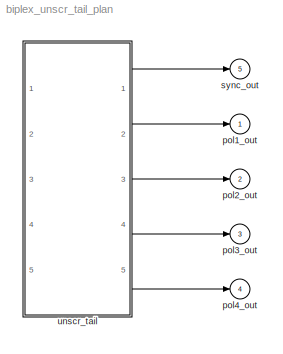
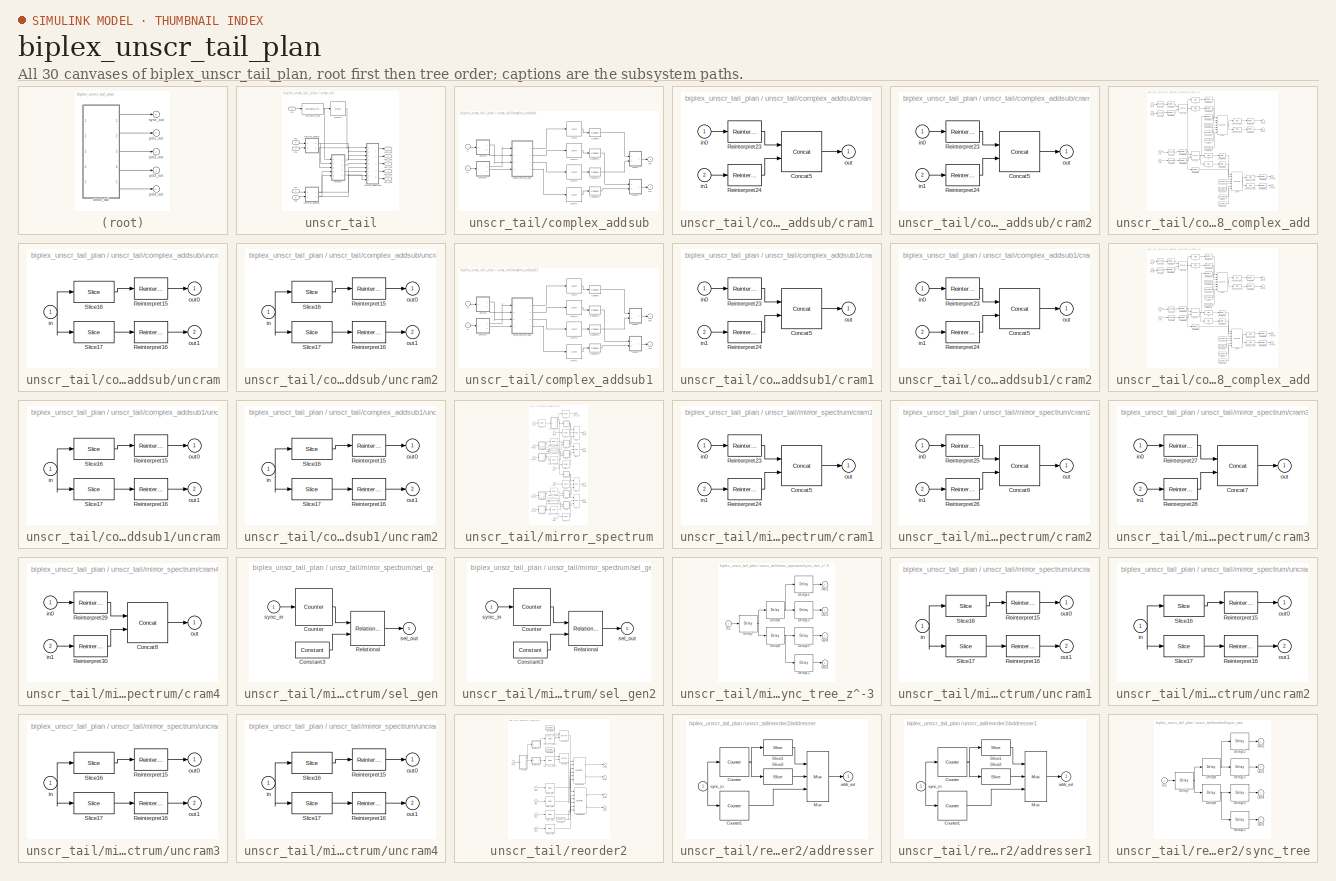
[diagram: thumbnail index - all 30 canvases of the model, root first then tree order]
MODEL biplex_unscr_tail_plan
KIND model
BLOCK [Outport] pol1_out
  IconDisplay = Port number
  SID = 336
BLOCK [Outport] pol2_out
  IconDisplay = Port number
  Port = 2
  SID = 337
BLOCK [Outport] pol3_out
  IconDisplay = Port number
  Port = 3
  SID = 338
BLOCK [Outport] pol4_out
  IconDisplay = Port number
  Port = 4
  SID = 339
BLOCK [Outport] sync_out
  IconDisplay = Port number
  Port = 5
  SID = 340
BLOCK [SubSystem] unscr_tail
  FunctionWithSeparateData = off
  MaskCallbackString = |||
  MaskEnableString = on,on,on,on
  MaskHideContents = off
  MaskIconFrame = on
  MaskIconOpaque = on
  MaskIconRotate = none
  MaskIconUnits = autoscale
  MaskPortRotate = default
  MaskPromptString = FFT Size|Input Bit Width|BRAM Latency|Reorder DIN Latency
  MaskStyleString = edit,edit,edit,edit
  MaskToolTipString = on,on,on,on
  MaskTunableValueString = on,on,on,on
  MaskValueString = 5|18|3|1
  MaskVariables = FFTSize=@1;input_bit_width=@2;bram_latency=@3;reorder_din_latency=@4;
  MaskVisibilityString = on,on,on,on
  MinAlgLoopOccurrences = off
  Opaque = off
  Ports = [5, 5]
  PropExecContextOutsideSubsystem = off
  RTWSystemCode = Auto
  RequestExecContextInheritance = off
  SID = 341
BLOCK [Reference] unscr_tail/Delay1  REF=xbsIndex_r4/Delay
  Ports = [1, 1]
  SID = 1
  SourceBlock = xbsIndex_r4/Delay
  SourceType = Xilinx Delay Block
  block_type = delay
  dbl_ovrd = off
  en = off
  has_advanced_control = 0
  infoedit = Hardware notes: A delay line is a chain, each link of which is an SRL16 followed by a flip-flop.
  latency = bram_latency + reorder_din_latency
  reg_retiming = off
  sg_icon_stat = 60,56,1,1,white,blue,0,d390c2d8,right,,[ ],[ ]
  sg_mask_display = fprintf('','COMMENT: begin icon graphics');\npatch([0 60 60 0 0 ],[0 0 56 56 0 ],[0.77 0.82 0.91 ]);\nplot([0 60 60 0 0 ],[0 0 56 56 0 ]);\npatch([12.2 23.76 31.76 39.76 47.76 31.76 20.2 12.2 ],[36.88 36.88 44.88 36.88 44.88 44.88 44.88 36.88 ],[1 1 1 ]);\npatch([20.2 31.76 23.76 12.2 20.2 ],[28.88 28.88 36.88 36.88 28.88 ],[0.931 0.946 0.973 ]);\npatch([12.2 23.76 31.76 20.2 12.2 ],[20.88 20.88 2...<+320ch>  <repeated x31 — deduplicated; at blocks: Delay1, Delay2, Delay3, Delay4, Delay5, Delay6, delay_uncram_0, delay_uncram_1, delay_uncram_2, delay_uncram_3, Delay10, Delay11, Delay12, Delay13, Delay7, Delay8, +7 more>
  sggui_pos = -1,-1,-1,-1
  xl_area = [0,0,0,0,0,0,0]
  xl_use_area = off
BLOCK [Inport] unscr_tail/In1
  IconDisplay = Port number
  SID = 342
BLOCK [Inport] unscr_tail/In2
  IconDisplay = Port number
  Port = 2
  SID = 343
BLOCK [Inport] unscr_tail/In3
  IconDisplay = Port number
  Port = 3
  SID = 344
BLOCK [Inport] unscr_tail/In4
  IconDisplay = Port number
  Port = 4
  SID = 351
BLOCK [Inport] unscr_tail/In5
  IconDisplay = Port number
  Port = 5
  SID = 352
BLOCK [SubSystem] unscr_tail/complex_addsub
  FunctionWithSeparateData = off
  MaskHideContents = off
  MinAlgLoopOccurrences = off
  Opaque = off
  Ports = [2, 2]
  PropExecContextOutsideSubsystem = off
  RTWSystemCode = Auto
  RequestExecContextInheritance = off
  SID = 2
BLOCK [Reference] unscr_tail/complex_addsub/Convert  REF=xbsIndex_r4/Convert
  Ports = [1, 1]
  SID = 5
  SourceBlock = xbsIndex_r4/Convert
  SourceType = Xilinx Type Converter Block
  arith_type = Signed  (2's comp)
  bin_pt = input_bit_width-1
  block_type = convert
  dbl_ovrd = off
  en = off
  has_advanced_control = 0
  infoedit = Hardware notes: rounding and saturating require hardware resources; truncating and wrapping do not.
  latency = 0
  n_bits = input_bit_width
  overflow = Wrap
  pipeline = off
  quantization = Truncate
  sg_icon_stat = 45,32,1,1,white,blue,0,edca21da,right,,[ ],[ ]
  sg_mask_display = fprintf('','COMMENT: begin icon graphics');\npatch([0 45 45 0 0 ],[0 0 32 32 0 ],[0.77 0.82 0.91 ]);\nplot([0 45 45 0 0 ],[0 0 32 32 0 ]);\npatch([13.1 18.88 22.88 26.88 30.88 22.88 17.1 13.1 ],[20.44 20.44 24.44 20.44 24.44 24.44 24.44 20.44 ],[1 1 1 ]);\npatch([17.1 22.88 18.88 13.1 17.1 ],[16.44 16.44 20.44 20.44 16.44 ],[0.931 0.946 0.973 ]);\npatch([13.1 18.88 22.88 17.1 13.1 ],[12.44 12.44 1...<+314ch>  <repeated x14 — deduplicated; at blocks: Convert, Convert1, Convert2, Convert3>
  sggui_pos = -1,-1,-1,-1
  xl_area = [0,0,0,0,0,0,0]
  xl_use_area = off
BLOCK [Reference] unscr_tail/complex_addsub/Convert1  REF=xbsIndex_r4/Convert
  Ports = [1, 1]
  SID = 408
  SourceBlock = xbsIndex_r4/Convert
  SourceType = Xilinx Type Converter Block
  arith_type = Signed  (2's comp)
  bin_pt = input_bit_width-1
  block_type = convert
  dbl_ovrd = off
  en = off
  has_advanced_control = 0
  infoedit = Hardware notes: rounding and saturating require hardware resources; truncating and wrapping do not.
  latency = 0
  n_bits = input_bit_width
  overflow = Wrap
  pipeline = off
  quantization = Truncate
  sg_icon_stat = 45,32,1,1,white,blue,0,edca21da,right,,[ ],[ ]
  sggui_pos = -1,-1,-1,-1
  xl_area = [0,0,0,0,0,0,0]
  xl_use_area = off
BLOCK [Reference] unscr_tail/complex_addsub/Convert2  REF=xbsIndex_r4/Convert
  Ports = [1, 1]
  SID = 409
  SourceBlock = xbsIndex_r4/Convert
  SourceType = Xilinx Type Converter Block
  arith_type = Signed  (2's comp)
  bin_pt = input_bit_width-1
  block_type = convert
  dbl_ovrd = off
  en = off
  has_advanced_control = 0
  infoedit = Hardware notes: rounding and saturating require hardware resources; truncating and wrapping do not.
  latency = 0
  n_bits = input_bit_width
  overflow = Wrap
  pipeline = off
  quantization = Truncate
  sg_icon_stat = 45,32,1,1,white,blue,0,edca21da,right,,[ ],[ ]
  sggui_pos = -1,-1,-1,-1
  xl_area = [0,0,0,0,0,0,0]
  xl_use_area = off
BLOCK [Reference] unscr_tail/complex_addsub/Convert3  REF=xbsIndex_r4/Convert
  Ports = [1, 1]
  SID = 410
  SourceBlock = xbsIndex_r4/Convert
  SourceType = Xilinx Type Converter Block
  arith_type = Signed  (2's comp)
  bin_pt = input_bit_width-1
  block_type = convert
  dbl_ovrd = off
  en = off
  has_advanced_control = 0
  infoedit = Hardware notes: rounding and saturating require hardware resources; truncating and wrapping do not.
  latency = 0
  n_bits = input_bit_width
  overflow = Wrap
  pipeline = off
  quantization = Truncate
  sg_icon_stat = 45,32,1,1,white,blue,0,edca21da,right,,[ ],[ ]
  sggui_pos = -1,-1,-1,-1
  xl_area = [0,0,0,0,0,0,0]
  xl_use_area = off
BLOCK [Reference] unscr_tail/complex_addsub/Shift  REF=xbsIndex_r4/Shift
  Ports = [1, 1]
  SID = 9
  SourceBlock = xbsIndex_r4/Shift
  SourceType = Xilinx Binary Shift Operator Block
  arith_type = Signed  (2's comp)
  bin_pt = 2
  block_type = shift
  dbl_ovrd = off
  en = off
  has_advanced_control = 0
  infoedit = Hardware notes: In hardware this block costs nothing if full output precision is used.
  latency = 0
  n_bits = 8
  overflow = Wrap
  precision = Full
  quantization = Truncate
  sg_icon_stat = 60,56,1,1,white,blue,0,77cd8d92,right,,[ ],[ ]
  sg_mask_display = fprintf('','COMMENT: begin icon graphics');\npatch([0 60 60 0 0 ],[0 0 56 56 0 ],[0.77 0.82 0.91 ]);\nplot([0 60 60 0 0 ],[0 0 56 56 0 ]);\npatch([12.2 23.76 31.76 39.76 47.76 31.76 20.2 12.2 ],[36.88 36.88 44.88 36.88 44.88 44.88 44.88 36.88 ],[1 1 1 ]);\npatch([20.2 31.76 23.76 12.2 20.2 ],[28.88 28.88 36.88 36.88 28.88 ],[0.931 0.946 0.973 ]);\npatch([12.2 23.76 31.76 20.2 12.2 ],[20.88 20.88 2...<+326ch>  <repeated x8 — deduplicated; at blocks: Shift, Shift1, Shift2, Shift3>
  sggui_pos = -1,-1,-1,-1
  shift_bits = 1
  shift_dir = Right
  xl_area = [0,0,0,0,0,0,0]
  xl_use_area = off
BLOCK [Reference] unscr_tail/complex_addsub/Shift1  REF=xbsIndex_r4/Shift
  Ports = [1, 1]
  SID = 10
  SourceBlock = xbsIndex_r4/Shift
  SourceType = Xilinx Binary Shift Operator Block
  arith_type = Signed  (2's comp)
  bin_pt = 2
  block_type = shift
  dbl_ovrd = off
  en = off
  has_advanced_control = 0
  infoedit = Hardware notes: In hardware this block costs nothing if full output precision is used.
  latency = 0
  n_bits = 8
  overflow = Wrap
  precision = Full
  quantization = Truncate
  sg_icon_stat = 60,56,1,1,white,blue,0,77cd8d92,right,,[ ],[ ]
  sggui_pos = -1,-1,-1,-1
  shift_bits = 1
  shift_dir = Right
  xl_area = [0,0,0,0,0,0,0]
  xl_use_area = off
BLOCK [Reference] unscr_tail/complex_addsub/Shift2  REF=xbsIndex_r4/Shift
  Ports = [1, 1]
  SID = 11
  SourceBlock = xbsIndex_r4/Shift
  SourceType = Xilinx Binary Shift Operator Block
  arith_type = Signed  (2's comp)
  bin_pt = 2
  block_type = shift
  dbl_ovrd = off
  en = off
  has_advanced_control = 0
  infoedit = Hardware notes: In hardware this block costs nothing if full output precision is used.
  latency = 0
  n_bits = 8
  overflow = Wrap
  precision = Full
  quantization = Truncate
  sg_icon_stat = 60,56,1,1,white,blue,0,77cd8d92,right,,[ ],[ ]
  sggui_pos = -1,-1,-1,-1
  shift_bits = 1
  shift_dir = Right
  xl_area = [0,0,0,0,0,0,0]
  xl_use_area = off
BLOCK [Reference] unscr_tail/complex_addsub/Shift3  REF=xbsIndex_r4/Shift
  Ports = [1, 1]
  SID = 12
  SourceBlock = xbsIndex_r4/Shift
  SourceType = Xilinx Binary Shift Operator Block
  arith_type = Signed  (2's comp)
  bin_pt = 2
  block_type = shift
  dbl_ovrd = off
  en = off
  has_advanced_control = 0
  infoedit = Hardware notes: In hardware this block costs nothing if full output precision is used.
  latency = 0
  n_bits = 8
  overflow = Wrap
  precision = Full
  quantization = Truncate
  sg_icon_stat = 60,56,1,1,white,blue,0,77cd8d92,right,,[ ],[ ]
  sggui_pos = -1,-1,-1,-1
  shift_bits = 1
  shift_dir = Right
  xl_area = [0,0,0,0,0,0,0]
  xl_use_area = off
BLOCK [Inport] unscr_tail/complex_addsub/a
  IconDisplay = Port number
  SID = 3
BLOCK [Outport] unscr_tail/complex_addsub/a+b
  IconDisplay = Port number
  SID = 78
BLOCK [Outport] unscr_tail/complex_addsub/a-b
  IconDisplay = Port number
  Port = 2
  SID = 79
BLOCK [Inport] unscr_tail/complex_addsub/b
  IconDisplay = Port number
  Port = 2
  SID = 4
BLOCK [SubSystem] unscr_tail/complex_addsub/cram1
  FunctionWithSeparateData = off
  MaskHideContents = off
  MinAlgLoopOccurrences = off
  Opaque = off
  Ports = [2, 1]
  PropExecContextOutsideSubsystem = off
  RTWSystemCode = Auto
  RequestExecContextInheritance = off
  SID = 394
BLOCK [Reference] unscr_tail/complex_addsub/cram1/Concat5  REF=xbsIndex_r4/Concat
  Ports = [2, 1]
  SID = 397
  SourceBlock = xbsIndex_r4/Concat
  SourceType = Xilinx Bus Concatenator Block
  block_type = concat
  dbl_ovrd = off
  has_advanced_control = 0
  infoedit = Concatenates two or more inputs.  Output will be cast to an unsigned value with the binary point at zero.
  num_inputs = 2
  sg_icon_stat = 60,60,2,1,white,blue,0,16398980,right,,[ ],[ ]
  sg_mask_display = fprintf('','COMMENT: begin icon graphics');\npatch([0 60 60 0 0 ],[0 0 60 60 0 ],[0.77 0.82 0.91 ]);\nplot([0 60 60 0 0 ],[0 0 60 60 0 ]);\npatch([12.2 23.76 31.76 39.76 47.76 31.76 20.2 12.2 ],[38.88 38.88 46.88 38.88 46.88 46.88 46.88 38.88 ],[1 1 1 ]);\npatch([20.2 31.76 23.76 12.2 20.2 ],[30.88 30.88 38.88 38.88 30.88 ],[0.931 0.946 0.973 ]);\npatch([12.2 23.76 31.76 20.2 12.2 ],[22.88 22.88 3...<+417ch>  <repeated x14 — deduplicated; at blocks: Concat5, Concat, Concat1, Concat6, Concat7, Concat8, Concat2, Concat3>
  sggui_pos = -1,-1,-1,-1
BLOCK [Reference] unscr_tail/complex_addsub/cram1/Reinterpret23  REF=xbsIndex_r4/Reinterpret
  Ports = [1, 1]
  SID = 398
  SourceBlock = xbsIndex_r4/Reinterpret
  SourceType = Xilinx Type Reinterpreter Block
  arith_type = Unsigned
  bin_pt = 0
  block_type = reinterpret
  force_arith_type = on
  force_bin_pt = on
  has_advanced_control = 0
  infoedit = Changes signal type without altering the binary representation.   You can changed the signal between signed and unsigned, and relocate the binary point.<br><br>Hardware notes: In hardware this block costs nothing.<br><br>Example:  Suppose the input is 6 bits wide, signed, with 2 fractional bits, and the output is forced to unsigned with 0 fractional bits.  Then an input of -2.0 (1110.00 in binary ...<+59ch>  <repeated x60 — deduplicated; at blocks: Reinterpret23, Reinterpret24, Reinterpret1, Reinterpret10, Reinterpret12, Reinterpret15, Reinterpret16, Reinterpret2, Reinterpret25, Reinterpret3, Reinterpret4, Reinterpret5, Reinterpret6, Reinterpret7, Reinterpret8, Reinterpret26, +4 more>
  sg_icon_stat = 50,32,1,1,white,blue,0,6b04d0b0,right,,[ ],[ ]
  sg_mask_display = fprintf('','COMMENT: begin icon graphics');\npatch([0 50 50 0 0 ],[0 0 32 32 0 ],[0.77 0.82 0.91 ]);\nplot([0 50 50 0 0 ],[0 0 32 32 0 ]);\npatch([16.1 21.88 25.88 29.88 33.88 25.88 20.1 16.1 ],[20.44 20.44 24.44 20.44 24.44 24.44 24.44 20.44 ],[1 1 1 ]);\npatch([20.1 25.88 21.88 16.1 20.1 ],[16.44 16.44 20.44 20.44 16.44 ],[0.931 0.946 0.973 ]);\npatch([16.1 21.88 25.88 20.1 16.1 ],[12.44 12.44 1...<+306ch>  <repeated x56 — deduplicated; at blocks: Reinterpret23, Reinterpret24, Reinterpret1, Reinterpret10, Reinterpret12, Reinterpret15, Reinterpret16, Reinterpret2, Reinterpret3, Reinterpret4, Reinterpret5, Reinterpret6, Reinterpret7, Reinterpret8, Reinterpret25, Reinterpret26, +4 more>
  sggui_pos = -1,-1,-1,-1
BLOCK [Reference] unscr_tail/complex_addsub/cram1/Reinterpret24  REF=xbsIndex_r4/Reinterpret
  Ports = [1, 1]
  SID = 399
  SourceBlock = xbsIndex_r4/Reinterpret
  SourceType = Xilinx Type Reinterpreter Block
  arith_type = Unsigned
  bin_pt = 0
  block_type = reinterpret
  force_arith_type = on
  force_bin_pt = on
  has_advanced_control = 0
  sg_icon_stat = 50,32,1,1,white,blue,0,6b04d0b0,right,,[ ],[ ]
  sggui_pos = -1,-1,-1,-1
BLOCK [Inport] unscr_tail/complex_addsub/cram1/in0
  IconDisplay = Port number
  SID = 395
BLOCK [Inport] unscr_tail/complex_addsub/cram1/in1
  IconDisplay = Port number
  Port = 2
  SID = 396
BLOCK [Outport] unscr_tail/complex_addsub/cram1/out
  IconDisplay = Port number
  SID = 400
BLOCK [SubSystem] unscr_tail/complex_addsub/cram2
  FunctionWithSeparateData = off
  MaskHideContents = off
  MinAlgLoopOccurrences = off
  Opaque = off
  Ports = [2, 1]
  PropExecContextOutsideSubsystem = off
  RTWSystemCode = Auto
  RequestExecContextInheritance = off
  SID = 401
BLOCK [Reference] unscr_tail/complex_addsub/cram2/Concat5  REF=xbsIndex_r4/Concat
  Ports = [2, 1]
  SID = 404
  SourceBlock = xbsIndex_r4/Concat
  SourceType = Xilinx Bus Concatenator Block
  block_type = concat
  dbl_ovrd = off
  has_advanced_control = 0
  infoedit = Concatenates two or more inputs.  Output will be cast to an unsigned value with the binary point at zero.
  num_inputs = 2
  sg_icon_stat = 60,60,2,1,white,blue,0,16398980,right,,[ ],[ ]
  sggui_pos = -1,-1,-1,-1
BLOCK [Reference] unscr_tail/complex_addsub/cram2/Reinterpret23  REF=xbsIndex_r4/Reinterpret
  Ports = [1, 1]
  SID = 405
  SourceBlock = xbsIndex_r4/Reinterpret
  SourceType = Xilinx Type Reinterpreter Block
  arith_type = Unsigned
  bin_pt = 0
  block_type = reinterpret
  force_arith_type = on
  force_bin_pt = on
  has_advanced_control = 0
  sg_icon_stat = 50,32,1,1,white,blue,0,6b04d0b0,right,,[ ],[ ]
  sggui_pos = -1,-1,-1,-1
BLOCK [Reference] unscr_tail/complex_addsub/cram2/Reinterpret24  REF=xbsIndex_r4/Reinterpret
  Ports = [1, 1]
  SID = 406
  SourceBlock = xbsIndex_r4/Reinterpret
  SourceType = Xilinx Type Reinterpreter Block
  arith_type = Unsigned
  bin_pt = 0
  block_type = reinterpret
  force_arith_type = on
  force_bin_pt = on
  has_advanced_control = 0
  sg_icon_stat = 50,32,1,1,white,blue,0,6b04d0b0,right,,[ ],[ ]
  sggui_pos = -1,-1,-1,-1
BLOCK [Inport] unscr_tail/complex_addsub/cram2/in0
  IconDisplay = Port number
  SID = 402
BLOCK [Inport] unscr_tail/complex_addsub/cram2/in1
  IconDisplay = Port number
  Port = 2
  SID = 403
BLOCK [Outport] unscr_tail/complex_addsub/cram2/out
  IconDisplay = Port number
  SID = 407
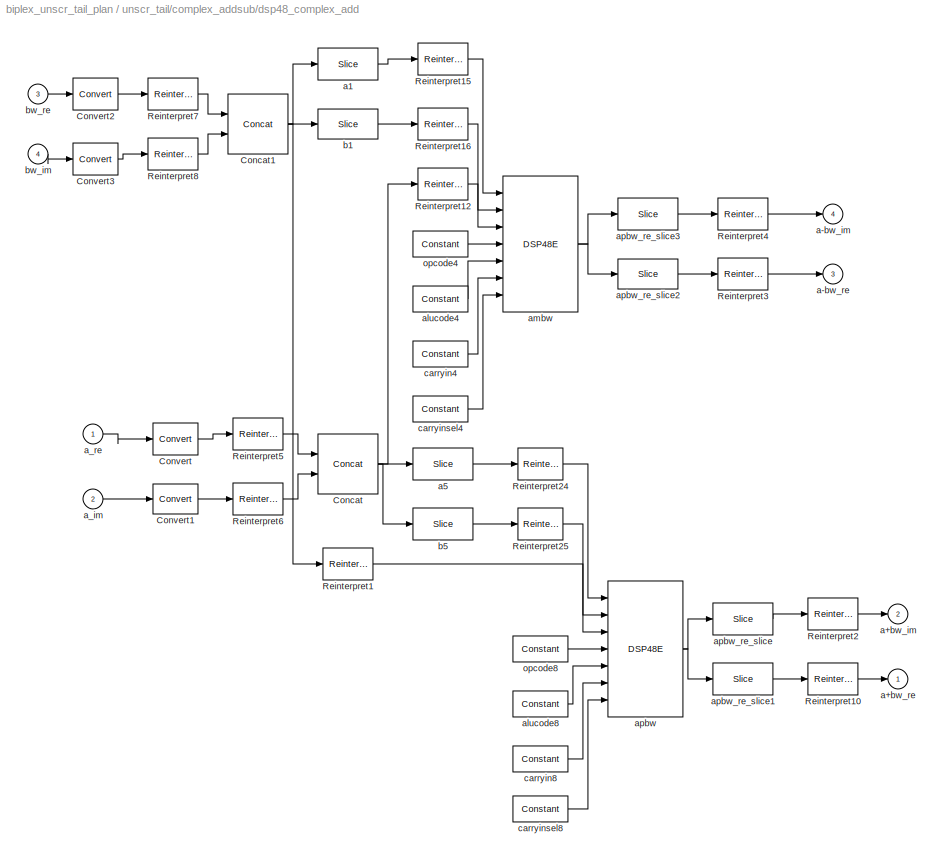
BLOCK [SubSystem] unscr_tail/complex_addsub/dsp48_complex_add
  FunctionWithSeparateData = off
  MaskHideContents = off
  MinAlgLoopOccurrences = off
  Opaque = off
  Ports = [4, 4]
  PropExecContextOutsideSubsystem = off
  RTWSystemCode = Auto
  RequestExecContextInheritance = off
  SID = 13
BLOCK [Reference] unscr_tail/complex_addsub/dsp48_complex_add/Concat  REF=xbsIndex_r4/Concat
  Ports = [2, 1]
  SID = 18
  SourceBlock = xbsIndex_r4/Concat
  SourceType = Xilinx Bus Concatenator Block
  block_type = concat
  dbl_ovrd = off
  has_advanced_control = 0
  infoedit = Concatenates two or more inputs.  Output will be cast to an unsigned value with the binary point at zero.
  num_inputs = 2
  sg_icon_stat = 60,60,2,1,white,blue,0,16398980,right,,[ ],[ ]
  sggui_pos = -1,-1,-1,-1
BLOCK [Reference] unscr_tail/complex_addsub/dsp48_complex_add/Concat1  REF=xbsIndex_r4/Concat
  Ports = [2, 1]
  SID = 19
  SourceBlock = xbsIndex_r4/Concat
  SourceType = Xilinx Bus Concatenator Block
  block_type = concat
  dbl_ovrd = off
  has_advanced_control = 0
  infoedit = Concatenates two or more inputs.  Output will be cast to an unsigned value with the binary point at zero.
  num_inputs = 2
  sg_icon_stat = 60,60,2,1,white,blue,0,16398980,right,,[ ],[ ]
  sggui_pos = -1,-1,-1,-1
BLOCK [Reference] unscr_tail/complex_addsub/dsp48_complex_add/Convert  REF=xbsIndex_r4/Convert
  Ports = [1, 1]
  SID = 20
  SourceBlock = xbsIndex_r4/Convert
  SourceType = Xilinx Type Converter Block
  arith_type = Signed  (2's comp)
  bin_pt = 22
  block_type = convert
  dbl_ovrd = off
  en = off
  has_advanced_control = 0
  infoedit = Hardware notes: rounding and saturating require hardware resources; truncating and wrapping do not.
  latency = 0
  n_bits = 24
  overflow = Wrap
  pipeline = off
  quantization = Truncate
  sg_icon_stat = 45,32,1,1,white,blue,0,edca21da,right,,[ ],[ ]
  sggui_pos = -1,-1,-1,-1
  xl_area = [0,0,0,0,0,0,0]
  xl_use_area = off
BLOCK [Reference] unscr_tail/complex_addsub/dsp48_complex_add/Convert1  REF=xbsIndex_r4/Convert
  Ports = [1, 1]
  SID = 21
  SourceBlock = xbsIndex_r4/Convert
  SourceType = Xilinx Type Converter Block
  arith_type = Signed  (2's comp)
  bin_pt = 22
  block_type = convert
  dbl_ovrd = off
  en = off
  has_advanced_control = 0
  infoedit = Hardware notes: rounding and saturating require hardware resources; truncating and wrapping do not.
  latency = 0
  n_bits = 24
  overflow = Wrap
  pipeline = off
  quantization = Truncate
  sg_icon_stat = 45,30,1,1,white,blue,0,edca21da,right,,[ ],[ ]
  sg_mask_display = fprintf('','COMMENT: begin icon graphics');\npatch([0 45 45 0 0 ],[0 0 30 30 0 ],[0.77 0.82 0.91 ]);\nplot([0 45 45 0 0 ],[0 0 30 30 0 ]);\npatch([13.1 18.88 22.88 26.88 30.88 22.88 17.1 13.1 ],[19.44 19.44 23.44 19.44 23.44 23.44 23.44 19.44 ],[1 1 1 ]);\npatch([17.1 22.88 18.88 13.1 17.1 ],[15.44 15.44 19.44 19.44 15.44 ],[0.931 0.946 0.973 ]);\npatch([13.1 18.88 22.88 17.1 13.1 ],[11.44 11.44 1...<+314ch>
  sggui_pos = -1,-1,-1,-1
  xl_area = [0,0,0,0,0,0,0]
  xl_use_area = off
BLOCK [Reference] unscr_tail/complex_addsub/dsp48_complex_add/Convert2  REF=xbsIndex_r4/Convert
  Ports = [1, 1]
  SID = 22
  SourceBlock = xbsIndex_r4/Convert
  SourceType = Xilinx Type Converter Block
  arith_type = Signed  (2's comp)
  bin_pt = 22
  block_type = convert
  dbl_ovrd = off
  en = off
  has_advanced_control = 0
  infoedit = Hardware notes: rounding and saturating require hardware resources; truncating and wrapping do not.
  latency = 0
  n_bits = 24
  overflow = Wrap
  pipeline = off
  quantization = Truncate
  sg_icon_stat = 45,32,1,1,white,blue,0,edca21da,right,,[ ],[ ]
  sggui_pos = -1,-1,-1,-1
  xl_area = [0,0,0,0,0,0,0]
  xl_use_area = off
BLOCK [Reference] unscr_tail/complex_addsub/dsp48_complex_add/Convert3  REF=xbsIndex_r4/Convert
  Ports = [1, 1]
  SID = 23
  SourceBlock = xbsIndex_r4/Convert
  SourceType = Xilinx Type Converter Block
  arith_type = Signed  (2's comp)
  bin_pt = 22
  block_type = convert
  dbl_ovrd = off
  en = off
  has_advanced_control = 0
  infoedit = Hardware notes: rounding and saturating require hardware resources; truncating and wrapping do not.
  latency = 0
  n_bits = 24
  overflow = Wrap
  pipeline = off
  quantization = Truncate
  sg_icon_stat = 45,32,1,1,white,blue,0,edca21da,right,,[ ],[ ]
  sggui_pos = -1,-1,-1,-1
  xl_area = [0,0,0,0,0,0,0]
  xl_use_area = off
BLOCK [Reference] unscr_tail/complex_addsub/dsp48_complex_add/Reinterpret1  REF=xbsIndex_r4/Reinterpret
  Ports = [1, 1]
  SID = 24
  SourceBlock = xbsIndex_r4/Reinterpret
  SourceType = Xilinx Type Reinterpreter Block
  arith_type = Signed  (2's comp)
  bin_pt = 0
  block_type = reinterpret
  force_arith_type = on
  force_bin_pt = off
  has_advanced_control = 0
  sg_icon_stat = 50,32,1,1,white,blue,0,6b04d0b0,right,,[ ],[ ]
  sggui_pos = -1,-1,-1,-1
BLOCK [Reference] unscr_tail/complex_addsub/dsp48_complex_add/Reinterpret10  REF=xbsIndex_r4/Reinterpret
  Ports = [1, 1]
  SID = 25
  SourceBlock = xbsIndex_r4/Reinterpret
  SourceType = Xilinx Type Reinterpreter Block
  arith_type = Signed  (2's comp)
  bin_pt = 22
  block_type = reinterpret
  force_arith_type = on
  force_bin_pt = on
  has_advanced_control = 0
  sg_icon_stat = 50,32,1,1,white,blue,0,6b04d0b0,right,,[ ],[ ]
  sggui_pos = -1,-1,-1,-1
BLOCK [Reference] unscr_tail/complex_addsub/dsp48_complex_add/Reinterpret12  REF=xbsIndex_r4/Reinterpret
  Ports = [1, 1]
  SID = 26
  SourceBlock = xbsIndex_r4/Reinterpret
  SourceType = Xilinx Type Reinterpreter Block
  arith_type = Signed  (2's comp)
  bin_pt = 0
  block_type = reinterpret
  force_arith_type = on
  force_bin_pt = off
  has_advanced_control = 0
  sg_icon_stat = 50,32,1,1,white,blue,0,6b04d0b0,right,,[ ],[ ]
  sggui_pos = -1,-1,-1,-1
BLOCK [Reference] unscr_tail/complex_addsub/dsp48_complex_add/Reinterpret15  REF=xbsIndex_r4/Reinterpret
  Ports = [1, 1]
  SID = 27
  SourceBlock = xbsIndex_r4/Reinterpret
  SourceType = Xilinx Type Reinterpreter Block
  arith_type = Signed  (2's comp)
  bin_pt = 0
  block_type = reinterpret
  force_arith_type = on
  force_bin_pt = off
  has_advanced_control = 0
  sg_icon_stat = 50,32,1,1,white,blue,0,6b04d0b0,right,,[ ],[ ]
  sggui_pos = -1,-1,-1,-1
BLOCK [Reference] unscr_tail/complex_addsub/dsp48_complex_add/Reinterpret16  REF=xbsIndex_r4/Reinterpret
  Ports = [1, 1]
  SID = 28
  SourceBlock = xbsIndex_r4/Reinterpret
  SourceType = Xilinx Type Reinterpreter Block
  arith_type = Signed  (2's comp)
  bin_pt = 0
  block_type = reinterpret
  force_arith_type = on
  force_bin_pt = off
  has_advanced_control = 0
  sg_icon_stat = 50,32,1,1,white,blue,0,6b04d0b0,right,,[ ],[ ]
  sggui_pos = -1,-1,-1,-1
BLOCK [Reference] unscr_tail/complex_addsub/dsp48_complex_add/Reinterpret2  REF=xbsIndex_r4/Reinterpret
  Ports = [1, 1]
  SID = 29
  SourceBlock = xbsIndex_r4/Reinterpret
  SourceType = Xilinx Type Reinterpreter Block
  arith_type = Signed  (2's comp)
  bin_pt = 22
  block_type = reinterpret
  force_arith_type = on
  force_bin_pt = on
  has_advanced_control = 0
  sg_icon_stat = 50,32,1,1,white,blue,0,6b04d0b0,right,,[ ],[ ]
  sggui_pos = -1,-1,-1,-1
BLOCK [Reference] unscr_tail/complex_addsub/dsp48_complex_add/Reinterpret24  REF=xbsIndex_r4/Reinterpret
  Ports = [1, 1]
  SID = 30
  SourceBlock = xbsIndex_r4/Reinterpret
  SourceType = Xilinx Type Reinterpreter Block
  arith_type = Signed  (2's comp)
  bin_pt = 0
  block_type = reinterpret
  force_arith_type = on
  force_bin_pt = off
  has_advanced_control = 0
  sg_icon_stat = 45,32,1,1,white,blue,0,6b04d0b0,right,,[ ],[ ]
  sg_mask_display = fprintf('','COMMENT: begin icon graphics');\npatch([0 45 45 0 0 ],[0 0 32 32 0 ],[0.77 0.82 0.91 ]);\nplot([0 45 45 0 0 ],[0 0 32 32 0 ]);\npatch([13.1 18.88 22.88 26.88 30.88 22.88 17.1 13.1 ],[20.44 20.44 24.44 20.44 24.44 24.44 24.44 20.44 ],[1 1 1 ]);\npatch([17.1 22.88 18.88 13.1 17.1 ],[16.44 16.44 20.44 20.44 16.44 ],[0.931 0.946 0.973 ]);\npatch([13.1 18.88 22.88 17.1 13.1 ],[12.44 12.44 1...<+306ch>  <repeated x4 — deduplicated; at blocks: Reinterpret24, Reinterpret25>
  sggui_pos = -1,-1,-1,-1
BLOCK [Reference] unscr_tail/complex_addsub/dsp48_complex_add/Reinterpret25  REF=xbsIndex_r4/Reinterpret
  Ports = [1, 1]
  SID = 31
  SourceBlock = xbsIndex_r4/Reinterpret
  SourceType = Xilinx Type Reinterpreter Block
  arith_type = Signed  (2's comp)
  bin_pt = 0
  block_type = reinterpret
  force_arith_type = on
  force_bin_pt = off
  has_advanced_control = 0
  sg_icon_stat = 45,32,1,1,white,blue,0,6b04d0b0,right,,[ ],[ ]
  sggui_pos = -1,-1,-1,-1
BLOCK [Reference] unscr_tail/complex_addsub/dsp48_complex_add/Reinterpret3  REF=xbsIndex_r4/Reinterpret
  Ports = [1, 1]
  SID = 32
  SourceBlock = xbsIndex_r4/Reinterpret
  SourceType = Xilinx Type Reinterpreter Block
  arith_type = Signed  (2's comp)
  bin_pt = 22
  block_type = reinterpret
  force_arith_type = on
  force_bin_pt = on
  has_advanced_control = 0
  sg_icon_stat = 50,32,1,1,white,blue,0,6b04d0b0,right,,[ ],[ ]
  sggui_pos = -1,-1,-1,-1
BLOCK [Reference] unscr_tail/complex_addsub/dsp48_complex_add/Reinterpret4  REF=xbsIndex_r4/Reinterpret
  Ports = [1, 1]
  SID = 33
  SourceBlock = xbsIndex_r4/Reinterpret
  SourceType = Xilinx Type Reinterpreter Block
  arith_type = Signed  (2's comp)
  bin_pt = 22
  block_type = reinterpret
  force_arith_type = on
  force_bin_pt = on
  has_advanced_control = 0
  sg_icon_stat = 50,32,1,1,white,blue,0,6b04d0b0,right,,[ ],[ ]
  sggui_pos = -1,-1,-1,-1
BLOCK [Reference] unscr_tail/complex_addsub/dsp48_complex_add/Reinterpret5  REF=xbsIndex_r4/Reinterpret
  Ports = [1, 1]
  SID = 34
  SourceBlock = xbsIndex_r4/Reinterpret
  SourceType = Xilinx Type Reinterpreter Block
  arith_type = Unsigned
  bin_pt = 0
  block_type = reinterpret
  force_arith_type = on
  force_bin_pt = on
  has_advanced_control = 0
  sg_icon_stat = 50,32,1,1,white,blue,0,6b04d0b0,right,,[ ],[ ]
  sggui_pos = -1,-1,-1,-1
BLOCK [Reference] unscr_tail/complex_addsub/dsp48_complex_add/Reinterpret6  REF=xbsIndex_r4/Reinterpret
  Ports = [1, 1]
  SID = 35
  SourceBlock = xbsIndex_r4/Reinterpret
  SourceType = Xilinx Type Reinterpreter Block
  arith_type = Unsigned
  bin_pt = 0
  block_type = reinterpret
  force_arith_type = on
  force_bin_pt = on
  has_advanced_control = 0
  sg_icon_stat = 50,32,1,1,white,blue,0,6b04d0b0,right,,[ ],[ ]
  sggui_pos = -1,-1,-1,-1
BLOCK [Reference] unscr_tail/complex_addsub/dsp48_complex_add/Reinterpret7  REF=xbsIndex_r4/Reinterpret
  Ports = [1, 1]
  SID = 36
  SourceBlock = xbsIndex_r4/Reinterpret
  SourceType = Xilinx Type Reinterpreter Block
  arith_type = Unsigned
  bin_pt = 0
  block_type = reinterpret
  force_arith_type = on
  force_bin_pt = on
  has_advanced_control = 0
  sg_icon_stat = 50,32,1,1,white,blue,0,6b04d0b0,right,,[ ],[ ]
  sggui_pos = -1,-1,-1,-1
BLOCK [Reference] unscr_tail/complex_addsub/dsp48_complex_add/Reinterpret8  REF=xbsIndex_r4/Reinterpret
  Ports = [1, 1]
  SID = 37
  SourceBlock = xbsIndex_r4/Reinterpret
  SourceType = Xilinx Type Reinterpreter Block
  arith_type = Unsigned
  bin_pt = 0
  block_type = reinterpret
  force_arith_type = on
  force_bin_pt = on
  has_advanced_control = 0
  sg_icon_stat = 50,32,1,1,white,blue,0,6b04d0b0,right,,[ ],[ ]
  sggui_pos = -1,-1,-1,-1
BLOCK [Outport] unscr_tail/complex_addsub/dsp48_complex_add/a+bw_im
  IconDisplay = Port number
  Port = 2
  SID = 57
BLOCK [Outport] unscr_tail/complex_addsub/dsp48_complex_add/a+bw_re
  IconDisplay = Port number
  SID = 56
BLOCK [Outport] unscr_tail/complex_addsub/dsp48_complex_add/a-bw_im
  IconDisplay = Port number
  Port = 4
  SID = 59
BLOCK [Outport] unscr_tail/complex_addsub/dsp48_complex_add/a-bw_re
  IconDisplay = Port number
  Port = 3
  SID = 58
BLOCK [Reference] unscr_tail/complex_addsub/dsp48_complex_add/a1  REF=xbsIndex_r4/Slice
  Ports = [1, 1]
  SID = 38
  SourceBlock = xbsIndex_r4/Slice
  SourceType = Xilinx Bit Slice Extractor Block
  base0 = LSB of Input
  base1 = MSB of Input
  bit0 = 18
  bit1 = 0
  block_type = slice
  boolean_output = off
  dbl_ovrd = off
  has_advanced_control = 0
  infoedit = Extracts a given range of bits from each input sample and presents it at the output.  The output type is ordinarily unsigned with binary point at zero, but can be Boolean when the slice is one bit wide.<br><br>Hardware notes: In hardware this block costs nothing.  <repeated x36 — deduplicated; at blocks: a1, a5, apbw_re_slice, apbw_re_slice1, apbw_re_slice2, apbw_re_slice3, b1, b5, Slice16, Slice17, Slice1, Slice2>
  mode = Upper Bit Location + Width
  nbits = 30
  sg_icon_stat = 60,32,1,1,white,blue,0,1fd851a7,right,,[ ],[ ]
  sg_mask_display = fprintf('','COMMENT: begin icon graphics');\npatch([0 60 60 0 0 ],[0 0 32 32 0 ],[0.77 0.82 0.91 ]);\nplot([0 60 60 0 0 ],[0 0 32 32 0 ]);\npatch([21.1 26.88 30.88 34.88 38.88 30.88 25.1 21.1 ],[20.44 20.44 24.44 20.44 24.44 24.44 24.44 20.44 ],[1 1 1 ]);\npatch([25.1 30.88 26.88 21.1 25.1 ],[16.44 16.44 20.44 20.44 16.44 ],[0.931 0.946 0.973 ]);\npatch([21.1 26.88 30.88 25.1 21.1 ],[12.44 12.44 1...<+315ch>  <repeated x32 — deduplicated; at blocks: a1, a5, apbw_re_slice, apbw_re_slice1, apbw_re_slice3, b5, Slice16, Slice17, Slice1, Slice2>
  sggui_pos = -1,-1,-1,-1
BLOCK [Reference] unscr_tail/complex_addsub/dsp48_complex_add/a5  REF=xbsIndex_r4/Slice
  Ports = [1, 1]
  SID = 39
  SourceBlock = xbsIndex_r4/Slice
  SourceType = Xilinx Bit Slice Extractor Block
  base0 = LSB of Input
  base1 = MSB of Input
  bit0 = 18
  bit1 = 0
  block_type = slice
  boolean_output = off
  dbl_ovrd = off
  has_advanced_control = 0
  mode = Upper Bit Location + Width
  nbits = 30
  sg_icon_stat = 60,32,1,1,white,blue,0,1fd851a7,right,,[ ],[ ]
  sggui_pos = -1,-1,-1,-1
BLOCK [Inport] unscr_tail/complex_addsub/dsp48_complex_add/a_im
  IconDisplay = Port number
  Port = 2
  SID = 15
BLOCK [Inport] unscr_tail/complex_addsub/dsp48_complex_add/a_re
  IconDisplay = Port number
  SID = 14
BLOCK [Reference] unscr_tail/complex_addsub/dsp48_complex_add/alucode4  REF=xbsIndex_r4/Constant
  Ports = [0, 1]
  SID = 40
  SourceBlock = xbsIndex_r4/Constant
  SourceType = Xilinx Constant Block Block
  arith_type = Unsigned
  bin_pt = 0
  block_type = constant
  carry = CIN
  const = 3
  dbl_ovrd = off
  dsp48_infoedit = The use of this block for DSP48 instructions is deprecated.  Please use the Opmode block.
  equ = P=C
  explicit_period = on
  has_advanced_control = 0
  inp1 = P
  inp2 = PCIN>>17
  n_bits = 4
  opr = +
  opselect = C
  period = 1
  sg_icon_stat = 55,26,0,1,white,blue,0,279a71c8,right,,[ ],[ ]
  sg_mask_display = fprintf('','COMMENT: begin icon graphics');\npatch([0 55 55 0 0 ],[0 0 26 26 0 ],[0.77 0.82 0.91 ]);\nplot([0 55 55 0 0 ],[0 0 26 26 0 ]);\npatch([20.325 24.66 27.66 30.66 33.66 27.66 23.325 20.325 ],[16.33 16.33 19.33 16.33 19.33 19.33 19.33 16.33 ],[1 1 1 ]);\npatch([23.325 27.66 24.66 20.325 23.325 ],[13.33 13.33 16.33 16.33 13.33 ],[0.931 0.946 0.973 ]);\npatch([20.325 24.66 27.66 23.325 20.32...<+333ch>  <repeated x15 — deduplicated; at blocks: alucode4, alucode8, carryin4, carryin8, carryinsel4, carryinsel8, Constant1, Constant5, Constant7>
  sggui_pos = -1,-1,-1,-1
BLOCK [Reference] unscr_tail/complex_addsub/dsp48_complex_add/alucode8  REF=xbsIndex_r4/Constant
  Ports = [0, 1]
  SID = 41
  SourceBlock = xbsIndex_r4/Constant
  SourceType = Xilinx Constant Block Block
  arith_type = Unsigned
  bin_pt = 0
  block_type = constant
  carry = CIN
  const = 0
  dbl_ovrd = off
  dsp48_infoedit = The use of this block for DSP48 instructions is deprecated.  Please use the Opmode block.
  equ = P=C
  explicit_period = on
  has_advanced_control = 0
  inp1 = P
  inp2 = PCIN>>17
  n_bits = 4
  opr = +
  opselect = C
  period = 1
  sg_icon_stat = 55,26,0,1,white,blue,0,bf4ddd8b,right,,[ ],[ ]
  sggui_pos = -1,-1,-1,-1
BLOCK [Reference] unscr_tail/complex_addsub/dsp48_complex_add/ambw  REF=xbsIndex_r4/DSP48E
  Ports = [7, 1]
  SID = 42
  SourceBlock = xbsIndex_r4/DSP48E
  SourceType = Xilinx DSP48E Block
  addsub_mode = TWO24
  block_type = dsp48e
  en_a1 = off
  en_a2 = off
  en_all = off
  en_alumode = off
  en_b1 = off
  en_b2 = off
  en_c = off
  en_carry_in = off
  en_ctrl = off
  en_mult = off
  en_multcarryin = off
  en_p = off
  has_advanced_control = 0
  mask_from_creg = off
  pattern = '000000000000'
  pattern_from_creg = off
  pattern_mask = '3FFFFFFFFFFF'
  pipeline_a = 1
  pipeline_acout = 1
  pipeline_alumode = on
  pipeline_b = 1
  pipeline_bcout = 1
  pipeline_c = on
  pipeline_carryin = on
  pipeline_carryinsel = on
  pipeline_mult = on
  pipeline_opmode = on
  pipeline_p = on
  reset_preg = off
  rst_a = off
  rst_all = off
  rst_alumode = off
  rst_b = off
  rst_c = off
  rst_carry_in = off
  rst_ctrl = off
  rst_mult = off
  rst_p = off
  sel_rounding_mask = Select mask
  sg_icon_stat = 75,136,7,1,white,blue,0,51584ea8,right,,[ ],[ ]
  sg_mask_display = fprintf('','COMMENT: begin icon graphics');\npatch([0 75 75 0 0 ],[0 0 136 136 0 ],[0.77 0.82 0.91 ]);\nplot([0 75 75 0 0 ],[0 0 136 136 0 ]);\npatch([14.75 29.2 39.2 49.2 59.2 39.2 24.75 14.75 ],[79.1 79.1 89.1 79.1 89.1 89.1 89.1 79.1 ],[1 1 1 ]);\npatch([24.75 39.2 29.2 14.75 24.75 ],[69.1 69.1 79.1 79.1 69.1 ],[0.931 0.946 0.973 ]);\npatch([14.75 29.2 39.2 24.75 14.75 ],[59.1 59.1 69.1 69.1 59...<+618ch>  <repeated x4 — deduplicated; at blocks: ambw, apbw>
  sggui_pos = -1,-1,-1,-1
  use_a = Direct from A Port
  use_acout = off
  use_b = Direct from B Port
  use_bcout = off
  use_carrycascin = off
  use_carrycascout = off
  use_carryout = off
  use_creg = on
  use_multsignin = off
  use_multsignout = off
  use_op = off
  use_overflow = off
  use_patternbdetect = off
  use_patterndetect = off
  use_pcin = off
  use_pcout = off
  use_synth_model = off
  use_underflow = off
  xl_area = [0,0,0,0,0,0,0]
  xl_use_area = off
  xl_useadderonly = off
BLOCK [Reference] unscr_tail/complex_addsub/dsp48_complex_add/apbw  REF=xbsIndex_r4/DSP48E
  Ports = [7, 1]
  SID = 43
  SourceBlock = xbsIndex_r4/DSP48E
  SourceType = Xilinx DSP48E Block
  addsub_mode = TWO24
  block_type = dsp48e
  en_a1 = off
  en_a2 = off
  en_all = off
  en_alumode = off
  en_b1 = off
  en_b2 = off
  en_c = off
  en_carry_in = off
  en_ctrl = off
  en_mult = off
  en_multcarryin = off
  en_p = off
  has_advanced_control = 0
  mask_from_creg = off
  pattern = '000000000000'
  pattern_from_creg = off
  pattern_mask = '3FFFFFFFFFFF'
  pipeline_a = 1
  pipeline_acout = 1
  pipeline_alumode = on
  pipeline_b = 1
  pipeline_bcout = 1
  pipeline_c = on
  pipeline_carryin = on
  pipeline_carryinsel = on
  pipeline_mult = on
  pipeline_opmode = on
  pipeline_p = on
  reset_preg = off
  rst_a = off
  rst_all = off
  rst_alumode = off
  rst_b = off
  rst_c = off
  rst_carry_in = off
  rst_ctrl = off
  rst_mult = off
  rst_p = off
  sel_rounding_mask = Select mask
  sg_icon_stat = 75,136,7,1,white,blue,0,51584ea8,right,,[ ],[ ]
  sggui_pos = -1,-1,-1,-1
  use_a = Direct from A Port
  use_acout = off
  use_b = Direct from B Port
  use_bcout = off
  use_carrycascin = off
  use_carrycascout = off
  use_carryout = off
  use_creg = on
  use_multsignin = off
  use_multsignout = off
  use_op = off
  use_overflow = off
  use_patternbdetect = off
  use_patterndetect = off
  use_pcin = off
  use_pcout = off
  use_synth_model = off
  use_underflow = off
  xl_area = [0,0,0,0,0,0,0]
  xl_use_area = off
  xl_useadderonly = off
BLOCK [Reference] unscr_tail/complex_addsub/dsp48_complex_add/apbw_re_slice  REF=xbsIndex_r4/Slice
  Ports = [1, 1]
  SID = 44
  SourceBlock = xbsIndex_r4/Slice
  SourceType = Xilinx Bit Slice Extractor Block
  base0 = LSB of Input
  base1 = MSB of Input
  bit0 = 0
  bit1 = 0
  block_type = slice
  boolean_output = off
  dbl_ovrd = off
  has_advanced_control = 0
  mode = Lower Bit Location + Width
  nbits = 24
  sg_icon_stat = 60,32,1,1,white,blue,0,1fd851a7,right,,[ ],[ ]
  sggui_pos = -1,-1,-1,-1
BLOCK [Reference] unscr_tail/complex_addsub/dsp48_complex_add/apbw_re_slice1  REF=xbsIndex_r4/Slice
  Ports = [1, 1]
  SID = 45
  SourceBlock = xbsIndex_r4/Slice
  SourceType = Xilinx Bit Slice Extractor Block
  base0 = LSB of Input
  base1 = MSB of Input
  bit0 = 24
  bit1 = 0
  block_type = slice
  boolean_output = off
  dbl_ovrd = off
  has_advanced_control = 0
  mode = Upper Bit Location + Width
  nbits = 24
  sg_icon_stat = 60,32,1,1,white,blue,0,1fd851a7,right,,[ ],[ ]
  sggui_pos = -1,-1,-1,-1
BLOCK [Reference] unscr_tail/complex_addsub/dsp48_complex_add/apbw_re_slice2  REF=xbsIndex_r4/Slice
  Ports = [1, 1]
  SID = 46
  SourceBlock = xbsIndex_r4/Slice
  SourceType = Xilinx Bit Slice Extractor Block
  base0 = LSB of Input
  base1 = MSB of Input
  bit0 = 24
  bit1 = 0
  block_type = slice
  boolean_output = off
  dbl_ovrd = off
  has_advanced_control = 0
  mode = Upper Bit Location + Width
  nbits = 24
  sg_icon_stat = 60,30,1,1,white,blue,0,1fd851a7,right,,[ ],[ ]
  sg_mask_display = fprintf('','COMMENT: begin icon graphics');\npatch([0 60 60 0 0 ],[0 0 30 30 0 ],[0.77 0.82 0.91 ]);\nplot([0 60 60 0 0 ],[0 0 30 30 0 ]);\npatch([21.1 26.88 30.88 34.88 38.88 30.88 25.1 21.1 ],[19.44 19.44 23.44 19.44 23.44 23.44 23.44 19.44 ],[1 1 1 ]);\npatch([25.1 30.88 26.88 21.1 25.1 ],[15.44 15.44 19.44 19.44 15.44 ],[0.931 0.946 0.973 ]);\npatch([21.1 26.88 30.88 25.1 21.1 ],[11.44 11.44 1...<+315ch>  <repeated x4 — deduplicated; at blocks: apbw_re_slice2, b1>
  sggui_pos = -1,-1,-1,-1
BLOCK [Reference] unscr_tail/complex_addsub/dsp48_complex_add/apbw_re_slice3  REF=xbsIndex_r4/Slice
  Ports = [1, 1]
  SID = 47
  SourceBlock = xbsIndex_r4/Slice
  SourceType = Xilinx Bit Slice Extractor Block
  base0 = LSB of Input
  base1 = MSB of Input
  bit0 = 0
  bit1 = 0
  block_type = slice
  boolean_output = off
  dbl_ovrd = off
  has_advanced_control = 0
  mode = Lower Bit Location + Width
  nbits = 24
  sg_icon_stat = 60,32,1,1,white,blue,0,1fd851a7,right,,[ ],[ ]
  sggui_pos = -1,-1,-1,-1
BLOCK [Reference] unscr_tail/complex_addsub/dsp48_complex_add/b1  REF=xbsIndex_r4/Slice
  Ports = [1, 1]
  SID = 48
  SourceBlock = xbsIndex_r4/Slice
  SourceType = Xilinx Bit Slice Extractor Block
  base0 = LSB of Input
  base1 = MSB of Input
  bit0 = 0
  bit1 = 0
  block_type = slice
  boolean_output = off
  dbl_ovrd = off
  has_advanced_control = 0
  mode = Lower Bit Location + Width
  nbits = 18
  sg_icon_stat = 60,30,1,1,white,blue,0,1fd851a7,right,,[ ],[ ]
  sggui_pos = -1,-1,-1,-1
BLOCK [Reference] unscr_tail/complex_addsub/dsp48_complex_add/b5  REF=xbsIndex_r4/Slice
  Ports = [1, 1]
  SID = 49
  SourceBlock = xbsIndex_r4/Slice
  SourceType = Xilinx Bit Slice Extractor Block
  base0 = LSB of Input
  base1 = MSB of Input
  bit0 = 0
  bit1 = 0
  block_type = slice
  boolean_output = off
  dbl_ovrd = off
  has_advanced_control = 0
  mode = Lower Bit Location + Width
  nbits = 18
  sg_icon_stat = 60,32,1,1,white,blue,0,1fd851a7,right,,[ ],[ ]
  sggui_pos = -1,-1,-1,-1
BLOCK [Inport] unscr_tail/complex_addsub/dsp48_complex_add/bw_im
  IconDisplay = Port number
  Port = 4
  SID = 17
BLOCK [Inport] unscr_tail/complex_addsub/dsp48_complex_add/bw_re
  IconDisplay = Port number
  Port = 3
  SID = 16
BLOCK [Reference] unscr_tail/complex_addsub/dsp48_complex_add/carryin4  REF=xbsIndex_r4/Constant
  Ports = [0, 1]
  SID = 50
  SourceBlock = xbsIndex_r4/Constant
  SourceType = Xilinx Constant Block Block
  arith_type = Unsigned
  bin_pt = 0
  block_type = constant
  carry = CIN
  const = 0
  dbl_ovrd = off
  dsp48_infoedit = The use of this block for DSP48 instructions is deprecated.  Please use the Opmode block.
  equ = P=C
  explicit_period = on
  has_advanced_control = 0
  inp1 = P
  inp2 = PCIN>>17
  n_bits = 1
  opr = +
  opselect = C
  period = 1
  sg_icon_stat = 55,26,0,1,white,blue,0,bf4ddd8b,right,,[ ],[ ]
  sggui_pos = -1,-1,-1,-1
BLOCK [Reference] unscr_tail/complex_addsub/dsp48_complex_add/carryin8  REF=xbsIndex_r4/Constant
  Ports = [0, 1]
  SID = 51
  SourceBlock = xbsIndex_r4/Constant
  SourceType = Xilinx Constant Block Block
  arith_type = Unsigned
  bin_pt = 0
  block_type = constant
  carry = CIN
  const = 0
  dbl_ovrd = off
  dsp48_infoedit = The use of this block for DSP48 instructions is deprecated.  Please use the Opmode block.
  equ = P=C
  explicit_period = on
  has_advanced_control = 0
  inp1 = P
  inp2 = PCIN>>17
  n_bits = 1
  opr = +
  opselect = C
  period = 1
  sg_icon_stat = 55,26,0,1,white,blue,0,bf4ddd8b,right,,[ ],[ ]
  sggui_pos = -1,-1,-1,-1
BLOCK [Reference] unscr_tail/complex_addsub/dsp48_complex_add/carryinsel4  REF=xbsIndex_r4/Constant
  Ports = [0, 1]
  SID = 52
  SourceBlock = xbsIndex_r4/Constant
  SourceType = Xilinx Constant Block Block
  arith_type = Unsigned
  bin_pt = 0
  block_type = constant
  carry = CIN
  const = 0
  dbl_ovrd = off
  dsp48_infoedit = The use of this block for DSP48 instructions is deprecated.  Please use the Opmode block.
  equ = P=C
  explicit_period = on
  has_advanced_control = 0
  inp1 = P
  inp2 = PCIN>>17
  n_bits = 3
  opr = +
  opselect = C
  period = 1
  sg_icon_stat = 55,26,0,1,white,blue,0,bf4ddd8b,right,,[ ],[ ]
  sggui_pos = -1,-1,-1,-1
BLOCK [Reference] unscr_tail/complex_addsub/dsp48_complex_add/carryinsel8  REF=xbsIndex_r4/Constant
  Ports = [0, 1]
  SID = 53
  SourceBlock = xbsIndex_r4/Constant
  SourceType = Xilinx Constant Block Block
  arith_type = Unsigned
  bin_pt = 0
  block_type = constant
  carry = CIN
  const = 0
  dbl_ovrd = off
  dsp48_infoedit = The use of this block for DSP48 instructions is deprecated.  Please use the Opmode block.
  equ = P=C
  explicit_period = on
  has_advanced_control = 0
  inp1 = P
  inp2 = PCIN>>17
  n_bits = 3
  opr = +
  opselect = C
  period = 1
  sg_icon_stat = 55,26,0,1,white,blue,0,bf4ddd8b,right,,[ ],[ ]
  sggui_pos = -1,-1,-1,-1
BLOCK [Reference] unscr_tail/complex_addsub/dsp48_complex_add/opcode4  REF=xbsIndex_r4/Constant
  Ports = [0, 1]
  SID = 54
  SourceBlock = xbsIndex_r4/Constant
  SourceType = Xilinx Constant Block Block
  arith_type = Unsigned
  bin_pt = 0
  block_type = constant
  carry = CIN
  const = 51
  dbl_ovrd = off
  dsp48_infoedit = The use of this block for DSP48 instructions is deprecated.  Please use the Opmode block.
  equ = P=C
  explicit_period = on
  has_advanced_control = 0
  inp1 = P
  inp2 = PCIN>>17
  n_bits = 7
  opr = +
  opselect = C
  period = 1
  sg_icon_stat = 55,26,0,1,white,blue,0,b654bd3a,right,,[ ],[ ]
  sg_mask_display = fprintf('','COMMENT: begin icon graphics');\npatch([0 55 55 0 0 ],[0 0 26 26 0 ],[0.77 0.82 0.91 ]);\nplot([0 55 55 0 0 ],[0 0 26 26 0 ]);\npatch([20.325 24.66 27.66 30.66 33.66 27.66 23.325 20.325 ],[16.33 16.33 19.33 16.33 19.33 19.33 19.33 16.33 ],[1 1 1 ]);\npatch([23.325 27.66 24.66 20.325 23.325 ],[13.33 13.33 16.33 16.33 13.33 ],[0.931 0.946 0.973 ]);\npatch([20.325 24.66 27.66 23.325 20.32...<+334ch>  <repeated x6 — deduplicated; at blocks: opcode4, opcode8, Constant3>
  sggui_pos = -1,-1,-1,-1
BLOCK [Reference] unscr_tail/complex_addsub/dsp48_complex_add/opcode8  REF=xbsIndex_r4/Constant
  Ports = [0, 1]
  SID = 55
  SourceBlock = xbsIndex_r4/Constant
  SourceType = Xilinx Constant Block Block
  arith_type = Unsigned
  bin_pt = 0
  block_type = constant
  carry = CIN
  const = 15
  dbl_ovrd = off
  dsp48_infoedit = The use of this block for DSP48 instructions is deprecated.  Please use the Opmode block.
  equ = P=C
  explicit_period = on
  has_advanced_control = 0
  inp1 = P
  inp2 = PCIN>>17
  n_bits = 7
  opr = +
  opselect = C
  period = 1
  sg_icon_stat = 55,26,0,1,white,blue,0,1164c07c,right,,[ ],[ ]
  sggui_pos = -1,-1,-1,-1
BLOCK [SubSystem] unscr_tail/complex_addsub/uncram
  FunctionWithSeparateData = off
  MaskHideContents = off
  MinAlgLoopOccurrences = off
  Opaque = off
  Ports = [1, 2]
  PropExecContextOutsideSubsystem = off
  RTWSystemCode = Auto
  RequestExecContextInheritance = off
  SID = 386
BLOCK [Reference] unscr_tail/complex_addsub/uncram/Reinterpret15  REF=xbsIndex_r4/Reinterpret
  Ports = [1, 1]
  SID = 388
  SourceBlock = xbsIndex_r4/Reinterpret
  SourceType = Xilinx Type Reinterpreter Block
  arith_type = Signed  (2's comp)
  bin_pt = input_bit_width-1
  block_type = reinterpret
  force_arith_type = on
  force_bin_pt = on
  has_advanced_control = 0
  sg_icon_stat = 50,32,1,1,white,blue,0,6b04d0b0,right,,[ ],[ ]
  sggui_pos = 45,26,372,364
BLOCK [Reference] unscr_tail/complex_addsub/uncram/Reinterpret16  REF=xbsIndex_r4/Reinterpret
  Ports = [1, 1]
  SID = 389
  SourceBlock = xbsIndex_r4/Reinterpret
  SourceType = Xilinx Type Reinterpreter Block
  arith_type = Signed  (2's comp)
  bin_pt = input_bit_width-1
  block_type = reinterpret
  force_arith_type = on
  force_bin_pt = on
  has_advanced_control = 0
  sg_icon_stat = 50,32,1,1,white,blue,0,6b04d0b0,right,,[ ],[ ]
  sggui_pos = -1,-1,-1,-1
BLOCK [Reference] unscr_tail/complex_addsub/uncram/Slice16  REF=xbsIndex_r4/Slice
  Ports = [1, 1]
  SID = 390
  SourceBlock = xbsIndex_r4/Slice
  SourceType = Xilinx Bit Slice Extractor Block
  base0 = MSB of Input
  base1 = MSB of Input
  bit0 = 0
  bit1 = -0
  block_type = slice
  boolean_output = off
  dbl_ovrd = off
  has_advanced_control = 0
  mode = Upper Bit Location + Width
  nbits = input_bit_width
  sg_icon_stat = 60,32,1,1,white,blue,0,1fd851a7,right,,[ ],[ ]
  sggui_pos = -1,-1,-1,-1
BLOCK [Reference] unscr_tail/complex_addsub/uncram/Slice17  REF=xbsIndex_r4/Slice
  Ports = [1, 1]
  SID = 391
  SourceBlock = xbsIndex_r4/Slice
  SourceType = Xilinx Bit Slice Extractor Block
  base0 = MSB of Input
  base1 = MSB of Input
  bit0 = 0
  bit1 = -1* input_bit_width
  block_type = slice
  boolean_output = off
  dbl_ovrd = off
  has_advanced_control = 0
  mode = Upper Bit Location + Width
  nbits = input_bit_width
  sg_icon_stat = 60,32,1,1,white,blue,0,1fd851a7,right,,[ ],[ ]
  sggui_pos = 557,147,537,482
BLOCK [Inport] unscr_tail/complex_addsub/uncram/in
  IconDisplay = Port number
  SID = 387
BLOCK [Outport] unscr_tail/complex_addsub/uncram/out0
  IconDisplay = Port number
  SID = 392
BLOCK [Outport] unscr_tail/complex_addsub/uncram/out1
  IconDisplay = Port number
  Port = 2
  SID = 393
BLOCK [SubSystem] unscr_tail/complex_addsub/uncram2
  FunctionWithSeparateData = off
  MaskHideContents = off
  MinAlgLoopOccurrences = off
  Opaque = off
  Ports = [1, 2]
  PropExecContextOutsideSubsystem = off
  RTWSystemCode = Auto
  RequestExecContextInheritance = off
  SID = 378
BLOCK [Reference] unscr_tail/complex_addsub/uncram2/Reinterpret15  REF=xbsIndex_r4/Reinterpret
  Ports = [1, 1]
  SID = 380
  SourceBlock = xbsIndex_r4/Reinterpret
  SourceType = Xilinx Type Reinterpreter Block
  arith_type = Signed  (2's comp)
  bin_pt = input_bit_width-1
  block_type = reinterpret
  force_arith_type = on
  force_bin_pt = on
  has_advanced_control = 0
  sg_icon_stat = 50,32,1,1,white,blue,0,6b04d0b0,right,,[ ],[ ]
  sggui_pos = -1,-1,-1,-1
BLOCK [Reference] unscr_tail/complex_addsub/uncram2/Reinterpret16  REF=xbsIndex_r4/Reinterpret
  Ports = [1, 1]
  SID = 381
  SourceBlock = xbsIndex_r4/Reinterpret
  SourceType = Xilinx Type Reinterpreter Block
  arith_type = Signed  (2's comp)
  bin_pt = input_bit_width-1
  block_type = reinterpret
  force_arith_type = on
  force_bin_pt = on
  has_advanced_control = 0
  sg_icon_stat = 50,32,1,1,white,blue,0,6b04d0b0,right,,[ ],[ ]
  sggui_pos = -1,-1,-1,-1
BLOCK [Reference] unscr_tail/complex_addsub/uncram2/Slice16  REF=xbsIndex_r4/Slice
  Ports = [1, 1]
  SID = 382
  SourceBlock = xbsIndex_r4/Slice
  SourceType = Xilinx Bit Slice Extractor Block
  base0 = MSB of Input
  base1 = MSB of Input
  bit0 = 0
  bit1 = -0
  block_type = slice
  boolean_output = off
  dbl_ovrd = off
  has_advanced_control = 0
  mode = Upper Bit Location + Width
  nbits = input_bit_width
  sg_icon_stat = 60,32,1,1,white,blue,0,1fd851a7,right,,[ ],[ ]
  sggui_pos = -1,-1,-1,-1
BLOCK [Reference] unscr_tail/complex_addsub/uncram2/Slice17  REF=xbsIndex_r4/Slice
  Ports = [1, 1]
  SID = 383
  SourceBlock = xbsIndex_r4/Slice
  SourceType = Xilinx Bit Slice Extractor Block
  base0 = MSB of Input
  base1 = MSB of Input
  bit0 = 0
  bit1 = -1* input_bit_width
  block_type = slice
  boolean_output = off
  dbl_ovrd = off
  has_advanced_control = 0
  mode = Upper Bit Location + Width
  nbits = input_bit_width
  sg_icon_stat = 60,32,1,1,white,blue,0,1fd851a7,right,,[ ],[ ]
  sggui_pos = 557,147,537,482
BLOCK [Inport] unscr_tail/complex_addsub/uncram2/in
  IconDisplay = Port number
  SID = 379
BLOCK [Outport] unscr_tail/complex_addsub/uncram2/out0
  IconDisplay = Port number
  SID = 384
BLOCK [Outport] unscr_tail/complex_addsub/uncram2/out1
  IconDisplay = Port number
  Port = 2
  SID = 385
BLOCK [SubSystem] unscr_tail/complex_addsub1
  FunctionWithSeparateData = off
  MaskHideContents = off
  MinAlgLoopOccurrences = off
  Opaque = off
  Ports = [2, 2]
  PropExecContextOutsideSubsystem = off
  RTWSystemCode = Auto
  RequestExecContextInheritance = off
  SID = 411
BLOCK [Reference] unscr_tail/complex_addsub1/Convert  REF=xbsIndex_r4/Convert
  Ports = [1, 1]
  SID = 414
  SourceBlock = xbsIndex_r4/Convert
  SourceType = Xilinx Type Converter Block
  arith_type = Signed  (2's comp)
  bin_pt = input_bit_width-1
  block_type = convert
  dbl_ovrd = off
  en = off
  has_advanced_control = 0
  infoedit = Hardware notes: rounding and saturating require hardware resources; truncating and wrapping do not.
  latency = 0
  n_bits = input_bit_width
  overflow = Wrap
  pipeline = off
  quantization = Truncate
  sg_icon_stat = 45,32,1,1,white,blue,0,edca21da,right,,[ ],[ ]
  sggui_pos = -1,-1,-1,-1
  xl_area = [0,0,0,0,0,0,0]
  xl_use_area = off
BLOCK [Reference] unscr_tail/complex_addsub1/Convert1  REF=xbsIndex_r4/Convert
  Ports = [1, 1]
  SID = 415
  SourceBlock = xbsIndex_r4/Convert
  SourceType = Xilinx Type Converter Block
  arith_type = Signed  (2's comp)
  bin_pt = input_bit_width-1
  block_type = convert
  dbl_ovrd = off
  en = off
  has_advanced_control = 0
  infoedit = Hardware notes: rounding and saturating require hardware resources; truncating and wrapping do not.
  latency = 0
  n_bits = input_bit_width
  overflow = Wrap
  pipeline = off
  quantization = Truncate
  sg_icon_stat = 45,32,1,1,white,blue,0,edca21da,right,,[ ],[ ]
  sggui_pos = -1,-1,-1,-1
  xl_area = [0,0,0,0,0,0,0]
  xl_use_area = off
BLOCK [Reference] unscr_tail/complex_addsub1/Convert2  REF=xbsIndex_r4/Convert
  Ports = [1, 1]
  SID = 416
  SourceBlock = xbsIndex_r4/Convert
  SourceType = Xilinx Type Converter Block
  arith_type = Signed  (2's comp)
  bin_pt = input_bit_width-1
  block_type = convert
  dbl_ovrd = off
  en = off
  has_advanced_control = 0
  infoedit = Hardware notes: rounding and saturating require hardware resources; truncating and wrapping do not.
  latency = 0
  n_bits = input_bit_width
  overflow = Wrap
  pipeline = off
  quantization = Truncate
  sg_icon_stat = 45,32,1,1,white,blue,0,edca21da,right,,[ ],[ ]
  sggui_pos = -1,-1,-1,-1
  xl_area = [0,0,0,0,0,0,0]
  xl_use_area = off
BLOCK [Reference] unscr_tail/complex_addsub1/Convert3  REF=xbsIndex_r4/Convert
  Ports = [1, 1]
  SID = 417
  SourceBlock = xbsIndex_r4/Convert
  SourceType = Xilinx Type Converter Block
  arith_type = Signed  (2's comp)
  bin_pt = input_bit_width-1
  block_type = convert
  dbl_ovrd = off
  en = off
  has_advanced_control = 0
  infoedit = Hardware notes: rounding and saturating require hardware resources; truncating and wrapping do not.
  latency = 0
  n_bits = input_bit_width
  overflow = Wrap
  pipeline = off
  quantization = Truncate
  sg_icon_stat = 45,32,1,1,white,blue,0,edca21da,right,,[ ],[ ]
  sggui_pos = -1,-1,-1,-1
  xl_area = [0,0,0,0,0,0,0]
  xl_use_area = off
BLOCK [Reference] unscr_tail/complex_addsub1/Shift  REF=xbsIndex_r4/Shift
  Ports = [1, 1]
  SID = 418
  SourceBlock = xbsIndex_r4/Shift
  SourceType = Xilinx Binary Shift Operator Block
  arith_type = Signed  (2's comp)
  bin_pt = 2
  block_type = shift
  dbl_ovrd = off
  en = off
  has_advanced_control = 0
  infoedit = Hardware notes: In hardware this block costs nothing if full output precision is used.
  latency = 0
  n_bits = 8
  overflow = Wrap
  precision = Full
  quantization = Truncate
  sg_icon_stat = 60,56,1,1,white,blue,0,77cd8d92,right,,[ ],[ ]
  sggui_pos = -1,-1,-1,-1
  shift_bits = 1
  shift_dir = Right
  xl_area = [0,0,0,0,0,0,0]
  xl_use_area = off
BLOCK [Reference] unscr_tail/complex_addsub1/Shift1  REF=xbsIndex_r4/Shift
  Ports = [1, 1]
  SID = 419
  SourceBlock = xbsIndex_r4/Shift
  SourceType = Xilinx Binary Shift Operator Block
  arith_type = Signed  (2's comp)
  bin_pt = 2
  block_type = shift
  dbl_ovrd = off
  en = off
  has_advanced_control = 0
  infoedit = Hardware notes: In hardware this block costs nothing if full output precision is used.
  latency = 0
  n_bits = 8
  overflow = Wrap
  precision = Full
  quantization = Truncate
  sg_icon_stat = 60,56,1,1,white,blue,0,77cd8d92,right,,[ ],[ ]
  sggui_pos = -1,-1,-1,-1
  shift_bits = 1
  shift_dir = Right
  xl_area = [0,0,0,0,0,0,0]
  xl_use_area = off
BLOCK [Reference] unscr_tail/complex_addsub1/Shift2  REF=xbsIndex_r4/Shift
  Ports = [1, 1]
  SID = 420
  SourceBlock = xbsIndex_r4/Shift
  SourceType = Xilinx Binary Shift Operator Block
  arith_type = Signed  (2's comp)
  bin_pt = 2
  block_type = shift
  dbl_ovrd = off
  en = off
  has_advanced_control = 0
  infoedit = Hardware notes: In hardware this block costs nothing if full output precision is used.
  latency = 0
  n_bits = 8
  overflow = Wrap
  precision = Full
  quantization = Truncate
  sg_icon_stat = 60,56,1,1,white,blue,0,77cd8d92,right,,[ ],[ ]
  sggui_pos = -1,-1,-1,-1
  shift_bits = 1
  shift_dir = Right
  xl_area = [0,0,0,0,0,0,0]
  xl_use_area = off
BLOCK [Reference] unscr_tail/complex_addsub1/Shift3  REF=xbsIndex_r4/Shift
  Ports = [1, 1]
  SID = 421
  SourceBlock = xbsIndex_r4/Shift
  SourceType = Xilinx Binary Shift Operator Block
  arith_type = Signed  (2's comp)
  bin_pt = 2
  block_type = shift
  dbl_ovrd = off
  en = off
  has_advanced_control = 0
  infoedit = Hardware notes: In hardware this block costs nothing if full output precision is used.
  latency = 0
  n_bits = 8
  overflow = Wrap
  precision = Full
  quantization = Truncate
  sg_icon_stat = 60,56,1,1,white,blue,0,77cd8d92,right,,[ ],[ ]
  sggui_pos = -1,-1,-1,-1
  shift_bits = 1
  shift_dir = Right
  xl_area = [0,0,0,0,0,0,0]
  xl_use_area = off
BLOCK [Inport] unscr_tail/complex_addsub1/a
  IconDisplay = Port number
  SID = 412
BLOCK [Outport] unscr_tail/complex_addsub1/a+b
  IconDisplay = Port number
  SID = 499
BLOCK [Outport] unscr_tail/complex_addsub1/a-b
  IconDisplay = Port number
  Port = 2
  SID = 500
BLOCK [Inport] unscr_tail/complex_addsub1/b
  IconDisplay = Port number
  Port = 2
  SID = 413
BLOCK [SubSystem] unscr_tail/complex_addsub1/cram1
  FunctionWithSeparateData = off
  MaskHideContents = off
  MinAlgLoopOccurrences = off
  Opaque = off
  Ports = [2, 1]
  PropExecContextOutsideSubsystem = off
  RTWSystemCode = Auto
  RequestExecContextInheritance = off
  SID = 422
BLOCK [Reference] unscr_tail/complex_addsub1/cram1/Concat5  REF=xbsIndex_r4/Concat
  Ports = [2, 1]
  SID = 425
  SourceBlock = xbsIndex_r4/Concat
  SourceType = Xilinx Bus Concatenator Block
  block_type = concat
  dbl_ovrd = off
  has_advanced_control = 0
  infoedit = Concatenates two or more inputs.  Output will be cast to an unsigned value with the binary point at zero.
  num_inputs = 2
  sg_icon_stat = 60,60,2,1,white,blue,0,16398980,right,,[ ],[ ]
  sggui_pos = -1,-1,-1,-1
BLOCK [Reference] unscr_tail/complex_addsub1/cram1/Reinterpret23  REF=xbsIndex_r4/Reinterpret
  Ports = [1, 1]
  SID = 426
  SourceBlock = xbsIndex_r4/Reinterpret
  SourceType = Xilinx Type Reinterpreter Block
  arith_type = Unsigned
  bin_pt = 0
  block_type = reinterpret
  force_arith_type = on
  force_bin_pt = on
  has_advanced_control = 0
  sg_icon_stat = 50,32,1,1,white,blue,0,6b04d0b0,right,,[ ],[ ]
  sggui_pos = -1,-1,-1,-1
BLOCK [Reference] unscr_tail/complex_addsub1/cram1/Reinterpret24  REF=xbsIndex_r4/Reinterpret
  Ports = [1, 1]
  SID = 427
  SourceBlock = xbsIndex_r4/Reinterpret
  SourceType = Xilinx Type Reinterpreter Block
  arith_type = Unsigned
  bin_pt = 0
  block_type = reinterpret
  force_arith_type = on
  force_bin_pt = on
  has_advanced_control = 0
  sg_icon_stat = 50,32,1,1,white,blue,0,6b04d0b0,right,,[ ],[ ]
  sggui_pos = -1,-1,-1,-1
BLOCK [Inport] unscr_tail/complex_addsub1/cram1/in0
  IconDisplay = Port number
  SID = 423
BLOCK [Inport] unscr_tail/complex_addsub1/cram1/in1
  IconDisplay = Port number
  Port = 2
  SID = 424
BLOCK [Outport] unscr_tail/complex_addsub1/cram1/out
  IconDisplay = Port number
  SID = 428
BLOCK [SubSystem] unscr_tail/complex_addsub1/cram2
  FunctionWithSeparateData = off
  MaskHideContents = off
  MinAlgLoopOccurrences = off
  Opaque = off
  Ports = [2, 1]
  PropExecContextOutsideSubsystem = off
  RTWSystemCode = Auto
  RequestExecContextInheritance = off
  SID = 429
BLOCK [Reference] unscr_tail/complex_addsub1/cram2/Concat5  REF=xbsIndex_r4/Concat
  Ports = [2, 1]
  SID = 432
  SourceBlock = xbsIndex_r4/Concat
  SourceType = Xilinx Bus Concatenator Block
  block_type = concat
  dbl_ovrd = off
  has_advanced_control = 0
  infoedit = Concatenates two or more inputs.  Output will be cast to an unsigned value with the binary point at zero.
  num_inputs = 2
  sg_icon_stat = 60,60,2,1,white,blue,0,16398980,right,,[ ],[ ]
  sggui_pos = -1,-1,-1,-1
BLOCK [Reference] unscr_tail/complex_addsub1/cram2/Reinterpret23  REF=xbsIndex_r4/Reinterpret
  Ports = [1, 1]
  SID = 433
  SourceBlock = xbsIndex_r4/Reinterpret
  SourceType = Xilinx Type Reinterpreter Block
  arith_type = Unsigned
  bin_pt = 0
  block_type = reinterpret
  force_arith_type = on
  force_bin_pt = on
  has_advanced_control = 0
  sg_icon_stat = 50,32,1,1,white,blue,0,6b04d0b0,right,,[ ],[ ]
  sggui_pos = -1,-1,-1,-1
BLOCK [Reference] unscr_tail/complex_addsub1/cram2/Reinterpret24  REF=xbsIndex_r4/Reinterpret
  Ports = [1, 1]
  SID = 434
  SourceBlock = xbsIndex_r4/Reinterpret
  SourceType = Xilinx Type Reinterpreter Block
  arith_type = Unsigned
  bin_pt = 0
  block_type = reinterpret
  force_arith_type = on
  force_bin_pt = on
  has_advanced_control = 0
  sg_icon_stat = 50,32,1,1,white,blue,0,6b04d0b0,right,,[ ],[ ]
  sggui_pos = -1,-1,-1,-1
BLOCK [Inport] unscr_tail/complex_addsub1/cram2/in0
  IconDisplay = Port number
  SID = 430
BLOCK [Inport] unscr_tail/complex_addsub1/cram2/in1
  IconDisplay = Port number
  Port = 2
  SID = 431
BLOCK [Outport] unscr_tail/complex_addsub1/cram2/out
  IconDisplay = Port number
  SID = 435
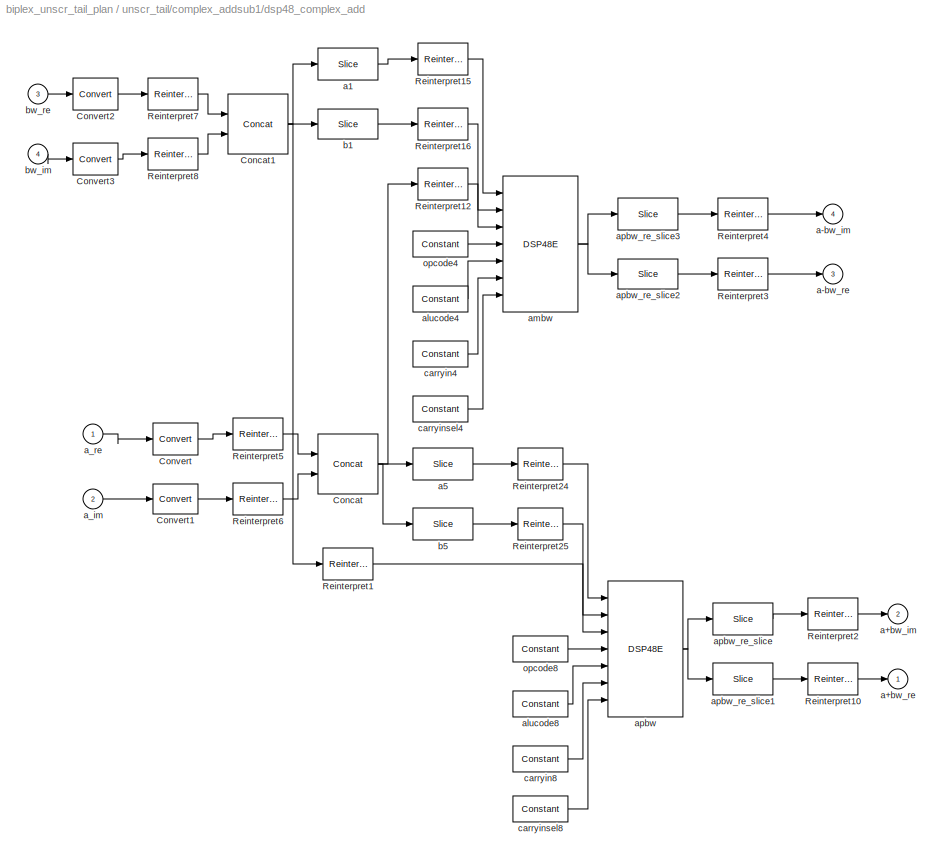
BLOCK [SubSystem] unscr_tail/complex_addsub1/dsp48_complex_add
  FunctionWithSeparateData = off
  MaskHideContents = off
  MinAlgLoopOccurrences = off
  Opaque = off
  Ports = [4, 4]
  PropExecContextOutsideSubsystem = off
  RTWSystemCode = Auto
  RequestExecContextInheritance = off
  SID = 436
BLOCK [Reference] unscr_tail/complex_addsub1/dsp48_complex_add/Concat  REF=xbsIndex_r4/Concat
  Ports = [2, 1]
  SID = 441
  SourceBlock = xbsIndex_r4/Concat
  SourceType = Xilinx Bus Concatenator Block
  block_type = concat
  dbl_ovrd = off
  has_advanced_control = 0
  infoedit = Concatenates two or more inputs.  Output will be cast to an unsigned value with the binary point at zero.
  num_inputs = 2
  sg_icon_stat = 60,60,2,1,white,blue,0,16398980,right,,[ ],[ ]
  sggui_pos = -1,-1,-1,-1
BLOCK [Reference] unscr_tail/complex_addsub1/dsp48_complex_add/Concat1  REF=xbsIndex_r4/Concat
  Ports = [2, 1]
  SID = 442
  SourceBlock = xbsIndex_r4/Concat
  SourceType = Xilinx Bus Concatenator Block
  block_type = concat
  dbl_ovrd = off
  has_advanced_control = 0
  infoedit = Concatenates two or more inputs.  Output will be cast to an unsigned value with the binary point at zero.
  num_inputs = 2
  sg_icon_stat = 60,60,2,1,white,blue,0,16398980,right,,[ ],[ ]
  sggui_pos = -1,-1,-1,-1
BLOCK [Reference] unscr_tail/complex_addsub1/dsp48_complex_add/Convert  REF=xbsIndex_r4/Convert
  Ports = [1, 1]
  SID = 443
  SourceBlock = xbsIndex_r4/Convert
  SourceType = Xilinx Type Converter Block
  arith_type = Signed  (2's comp)
  bin_pt = 22
  block_type = convert
  dbl_ovrd = off
  en = off
  has_advanced_control = 0
  infoedit = Hardware notes: rounding and saturating require hardware resources; truncating and wrapping do not.
  latency = 0
  n_bits = 24
  overflow = Wrap
  pipeline = off
  quantization = Truncate
  sg_icon_stat = 45,32,1,1,white,blue,0,edca21da,right,,[ ],[ ]
  sggui_pos = -1,-1,-1,-1
  xl_area = [0,0,0,0,0,0,0]
  xl_use_area = off
BLOCK [Reference] unscr_tail/complex_addsub1/dsp48_complex_add/Convert1  REF=xbsIndex_r4/Convert
  Ports = [1, 1]
  SID = 444
  SourceBlock = xbsIndex_r4/Convert
  SourceType = Xilinx Type Converter Block
  arith_type = Signed  (2's comp)
  bin_pt = 22
  block_type = convert
  dbl_ovrd = off
  en = off
  has_advanced_control = 0
  infoedit = Hardware notes: rounding and saturating require hardware resources; truncating and wrapping do not.
  latency = 0
  n_bits = 24
  overflow = Wrap
  pipeline = off
  quantization = Truncate
  sg_icon_stat = 45,30,1,1,white,blue,0,edca21da,right,,[ ],[ ]
  sg_mask_display = fprintf('','COMMENT: begin icon graphics');\npatch([0 45 45 0 0 ],[0 0 30 30 0 ],[0.77 0.82 0.91 ]);\nplot([0 45 45 0 0 ],[0 0 30 30 0 ]);\npatch([13.1 18.88 22.88 26.88 30.88 22.88 17.1 13.1 ],[19.44 19.44 23.44 19.44 23.44 23.44 23.44 19.44 ],[1 1 1 ]);\npatch([17.1 22.88 18.88 13.1 17.1 ],[15.44 15.44 19.44 19.44 15.44 ],[0.931 0.946 0.973 ]);\npatch([13.1 18.88 22.88 17.1 13.1 ],[11.44 11.44 1...<+314ch>
  sggui_pos = -1,-1,-1,-1
  xl_area = [0,0,0,0,0,0,0]
  xl_use_area = off
BLOCK [Reference] unscr_tail/complex_addsub1/dsp48_complex_add/Convert2  REF=xbsIndex_r4/Convert
  Ports = [1, 1]
  SID = 445
  SourceBlock = xbsIndex_r4/Convert
  SourceType = Xilinx Type Converter Block
  arith_type = Signed  (2's comp)
  bin_pt = 22
  block_type = convert
  dbl_ovrd = off
  en = off
  has_advanced_control = 0
  infoedit = Hardware notes: rounding and saturating require hardware resources; truncating and wrapping do not.
  latency = 0
  n_bits = 24
  overflow = Wrap
  pipeline = off
  quantization = Truncate
  sg_icon_stat = 45,32,1,1,white,blue,0,edca21da,right,,[ ],[ ]
  sggui_pos = -1,-1,-1,-1
  xl_area = [0,0,0,0,0,0,0]
  xl_use_area = off
BLOCK [Reference] unscr_tail/complex_addsub1/dsp48_complex_add/Convert3  REF=xbsIndex_r4/Convert
  Ports = [1, 1]
  SID = 446
  SourceBlock = xbsIndex_r4/Convert
  SourceType = Xilinx Type Converter Block
  arith_type = Signed  (2's comp)
  bin_pt = 22
  block_type = convert
  dbl_ovrd = off
  en = off
  has_advanced_control = 0
  infoedit = Hardware notes: rounding and saturating require hardware resources; truncating and wrapping do not.
  latency = 0
  n_bits = 24
  overflow = Wrap
  pipeline = off
  quantization = Truncate
  sg_icon_stat = 45,32,1,1,white,blue,0,edca21da,right,,[ ],[ ]
  sggui_pos = -1,-1,-1,-1
  xl_area = [0,0,0,0,0,0,0]
  xl_use_area = off
BLOCK [Reference] unscr_tail/complex_addsub1/dsp48_complex_add/Reinterpret1  REF=xbsIndex_r4/Reinterpret
  Ports = [1, 1]
  SID = 447
  SourceBlock = xbsIndex_r4/Reinterpret
  SourceType = Xilinx Type Reinterpreter Block
  arith_type = Signed  (2's comp)
  bin_pt = 0
  block_type = reinterpret
  force_arith_type = on
  force_bin_pt = off
  has_advanced_control = 0
  sg_icon_stat = 50,32,1,1,white,blue,0,6b04d0b0,right,,[ ],[ ]
  sggui_pos = -1,-1,-1,-1
BLOCK [Reference] unscr_tail/complex_addsub1/dsp48_complex_add/Reinterpret10  REF=xbsIndex_r4/Reinterpret
  Ports = [1, 1]
  SID = 448
  SourceBlock = xbsIndex_r4/Reinterpret
  SourceType = Xilinx Type Reinterpreter Block
  arith_type = Signed  (2's comp)
  bin_pt = 22
  block_type = reinterpret
  force_arith_type = on
  force_bin_pt = on
  has_advanced_control = 0
  sg_icon_stat = 50,32,1,1,white,blue,0,6b04d0b0,right,,[ ],[ ]
  sggui_pos = -1,-1,-1,-1
BLOCK [Reference] unscr_tail/complex_addsub1/dsp48_complex_add/Reinterpret12  REF=xbsIndex_r4/Reinterpret
  Ports = [1, 1]
  SID = 449
  SourceBlock = xbsIndex_r4/Reinterpret
  SourceType = Xilinx Type Reinterpreter Block
  arith_type = Signed  (2's comp)
  bin_pt = 0
  block_type = reinterpret
  force_arith_type = on
  force_bin_pt = off
  has_advanced_control = 0
  sg_icon_stat = 50,32,1,1,white,blue,0,6b04d0b0,right,,[ ],[ ]
  sggui_pos = -1,-1,-1,-1
BLOCK [Reference] unscr_tail/complex_addsub1/dsp48_complex_add/Reinterpret15  REF=xbsIndex_r4/Reinterpret
  Ports = [1, 1]
  SID = 450
  SourceBlock = xbsIndex_r4/Reinterpret
  SourceType = Xilinx Type Reinterpreter Block
  arith_type = Signed  (2's comp)
  bin_pt = 0
  block_type = reinterpret
  force_arith_type = on
  force_bin_pt = off
  has_advanced_control = 0
  sg_icon_stat = 50,32,1,1,white,blue,0,6b04d0b0,right,,[ ],[ ]
  sggui_pos = -1,-1,-1,-1
BLOCK [Reference] unscr_tail/complex_addsub1/dsp48_complex_add/Reinterpret16  REF=xbsIndex_r4/Reinterpret
  Ports = [1, 1]
  SID = 451
  SourceBlock = xbsIndex_r4/Reinterpret
  SourceType = Xilinx Type Reinterpreter Block
  arith_type = Signed  (2's comp)
  bin_pt = 0
  block_type = reinterpret
  force_arith_type = on
  force_bin_pt = off
  has_advanced_control = 0
  sg_icon_stat = 50,32,1,1,white,blue,0,6b04d0b0,right,,[ ],[ ]
  sggui_pos = -1,-1,-1,-1
BLOCK [Reference] unscr_tail/complex_addsub1/dsp48_complex_add/Reinterpret2  REF=xbsIndex_r4/Reinterpret
  Ports = [1, 1]
  SID = 452
  SourceBlock = xbsIndex_r4/Reinterpret
  SourceType = Xilinx Type Reinterpreter Block
  arith_type = Signed  (2's comp)
  bin_pt = 22
  block_type = reinterpret
  force_arith_type = on
  force_bin_pt = on
  has_advanced_control = 0
  sg_icon_stat = 50,32,1,1,white,blue,0,6b04d0b0,right,,[ ],[ ]
  sggui_pos = -1,-1,-1,-1
BLOCK [Reference] unscr_tail/complex_addsub1/dsp48_complex_add/Reinterpret24  REF=xbsIndex_r4/Reinterpret
  Ports = [1, 1]
  SID = 453
  SourceBlock = xbsIndex_r4/Reinterpret
  SourceType = Xilinx Type Reinterpreter Block
  arith_type = Signed  (2's comp)
  bin_pt = 0
  block_type = reinterpret
  force_arith_type = on
  force_bin_pt = off
  has_advanced_control = 0
  sg_icon_stat = 45,32,1,1,white,blue,0,6b04d0b0,right,,[ ],[ ]
  sggui_pos = -1,-1,-1,-1
BLOCK [Reference] unscr_tail/complex_addsub1/dsp48_complex_add/Reinterpret25  REF=xbsIndex_r4/Reinterpret
  Ports = [1, 1]
  SID = 454
  SourceBlock = xbsIndex_r4/Reinterpret
  SourceType = Xilinx Type Reinterpreter Block
  arith_type = Signed  (2's comp)
  bin_pt = 0
  block_type = reinterpret
  force_arith_type = on
  force_bin_pt = off
  has_advanced_control = 0
  sg_icon_stat = 45,32,1,1,white,blue,0,6b04d0b0,right,,[ ],[ ]
  sggui_pos = -1,-1,-1,-1
BLOCK [Reference] unscr_tail/complex_addsub1/dsp48_complex_add/Reinterpret3  REF=xbsIndex_r4/Reinterpret
  Ports = [1, 1]
  SID = 455
  SourceBlock = xbsIndex_r4/Reinterpret
  SourceType = Xilinx Type Reinterpreter Block
  arith_type = Signed  (2's comp)
  bin_pt = 22
  block_type = reinterpret
  force_arith_type = on
  force_bin_pt = on
  has_advanced_control = 0
  sg_icon_stat = 50,32,1,1,white,blue,0,6b04d0b0,right,,[ ],[ ]
  sggui_pos = -1,-1,-1,-1
BLOCK [Reference] unscr_tail/complex_addsub1/dsp48_complex_add/Reinterpret4  REF=xbsIndex_r4/Reinterpret
  Ports = [1, 1]
  SID = 456
  SourceBlock = xbsIndex_r4/Reinterpret
  SourceType = Xilinx Type Reinterpreter Block
  arith_type = Signed  (2's comp)
  bin_pt = 22
  block_type = reinterpret
  force_arith_type = on
  force_bin_pt = on
  has_advanced_control = 0
  sg_icon_stat = 50,32,1,1,white,blue,0,6b04d0b0,right,,[ ],[ ]
  sggui_pos = -1,-1,-1,-1
BLOCK [Reference] unscr_tail/complex_addsub1/dsp48_complex_add/Reinterpret5  REF=xbsIndex_r4/Reinterpret
  Ports = [1, 1]
  SID = 457
  SourceBlock = xbsIndex_r4/Reinterpret
  SourceType = Xilinx Type Reinterpreter Block
  arith_type = Unsigned
  bin_pt = 0
  block_type = reinterpret
  force_arith_type = on
  force_bin_pt = on
  has_advanced_control = 0
  sg_icon_stat = 50,32,1,1,white,blue,0,6b04d0b0,right,,[ ],[ ]
  sggui_pos = -1,-1,-1,-1
BLOCK [Reference] unscr_tail/complex_addsub1/dsp48_complex_add/Reinterpret6  REF=xbsIndex_r4/Reinterpret
  Ports = [1, 1]
  SID = 458
  SourceBlock = xbsIndex_r4/Reinterpret
  SourceType = Xilinx Type Reinterpreter Block
  arith_type = Unsigned
  bin_pt = 0
  block_type = reinterpret
  force_arith_type = on
  force_bin_pt = on
  has_advanced_control = 0
  sg_icon_stat = 50,32,1,1,white,blue,0,6b04d0b0,right,,[ ],[ ]
  sggui_pos = -1,-1,-1,-1
BLOCK [Reference] unscr_tail/complex_addsub1/dsp48_complex_add/Reinterpret7  REF=xbsIndex_r4/Reinterpret
  Ports = [1, 1]
  SID = 459
  SourceBlock = xbsIndex_r4/Reinterpret
  SourceType = Xilinx Type Reinterpreter Block
  arith_type = Unsigned
  bin_pt = 0
  block_type = reinterpret
  force_arith_type = on
  force_bin_pt = on
  has_advanced_control = 0
  sg_icon_stat = 50,32,1,1,white,blue,0,6b04d0b0,right,,[ ],[ ]
  sggui_pos = -1,-1,-1,-1
BLOCK [Reference] unscr_tail/complex_addsub1/dsp48_complex_add/Reinterpret8  REF=xbsIndex_r4/Reinterpret
  Ports = [1, 1]
  SID = 460
  SourceBlock = xbsIndex_r4/Reinterpret
  SourceType = Xilinx Type Reinterpreter Block
  arith_type = Unsigned
  bin_pt = 0
  block_type = reinterpret
  force_arith_type = on
  force_bin_pt = on
  has_advanced_control = 0
  sg_icon_stat = 50,32,1,1,white,blue,0,6b04d0b0,right,,[ ],[ ]
  sggui_pos = -1,-1,-1,-1
BLOCK [Outport] unscr_tail/complex_addsub1/dsp48_complex_add/a+bw_im
  IconDisplay = Port number
  Port = 2
  SID = 480
BLOCK [Outport] unscr_tail/complex_addsub1/dsp48_complex_add/a+bw_re
  IconDisplay = Port number
  SID = 479
BLOCK [Outport] unscr_tail/complex_addsub1/dsp48_complex_add/a-bw_im
  IconDisplay = Port number
  Port = 4
  SID = 482
BLOCK [Outport] unscr_tail/complex_addsub1/dsp48_complex_add/a-bw_re
  IconDisplay = Port number
  Port = 3
  SID = 481
BLOCK [Reference] unscr_tail/complex_addsub1/dsp48_complex_add/a1  REF=xbsIndex_r4/Slice
  Ports = [1, 1]
  SID = 461
  SourceBlock = xbsIndex_r4/Slice
  SourceType = Xilinx Bit Slice Extractor Block
  base0 = LSB of Input
  base1 = MSB of Input
  bit0 = 18
  bit1 = 0
  block_type = slice
  boolean_output = off
  dbl_ovrd = off
  has_advanced_control = 0
  mode = Upper Bit Location + Width
  nbits = 30
  sg_icon_stat = 60,32,1,1,white,blue,0,1fd851a7,right,,[ ],[ ]
  sggui_pos = -1,-1,-1,-1
BLOCK [Reference] unscr_tail/complex_addsub1/dsp48_complex_add/a5  REF=xbsIndex_r4/Slice
  Ports = [1, 1]
  SID = 462
  SourceBlock = xbsIndex_r4/Slice
  SourceType = Xilinx Bit Slice Extractor Block
  base0 = LSB of Input
  base1 = MSB of Input
  bit0 = 18
  bit1 = 0
  block_type = slice
  boolean_output = off
  dbl_ovrd = off
  has_advanced_control = 0
  mode = Upper Bit Location + Width
  nbits = 30
  sg_icon_stat = 60,32,1,1,white,blue,0,1fd851a7,right,,[ ],[ ]
  sggui_pos = -1,-1,-1,-1
BLOCK [Inport] unscr_tail/complex_addsub1/dsp48_complex_add/a_im
  IconDisplay = Port number
  Port = 2
  SID = 438
BLOCK [Inport] unscr_tail/complex_addsub1/dsp48_complex_add/a_re
  IconDisplay = Port number
  SID = 437
BLOCK [Reference] unscr_tail/complex_addsub1/dsp48_complex_add/alucode4  REF=xbsIndex_r4/Constant
  Ports = [0, 1]
  SID = 463
  SourceBlock = xbsIndex_r4/Constant
  SourceType = Xilinx Constant Block Block
  arith_type = Unsigned
  bin_pt = 0
  block_type = constant
  carry = CIN
  const = 3
  dbl_ovrd = off
  dsp48_infoedit = The use of this block for DSP48 instructions is deprecated.  Please use the Opmode block.
  equ = P=C
  explicit_period = on
  has_advanced_control = 0
  inp1 = P
  inp2 = PCIN>>17
  n_bits = 4
  opr = +
  opselect = C
  period = 1
  sg_icon_stat = 55,26,0,1,white,blue,0,279a71c8,right,,[ ],[ ]
  sggui_pos = -1,-1,-1,-1
BLOCK [Reference] unscr_tail/complex_addsub1/dsp48_complex_add/alucode8  REF=xbsIndex_r4/Constant
  Ports = [0, 1]
  SID = 464
  SourceBlock = xbsIndex_r4/Constant
  SourceType = Xilinx Constant Block Block
  arith_type = Unsigned
  bin_pt = 0
  block_type = constant
  carry = CIN
  const = 0
  dbl_ovrd = off
  dsp48_infoedit = The use of this block for DSP48 instructions is deprecated.  Please use the Opmode block.
  equ = P=C
  explicit_period = on
  has_advanced_control = 0
  inp1 = P
  inp2 = PCIN>>17
  n_bits = 4
  opr = +
  opselect = C
  period = 1
  sg_icon_stat = 55,26,0,1,white,blue,0,bf4ddd8b,right,,[ ],[ ]
  sggui_pos = -1,-1,-1,-1
BLOCK [Reference] unscr_tail/complex_addsub1/dsp48_complex_add/ambw  REF=xbsIndex_r4/DSP48E
  Ports = [7, 1]
  SID = 465
  SourceBlock = xbsIndex_r4/DSP48E
  SourceType = Xilinx DSP48E Block
  addsub_mode = TWO24
  block_type = dsp48e
  en_a1 = off
  en_a2 = off
  en_all = off
  en_alumode = off
  en_b1 = off
  en_b2 = off
  en_c = off
  en_carry_in = off
  en_ctrl = off
  en_mult = off
  en_multcarryin = off
  en_p = off
  has_advanced_control = 0
  mask_from_creg = off
  pattern = '000000000000'
  pattern_from_creg = off
  pattern_mask = '3FFFFFFFFFFF'
  pipeline_a = 1
  pipeline_acout = 1
  pipeline_alumode = on
  pipeline_b = 1
  pipeline_bcout = 1
  pipeline_c = on
  pipeline_carryin = on
  pipeline_carryinsel = on
  pipeline_mult = on
  pipeline_opmode = on
  pipeline_p = on
  reset_preg = off
  rst_a = off
  rst_all = off
  rst_alumode = off
  rst_b = off
  rst_c = off
  rst_carry_in = off
  rst_ctrl = off
  rst_mult = off
  rst_p = off
  sel_rounding_mask = Select mask
  sg_icon_stat = 75,136,7,1,white,blue,0,51584ea8,right,,[ ],[ ]
  sggui_pos = -1,-1,-1,-1
  use_a = Direct from A Port
  use_acout = off
  use_b = Direct from B Port
  use_bcout = off
  use_carrycascin = off
  use_carrycascout = off
  use_carryout = off
  use_creg = on
  use_multsignin = off
  use_multsignout = off
  use_op = off
  use_overflow = off
  use_patternbdetect = off
  use_patterndetect = off
  use_pcin = off
  use_pcout = off
  use_synth_model = off
  use_underflow = off
  xl_area = [0,0,0,0,0,0,0]
  xl_use_area = off
  xl_useadderonly = off
BLOCK [Reference] unscr_tail/complex_addsub1/dsp48_complex_add/apbw  REF=xbsIndex_r4/DSP48E
  Ports = [7, 1]
  SID = 466
  SourceBlock = xbsIndex_r4/DSP48E
  SourceType = Xilinx DSP48E Block
  addsub_mode = TWO24
  block_type = dsp48e
  en_a1 = off
  en_a2 = off
  en_all = off
  en_alumode = off
  en_b1 = off
  en_b2 = off
  en_c = off
  en_carry_in = off
  en_ctrl = off
  en_mult = off
  en_multcarryin = off
  en_p = off
  has_advanced_control = 0
  mask_from_creg = off
  pattern = '000000000000'
  pattern_from_creg = off
  pattern_mask = '3FFFFFFFFFFF'
  pipeline_a = 1
  pipeline_acout = 1
  pipeline_alumode = on
  pipeline_b = 1
  pipeline_bcout = 1
  pipeline_c = on
  pipeline_carryin = on
  pipeline_carryinsel = on
  pipeline_mult = on
  pipeline_opmode = on
  pipeline_p = on
  reset_preg = off
  rst_a = off
  rst_all = off
  rst_alumode = off
  rst_b = off
  rst_c = off
  rst_carry_in = off
  rst_ctrl = off
  rst_mult = off
  rst_p = off
  sel_rounding_mask = Select mask
  sg_icon_stat = 75,136,7,1,white,blue,0,51584ea8,right,,[ ],[ ]
  sggui_pos = -1,-1,-1,-1
  use_a = Direct from A Port
  use_acout = off
  use_b = Direct from B Port
  use_bcout = off
  use_carrycascin = off
  use_carrycascout = off
  use_carryout = off
  use_creg = on
  use_multsignin = off
  use_multsignout = off
  use_op = off
  use_overflow = off
  use_patternbdetect = off
  use_patterndetect = off
  use_pcin = off
  use_pcout = off
  use_synth_model = off
  use_underflow = off
  xl_area = [0,0,0,0,0,0,0]
  xl_use_area = off
  xl_useadderonly = off
BLOCK [Reference] unscr_tail/complex_addsub1/dsp48_complex_add/apbw_re_slice  REF=xbsIndex_r4/Slice
  Ports = [1, 1]
  SID = 467
  SourceBlock = xbsIndex_r4/Slice
  SourceType = Xilinx Bit Slice Extractor Block
  base0 = LSB of Input
  base1 = MSB of Input
  bit0 = 0
  bit1 = 0
  block_type = slice
  boolean_output = off
  dbl_ovrd = off
  has_advanced_control = 0
  mode = Lower Bit Location + Width
  nbits = 24
  sg_icon_stat = 60,32,1,1,white,blue,0,1fd851a7,right,,[ ],[ ]
  sggui_pos = -1,-1,-1,-1
BLOCK [Reference] unscr_tail/complex_addsub1/dsp48_complex_add/apbw_re_slice1  REF=xbsIndex_r4/Slice
  Ports = [1, 1]
  SID = 468
  SourceBlock = xbsIndex_r4/Slice
  SourceType = Xilinx Bit Slice Extractor Block
  base0 = LSB of Input
  base1 = MSB of Input
  bit0 = 24
  bit1 = 0
  block_type = slice
  boolean_output = off
  dbl_ovrd = off
  has_advanced_control = 0
  mode = Upper Bit Location + Width
  nbits = 24
  sg_icon_stat = 60,32,1,1,white,blue,0,1fd851a7,right,,[ ],[ ]
  sggui_pos = -1,-1,-1,-1
BLOCK [Reference] unscr_tail/complex_addsub1/dsp48_complex_add/apbw_re_slice2  REF=xbsIndex_r4/Slice
  Ports = [1, 1]
  SID = 469
  SourceBlock = xbsIndex_r4/Slice
  SourceType = Xilinx Bit Slice Extractor Block
  base0 = LSB of Input
  base1 = MSB of Input
  bit0 = 24
  bit1 = 0
  block_type = slice
  boolean_output = off
  dbl_ovrd = off
  has_advanced_control = 0
  mode = Upper Bit Location + Width
  nbits = 24
  sg_icon_stat = 60,30,1,1,white,blue,0,1fd851a7,right,,[ ],[ ]
  sggui_pos = -1,-1,-1,-1
BLOCK [Reference] unscr_tail/complex_addsub1/dsp48_complex_add/apbw_re_slice3  REF=xbsIndex_r4/Slice
  Ports = [1, 1]
  SID = 470
  SourceBlock = xbsIndex_r4/Slice
  SourceType = Xilinx Bit Slice Extractor Block
  base0 = LSB of Input
  base1 = MSB of Input
  bit0 = 0
  bit1 = 0
  block_type = slice
  boolean_output = off
  dbl_ovrd = off
  has_advanced_control = 0
  mode = Lower Bit Location + Width
  nbits = 24
  sg_icon_stat = 60,32,1,1,white,blue,0,1fd851a7,right,,[ ],[ ]
  sggui_pos = -1,-1,-1,-1
BLOCK [Reference] unscr_tail/complex_addsub1/dsp48_complex_add/b1  REF=xbsIndex_r4/Slice
  Ports = [1, 1]
  SID = 471
  SourceBlock = xbsIndex_r4/Slice
  SourceType = Xilinx Bit Slice Extractor Block
  base0 = LSB of Input
  base1 = MSB of Input
  bit0 = 0
  bit1 = 0
  block_type = slice
  boolean_output = off
  dbl_ovrd = off
  has_advanced_control = 0
  mode = Lower Bit Location + Width
  nbits = 18
  sg_icon_stat = 60,30,1,1,white,blue,0,1fd851a7,right,,[ ],[ ]
  sggui_pos = -1,-1,-1,-1
BLOCK [Reference] unscr_tail/complex_addsub1/dsp48_complex_add/b5  REF=xbsIndex_r4/Slice
  Ports = [1, 1]
  SID = 472
  SourceBlock = xbsIndex_r4/Slice
  SourceType = Xilinx Bit Slice Extractor Block
  base0 = LSB of Input
  base1 = MSB of Input
  bit0 = 0
  bit1 = 0
  block_type = slice
  boolean_output = off
  dbl_ovrd = off
  has_advanced_control = 0
  mode = Lower Bit Location + Width
  nbits = 18
  sg_icon_stat = 60,32,1,1,white,blue,0,1fd851a7,right,,[ ],[ ]
  sggui_pos = -1,-1,-1,-1
BLOCK [Inport] unscr_tail/complex_addsub1/dsp48_complex_add/bw_im
  IconDisplay = Port number
  Port = 4
  SID = 440
BLOCK [Inport] unscr_tail/complex_addsub1/dsp48_complex_add/bw_re
  IconDisplay = Port number
  Port = 3
  SID = 439
BLOCK [Reference] unscr_tail/complex_addsub1/dsp48_complex_add/carryin4  REF=xbsIndex_r4/Constant
  Ports = [0, 1]
  SID = 473
  SourceBlock = xbsIndex_r4/Constant
  SourceType = Xilinx Constant Block Block
  arith_type = Unsigned
  bin_pt = 0
  block_type = constant
  carry = CIN
  const = 0
  dbl_ovrd = off
  dsp48_infoedit = The use of this block for DSP48 instructions is deprecated.  Please use the Opmode block.
  equ = P=C
  explicit_period = on
  has_advanced_control = 0
  inp1 = P
  inp2 = PCIN>>17
  n_bits = 1
  opr = +
  opselect = C
  period = 1
  sg_icon_stat = 55,26,0,1,white,blue,0,bf4ddd8b,right,,[ ],[ ]
  sggui_pos = -1,-1,-1,-1
BLOCK [Reference] unscr_tail/complex_addsub1/dsp48_complex_add/carryin8  REF=xbsIndex_r4/Constant
  Ports = [0, 1]
  SID = 474
  SourceBlock = xbsIndex_r4/Constant
  SourceType = Xilinx Constant Block Block
  arith_type = Unsigned
  bin_pt = 0
  block_type = constant
  carry = CIN
  const = 0
  dbl_ovrd = off
  dsp48_infoedit = The use of this block for DSP48 instructions is deprecated.  Please use the Opmode block.
  equ = P=C
  explicit_period = on
  has_advanced_control = 0
  inp1 = P
  inp2 = PCIN>>17
  n_bits = 1
  opr = +
  opselect = C
  period = 1
  sg_icon_stat = 55,26,0,1,white,blue,0,bf4ddd8b,right,,[ ],[ ]
  sggui_pos = -1,-1,-1,-1
BLOCK [Reference] unscr_tail/complex_addsub1/dsp48_complex_add/carryinsel4  REF=xbsIndex_r4/Constant
  Ports = [0, 1]
  SID = 475
  SourceBlock = xbsIndex_r4/Constant
  SourceType = Xilinx Constant Block Block
  arith_type = Unsigned
  bin_pt = 0
  block_type = constant
  carry = CIN
  const = 0
  dbl_ovrd = off
  dsp48_infoedit = The use of this block for DSP48 instructions is deprecated.  Please use the Opmode block.
  equ = P=C
  explicit_period = on
  has_advanced_control = 0
  inp1 = P
  inp2 = PCIN>>17
  n_bits = 3
  opr = +
  opselect = C
  period = 1
  sg_icon_stat = 55,26,0,1,white,blue,0,bf4ddd8b,right,,[ ],[ ]
  sggui_pos = -1,-1,-1,-1
BLOCK [Reference] unscr_tail/complex_addsub1/dsp48_complex_add/carryinsel8  REF=xbsIndex_r4/Constant
  Ports = [0, 1]
  SID = 476
  SourceBlock = xbsIndex_r4/Constant
  SourceType = Xilinx Constant Block Block
  arith_type = Unsigned
  bin_pt = 0
  block_type = constant
  carry = CIN
  const = 0
  dbl_ovrd = off
  dsp48_infoedit = The use of this block for DSP48 instructions is deprecated.  Please use the Opmode block.
  equ = P=C
  explicit_period = on
  has_advanced_control = 0
  inp1 = P
  inp2 = PCIN>>17
  n_bits = 3
  opr = +
  opselect = C
  period = 1
  sg_icon_stat = 55,26,0,1,white,blue,0,bf4ddd8b,right,,[ ],[ ]
  sggui_pos = -1,-1,-1,-1
BLOCK [Reference] unscr_tail/complex_addsub1/dsp48_complex_add/opcode4  REF=xbsIndex_r4/Constant
  Ports = [0, 1]
  SID = 477
  SourceBlock = xbsIndex_r4/Constant
  SourceType = Xilinx Constant Block Block
  arith_type = Unsigned
  bin_pt = 0
  block_type = constant
  carry = CIN
  const = 51
  dbl_ovrd = off
  dsp48_infoedit = The use of this block for DSP48 instructions is deprecated.  Please use the Opmode block.
  equ = P=C
  explicit_period = on
  has_advanced_control = 0
  inp1 = P
  inp2 = PCIN>>17
  n_bits = 7
  opr = +
  opselect = C
  period = 1
  sg_icon_stat = 55,26,0,1,white,blue,0,b654bd3a,right,,[ ],[ ]
  sggui_pos = -1,-1,-1,-1
BLOCK [Reference] unscr_tail/complex_addsub1/dsp48_complex_add/opcode8  REF=xbsIndex_r4/Constant
  Ports = [0, 1]
  SID = 478
  SourceBlock = xbsIndex_r4/Constant
  SourceType = Xilinx Constant Block Block
  arith_type = Unsigned
  bin_pt = 0
  block_type = constant
  carry = CIN
  const = 15
  dbl_ovrd = off
  dsp48_infoedit = The use of this block for DSP48 instructions is deprecated.  Please use the Opmode block.
  equ = P=C
  explicit_period = on
  has_advanced_control = 0
  inp1 = P
  inp2 = PCIN>>17
  n_bits = 7
  opr = +
  opselect = C
  period = 1
  sg_icon_stat = 55,26,0,1,white,blue,0,1164c07c,right,,[ ],[ ]
  sggui_pos = -1,-1,-1,-1
BLOCK [SubSystem] unscr_tail/complex_addsub1/uncram
  FunctionWithSeparateData = off
  MaskHideContents = off
  MinAlgLoopOccurrences = off
  Opaque = off
  Ports = [1, 2]
  PropExecContextOutsideSubsystem = off
  RTWSystemCode = Auto
  RequestExecContextInheritance = off
  SID = 483
BLOCK [Reference] unscr_tail/complex_addsub1/uncram/Reinterpret15  REF=xbsIndex_r4/Reinterpret
  Ports = [1, 1]
  SID = 485
  SourceBlock = xbsIndex_r4/Reinterpret
  SourceType = Xilinx Type Reinterpreter Block
  arith_type = Signed  (2's comp)
  bin_pt = input_bit_width-1
  block_type = reinterpret
  force_arith_type = on
  force_bin_pt = on
  has_advanced_control = 0
  sg_icon_stat = 50,32,1,1,white,blue,0,6b04d0b0,right,,[ ],[ ]
  sggui_pos = 45,26,372,364
BLOCK [Reference] unscr_tail/complex_addsub1/uncram/Reinterpret16  REF=xbsIndex_r4/Reinterpret
  Ports = [1, 1]
  SID = 486
  SourceBlock = xbsIndex_r4/Reinterpret
  SourceType = Xilinx Type Reinterpreter Block
  arith_type = Signed  (2's comp)
  bin_pt = input_bit_width-1
  block_type = reinterpret
  force_arith_type = on
  force_bin_pt = on
  has_advanced_control = 0
  sg_icon_stat = 50,32,1,1,white,blue,0,6b04d0b0,right,,[ ],[ ]
  sggui_pos = -1,-1,-1,-1
BLOCK [Reference] unscr_tail/complex_addsub1/uncram/Slice16  REF=xbsIndex_r4/Slice
  Ports = [1, 1]
  SID = 487
  SourceBlock = xbsIndex_r4/Slice
  SourceType = Xilinx Bit Slice Extractor Block
  base0 = MSB of Input
  base1 = MSB of Input
  bit0 = 0
  bit1 = -0
  block_type = slice
  boolean_output = off
  dbl_ovrd = off
  has_advanced_control = 0
  mode = Upper Bit Location + Width
  nbits = input_bit_width
  sg_icon_stat = 60,32,1,1,white,blue,0,1fd851a7,right,,[ ],[ ]
  sggui_pos = -1,-1,-1,-1
BLOCK [Reference] unscr_tail/complex_addsub1/uncram/Slice17  REF=xbsIndex_r4/Slice
  Ports = [1, 1]
  SID = 488
  SourceBlock = xbsIndex_r4/Slice
  SourceType = Xilinx Bit Slice Extractor Block
  base0 = MSB of Input
  base1 = MSB of Input
  bit0 = 0
  bit1 = -1* input_bit_width
  block_type = slice
  boolean_output = off
  dbl_ovrd = off
  has_advanced_control = 0
  mode = Upper Bit Location + Width
  nbits = input_bit_width
  sg_icon_stat = 60,32,1,1,white,blue,0,1fd851a7,right,,[ ],[ ]
  sggui_pos = 557,147,537,482
BLOCK [Inport] unscr_tail/complex_addsub1/uncram/in
  IconDisplay = Port number
  SID = 484
BLOCK [Outport] unscr_tail/complex_addsub1/uncram/out0
  IconDisplay = Port number
  SID = 489
BLOCK [Outport] unscr_tail/complex_addsub1/uncram/out1
  IconDisplay = Port number
  Port = 2
  SID = 490
BLOCK [SubSystem] unscr_tail/complex_addsub1/uncram2
  FunctionWithSeparateData = off
  MaskHideContents = off
  MinAlgLoopOccurrences = off
  Opaque = off
  Ports = [1, 2]
  PropExecContextOutsideSubsystem = off
  RTWSystemCode = Auto
  RequestExecContextInheritance = off
  SID = 491
BLOCK [Reference] unscr_tail/complex_addsub1/uncram2/Reinterpret15  REF=xbsIndex_r4/Reinterpret
  Ports = [1, 1]
  SID = 493
  SourceBlock = xbsIndex_r4/Reinterpret
  SourceType = Xilinx Type Reinterpreter Block
  arith_type = Signed  (2's comp)
  bin_pt = input_bit_width-1
  block_type = reinterpret
  force_arith_type = on
  force_bin_pt = on
  has_advanced_control = 0
  sg_icon_stat = 50,32,1,1,white,blue,0,6b04d0b0,right,,[ ],[ ]
  sggui_pos = -1,-1,-1,-1
BLOCK [Reference] unscr_tail/complex_addsub1/uncram2/Reinterpret16  REF=xbsIndex_r4/Reinterpret
  Ports = [1, 1]
  SID = 494
  SourceBlock = xbsIndex_r4/Reinterpret
  SourceType = Xilinx Type Reinterpreter Block
  arith_type = Signed  (2's comp)
  bin_pt = input_bit_width-1
  block_type = reinterpret
  force_arith_type = on
  force_bin_pt = on
  has_advanced_control = 0
  sg_icon_stat = 50,32,1,1,white,blue,0,6b04d0b0,right,,[ ],[ ]
  sggui_pos = -1,-1,-1,-1
BLOCK [Reference] unscr_tail/complex_addsub1/uncram2/Slice16  REF=xbsIndex_r4/Slice
  Ports = [1, 1]
  SID = 495
  SourceBlock = xbsIndex_r4/Slice
  SourceType = Xilinx Bit Slice Extractor Block
  base0 = MSB of Input
  base1 = MSB of Input
  bit0 = 0
  bit1 = -0
  block_type = slice
  boolean_output = off
  dbl_ovrd = off
  has_advanced_control = 0
  mode = Upper Bit Location + Width
  nbits = input_bit_width
  sg_icon_stat = 60,32,1,1,white,blue,0,1fd851a7,right,,[ ],[ ]
  sggui_pos = -1,-1,-1,-1
BLOCK [Reference] unscr_tail/complex_addsub1/uncram2/Slice17  REF=xbsIndex_r4/Slice
  Ports = [1, 1]
  SID = 496
  SourceBlock = xbsIndex_r4/Slice
  SourceType = Xilinx Bit Slice Extractor Block
  base0 = MSB of Input
  base1 = MSB of Input
  bit0 = 0
  bit1 = -1* input_bit_width
  block_type = slice
  boolean_output = off
  dbl_ovrd = off
  has_advanced_control = 0
  mode = Upper Bit Location + Width
  nbits = input_bit_width
  sg_icon_stat = 60,32,1,1,white,blue,0,1fd851a7,right,,[ ],[ ]
  sggui_pos = 557,147,537,482
BLOCK [Inport] unscr_tail/complex_addsub1/uncram2/in
  IconDisplay = Port number
  SID = 492
BLOCK [Outport] unscr_tail/complex_addsub1/uncram2/out0
  IconDisplay = Port number
  SID = 497
BLOCK [Outport] unscr_tail/complex_addsub1/uncram2/out1
  IconDisplay = Port number
  Port = 2
  SID = 498
BLOCK [SubSystem] unscr_tail/mirror_spectrum
  FunctionWithSeparateData = off
  MaskHideContents = off
  MinAlgLoopOccurrences = off
  Opaque = off
  Ports = [9, 5]
  PropExecContextOutsideSubsystem = off
  RTWSystemCode = Auto
  RequestExecContextInheritance = off
  SID = 158
BLOCK [Reference] unscr_tail/mirror_spectrum/Delay1  REF=xbsIndex_r4/Delay
  Ports = [1, 1]
  SID = 168
  SourceBlock = xbsIndex_r4/Delay
  SourceType = Xilinx Delay Block
  block_type = delay
  dbl_ovrd = off
  en = off
  has_advanced_control = 0
  infoedit = Hardware notes: A delay line is a chain, each link of which is an SRL16 followed by a flip-flop.
  latency = 0
  reg_retiming = off
  sg_icon_stat = 60,56,1,1,white,blue,0,24450e6f,right,,[ ],[ ]
  sggui_pos = -1,-1,-1,-1
  xl_area = [0,0,0,0,0,0,0]
  xl_use_area = off
BLOCK [Reference] unscr_tail/mirror_spectrum/Delay2  REF=xbsIndex_r4/Delay
  Ports = [1, 1]
  SID = 169
  SourceBlock = xbsIndex_r4/Delay
  SourceType = Xilinx Delay Block
  block_type = delay
  dbl_ovrd = off
  en = off
  has_advanced_control = 0
  infoedit = Hardware notes: A delay line is a chain, each link of which is an SRL16 followed by a flip-flop.
  latency = 1
  reg_retiming = off
  sg_icon_stat = 60,56,1,1,white,blue,0,07b98262,right,,[ ],[ ]
  sggui_pos = -1,-1,-1,-1
  xl_area = [0,0,0,0,0,0,0]
  xl_use_area = off
BLOCK [Reference] unscr_tail/mirror_spectrum/Delay3  REF=xbsIndex_r4/Delay
  Ports = [1, 1]
  SID = 170
  SourceBlock = xbsIndex_r4/Delay
  SourceType = Xilinx Delay Block
  block_type = delay
  dbl_ovrd = off
  en = off
  has_advanced_control = 0
  infoedit = Hardware notes: A delay line is a chain, each link of which is an SRL16 followed by a flip-flop.
  latency = bram_latency + 2 + reorder_din_latency
  reg_retiming = off
  sg_icon_stat = 60,56,1,1,white,blue,0,aa5bc30d,right,,[ ],[ ]
  sggui_pos = -1,-1,-1,-1
  xl_area = [0,0,0,0,0,0,0]
  xl_use_area = off
BLOCK [Reference] unscr_tail/mirror_spectrum/Delay4  REF=xbsIndex_r4/Delay
  Ports = [1, 1]
  SID = 171
  SourceBlock = xbsIndex_r4/Delay
  SourceType = Xilinx Delay Block
  block_type = delay
  dbl_ovrd = off
  en = off
  has_advanced_control = 0
  infoedit = Hardware notes: A delay line is a chain, each link of which is an SRL16 followed by a flip-flop.
  latency = bram_latency + 2 + reorder_din_latency
  reg_retiming = off
  sg_icon_stat = 60,56,1,1,white,blue,0,aa5bc30d,right,,[ ],[ ]
  sggui_pos = -1,-1,-1,-1
  xl_area = [0,0,0,0,0,0,0]
  xl_use_area = off
BLOCK [Reference] unscr_tail/mirror_spectrum/Delay5  REF=xbsIndex_r4/Delay
  Ports = [1, 1]
  SID = 172
  SourceBlock = xbsIndex_r4/Delay
  SourceType = Xilinx Delay Block
  block_type = delay
  dbl_ovrd = off
  en = off
  has_advanced_control = 0
  infoedit = Hardware notes: A delay line is a chain, each link of which is an SRL16 followed by a flip-flop.
  latency = bram_latency + 2 + reorder_din_latency
  reg_retiming = off
  sg_icon_stat = 60,56,1,1,white,blue,0,aa5bc30d,right,,[ ],[ ]
  sggui_pos = -1,-1,-1,-1
  xl_area = [0,0,0,0,0,0,0]
  xl_use_area = off
BLOCK [Reference] unscr_tail/mirror_spectrum/Delay6  REF=xbsIndex_r4/Delay
  Ports = [1, 1]
  SID = 173
  SourceBlock = xbsIndex_r4/Delay
  SourceType = Xilinx Delay Block
  block_type = delay
  dbl_ovrd = off
  en = off
  has_advanced_control = 0
  infoedit = Hardware notes: A delay line is a chain, each link of which is an SRL16 followed by a flip-flop.
  latency = bram_latency + 2 + reorder_din_latency
  reg_retiming = off
  sg_icon_stat = 60,56,1,1,white,blue,0,aa5bc30d,right,,[ ],[ ]
  sggui_pos = -1,-1,-1,-1
  xl_area = [0,0,0,0,0,0,0]
  xl_use_area = off
BLOCK [Reference] unscr_tail/mirror_spectrum/Mux  REF=xbsIndex_r4/Mux
  Ports = [3, 1]
  SID = 174
  SourceBlock = xbsIndex_r4/Mux
  SourceType = Xilinx Bus Multiplexer Block
  arith_type = Signed  (2's comp)
  bin_pt = 2
  block_type = mux
  dbl_ovrd = off
  en = off
  has_advanced_control = 0
  inputs = 2
  latency = 0
  n_bits = 8
  overflow = Wrap
  precision = Full
  quantization = Truncate
  sg_icon_stat = 45,104,3,1,white,blue,3,eb98d690,right,,[ ],[ ]
  sg_mask_display = fprintf('','COMMENT: begin icon graphics');\npatch([0 45 45 0 0 ],[0 14.8571 89.1429 104 0 ],[0.77 0.82 0.91 ]);\nplot([0 45 45 0 0 ],[0 14.8571 89.1429 104 0 ]);\npatch([8.65 17.32 23.32 29.32 35.32 23.32 14.65 8.65 ],[58.66 58.66 64.66 58.66 64.66 64.66 64.66 58.66 ],[1 1 1 ]);\npatch([14.65 23.32 17.32 8.65 14.65 ],[52.66 52.66 58.66 58.66 52.66 ],[0.931 0.946 0.973 ]);\npatch([8.65 17.32 23.32...<+481ch>  <repeated x6 — deduplicated; at blocks: Mux, Mux1, Mux2, Mux3>
  sggui_pos = -1,-1,-1,-1
  xl_area = [0,0,0,0,0,0,0]
  xl_use_area = off
BLOCK [Reference] unscr_tail/mirror_spectrum/Mux1  REF=xbsIndex_r4/Mux
  Ports = [3, 1]
  SID = 175
  SourceBlock = xbsIndex_r4/Mux
  SourceType = Xilinx Bus Multiplexer Block
  arith_type = Signed  (2's comp)
  bin_pt = 2
  block_type = mux
  dbl_ovrd = off
  en = off
  has_advanced_control = 0
  inputs = 2
  latency = 0
  n_bits = 8
  overflow = Wrap
  precision = Full
  quantization = Truncate
  sg_icon_stat = 45,104,3,1,white,blue,3,eb98d690,right,,[ ],[ ]
  sggui_pos = -1,-1,-1,-1
  xl_area = [0,0,0,0,0,0,0]
  xl_use_area = off
BLOCK [Reference] unscr_tail/mirror_spectrum/Mux2  REF=xbsIndex_r4/Mux
  Ports = [3, 1]
  SID = 176
  SourceBlock = xbsIndex_r4/Mux
  SourceType = Xilinx Bus Multiplexer Block
  arith_type = Signed  (2's comp)
  bin_pt = 2
  block_type = mux
  dbl_ovrd = off
  en = off
  has_advanced_control = 0
  inputs = 2
  latency = 0
  n_bits = 8
  overflow = Wrap
  precision = Full
  quantization = Truncate
  sg_icon_stat = 45,104,3,1,white,blue,3,eb98d690,right,,[ ],[ ]
  sggui_pos = -1,-1,-1,-1
  xl_area = [0,0,0,0,0,0,0]
  xl_use_area = off
BLOCK [Reference] unscr_tail/mirror_spectrum/Mux3  REF=xbsIndex_r4/Mux
  Ports = [3, 1]
  SID = 177
  SourceBlock = xbsIndex_r4/Mux
  SourceType = Xilinx Bus Multiplexer Block
  arith_type = Signed  (2's comp)
  bin_pt = 2
  block_type = mux
  dbl_ovrd = off
  en = off
  has_advanced_control = 0
  inputs = 2
  latency = 0
  n_bits = 8
  overflow = Wrap
  precision = Full
  quantization = Truncate
  sg_icon_stat = 45,104,3,1,white,blue,3,eb98d690,right,,[ ],[ ]
  sggui_pos = -1,-1,-1,-1
  xl_area = [0,0,0,0,0,0,0]
  xl_use_area = off
BLOCK [SubSystem] unscr_tail/mirror_spectrum/cram1
  FunctionWithSeparateData = off
  MaskHideContents = off
  MinAlgLoopOccurrences = off
  Opaque = off
  Ports = [2, 1]
  PropExecContextOutsideSubsystem = off
  RTWSystemCode = Auto
  RequestExecContextInheritance = off
  SID = 178
BLOCK [Reference] unscr_tail/mirror_spectrum/cram1/Concat5  REF=xbsIndex_r4/Concat
  Ports = [2, 1]
  SID = 181
  SourceBlock = xbsIndex_r4/Concat
  SourceType = Xilinx Bus Concatenator Block
  block_type = concat
  dbl_ovrd = off
  has_advanced_control = 0
  infoedit = Concatenates two or more inputs.  Output will be cast to an unsigned value with the binary point at zero.
  num_inputs = 2
  sg_icon_stat = 60,60,2,1,white,blue,0,16398980,right,,[ ],[ ]
  sggui_pos = -1,-1,-1,-1
BLOCK [Reference] unscr_tail/mirror_spectrum/cram1/Reinterpret23  REF=xbsIndex_r4/Reinterpret
  Ports = [1, 1]
  SID = 182
  SourceBlock = xbsIndex_r4/Reinterpret
  SourceType = Xilinx Type Reinterpreter Block
  arith_type = Unsigned
  bin_pt = 0
  block_type = reinterpret
  force_arith_type = on
  force_bin_pt = on
  has_advanced_control = 0
  sg_icon_stat = 50,32,1,1,white,blue,0,6b04d0b0,right,,[ ],[ ]
  sggui_pos = -1,-1,-1,-1
BLOCK [Reference] unscr_tail/mirror_spectrum/cram1/Reinterpret24  REF=xbsIndex_r4/Reinterpret
  Ports = [1, 1]
  SID = 183
  SourceBlock = xbsIndex_r4/Reinterpret
  SourceType = Xilinx Type Reinterpreter Block
  arith_type = Unsigned
  bin_pt = 0
  block_type = reinterpret
  force_arith_type = on
  force_bin_pt = on
  has_advanced_control = 0
  sg_icon_stat = 50,32,1,1,white,blue,0,6b04d0b0,right,,[ ],[ ]
  sggui_pos = -1,-1,-1,-1
BLOCK [Inport] unscr_tail/mirror_spectrum/cram1/in0
  IconDisplay = Port number
  SID = 179
BLOCK [Inport] unscr_tail/mirror_spectrum/cram1/in1
  IconDisplay = Port number
  Port = 2
  SID = 180
BLOCK [Outport] unscr_tail/mirror_spectrum/cram1/out
  IconDisplay = Port number
  SID = 184
BLOCK [SubSystem] unscr_tail/mirror_spectrum/cram2
  FunctionWithSeparateData = off
  MaskHideContents = off
  MinAlgLoopOccurrences = off
  Opaque = off
  Ports = [2, 1]
  PropExecContextOutsideSubsystem = off
  RTWSystemCode = Auto
  RequestExecContextInheritance = off
  SID = 185
BLOCK [Reference] unscr_tail/mirror_spectrum/cram2/Concat6  REF=xbsIndex_r4/Concat
  Ports = [2, 1]
  SID = 188
  SourceBlock = xbsIndex_r4/Concat
  SourceType = Xilinx Bus Concatenator Block
  block_type = concat
  dbl_ovrd = off
  has_advanced_control = 0
  infoedit = Concatenates two or more inputs.  Output will be cast to an unsigned value with the binary point at zero.
  num_inputs = 2
  sg_icon_stat = 60,60,2,1,white,blue,0,16398980,right,,[ ],[ ]
  sggui_pos = -1,-1,-1,-1
BLOCK [Reference] unscr_tail/mirror_spectrum/cram2/Reinterpret25  REF=xbsIndex_r4/Reinterpret
  Ports = [1, 1]
  SID = 189
  SourceBlock = xbsIndex_r4/Reinterpret
  SourceType = Xilinx Type Reinterpreter Block
  arith_type = Unsigned
  bin_pt = 0
  block_type = reinterpret
  force_arith_type = on
  force_bin_pt = on
  has_advanced_control = 0
  sg_icon_stat = 50,32,1,1,white,blue,0,6b04d0b0,right,,[ ],[ ]
  sggui_pos = -1,-1,-1,-1
BLOCK [Reference] unscr_tail/mirror_spectrum/cram2/Reinterpret26  REF=xbsIndex_r4/Reinterpret
  Ports = [1, 1]
  SID = 190
  SourceBlock = xbsIndex_r4/Reinterpret
  SourceType = Xilinx Type Reinterpreter Block
  arith_type = Unsigned
  bin_pt = 0
  block_type = reinterpret
  force_arith_type = on
  force_bin_pt = on
  has_advanced_control = 0
  sg_icon_stat = 50,32,1,1,white,blue,0,6b04d0b0,right,,[ ],[ ]
  sggui_pos = -1,-1,-1,-1
BLOCK [Inport] unscr_tail/mirror_spectrum/cram2/in0
  IconDisplay = Port number
  SID = 186
BLOCK [Inport] unscr_tail/mirror_spectrum/cram2/in1
  IconDisplay = Port number
  Port = 2
  SID = 187
BLOCK [Outport] unscr_tail/mirror_spectrum/cram2/out
  IconDisplay = Port number
  SID = 191
BLOCK [SubSystem] unscr_tail/mirror_spectrum/cram3
  FunctionWithSeparateData = off
  MaskHideContents = off
  MinAlgLoopOccurrences = off
  Opaque = off
  Ports = [2, 1]
  PropExecContextOutsideSubsystem = off
  RTWSystemCode = Auto
  RequestExecContextInheritance = off
  SID = 192
BLOCK [Reference] unscr_tail/mirror_spectrum/cram3/Concat7  REF=xbsIndex_r4/Concat
  Ports = [2, 1]
  SID = 195
  SourceBlock = xbsIndex_r4/Concat
  SourceType = Xilinx Bus Concatenator Block
  block_type = concat
  dbl_ovrd = off
  has_advanced_control = 0
  infoedit = Concatenates two or more inputs.  Output will be cast to an unsigned value with the binary point at zero.
  num_inputs = 2
  sg_icon_stat = 60,60,2,1,white,blue,0,16398980,right,,[ ],[ ]
  sggui_pos = -1,-1,-1,-1
BLOCK [Reference] unscr_tail/mirror_spectrum/cram3/Reinterpret27  REF=xbsIndex_r4/Reinterpret
  Ports = [1, 1]
  SID = 196
  SourceBlock = xbsIndex_r4/Reinterpret
  SourceType = Xilinx Type Reinterpreter Block
  arith_type = Unsigned
  bin_pt = 0
  block_type = reinterpret
  force_arith_type = on
  force_bin_pt = on
  has_advanced_control = 0
  sg_icon_stat = 50,32,1,1,white,blue,0,6b04d0b0,right,,[ ],[ ]
  sggui_pos = -1,-1,-1,-1
BLOCK [Reference] unscr_tail/mirror_spectrum/cram3/Reinterpret28  REF=xbsIndex_r4/Reinterpret
  Ports = [1, 1]
  SID = 197
  SourceBlock = xbsIndex_r4/Reinterpret
  SourceType = Xilinx Type Reinterpreter Block
  arith_type = Unsigned
  bin_pt = 0
  block_type = reinterpret
  force_arith_type = on
  force_bin_pt = on
  has_advanced_control = 0
  sg_icon_stat = 50,32,1,1,white,blue,0,6b04d0b0,right,,[ ],[ ]
  sggui_pos = -1,-1,-1,-1
BLOCK [Inport] unscr_tail/mirror_spectrum/cram3/in0
  IconDisplay = Port number
  SID = 193
BLOCK [Inport] unscr_tail/mirror_spectrum/cram3/in1
  IconDisplay = Port number
  Port = 2
  SID = 194
BLOCK [Outport] unscr_tail/mirror_spectrum/cram3/out
  IconDisplay = Port number
  SID = 198
BLOCK [SubSystem] unscr_tail/mirror_spectrum/cram4
  FunctionWithSeparateData = off
  MaskHideContents = off
  MinAlgLoopOccurrences = off
  Opaque = off
  Ports = [2, 1]
  PropExecContextOutsideSubsystem = off
  RTWSystemCode = Auto
  RequestExecContextInheritance = off
  SID = 199
BLOCK [Reference] unscr_tail/mirror_spectrum/cram4/Concat8  REF=xbsIndex_r4/Concat
  Ports = [2, 1]
  SID = 202
  SourceBlock = xbsIndex_r4/Concat
  SourceType = Xilinx Bus Concatenator Block
  block_type = concat
  dbl_ovrd = off
  has_advanced_control = 0
  infoedit = Concatenates two or more inputs.  Output will be cast to an unsigned value with the binary point at zero.
  num_inputs = 2
  sg_icon_stat = 60,60,2,1,white,blue,0,16398980,right,,[ ],[ ]
  sggui_pos = -1,-1,-1,-1
BLOCK [Reference] unscr_tail/mirror_spectrum/cram4/Reinterpret29  REF=xbsIndex_r4/Reinterpret
  Ports = [1, 1]
  SID = 203
  SourceBlock = xbsIndex_r4/Reinterpret
  SourceType = Xilinx Type Reinterpreter Block
  arith_type = Unsigned
  bin_pt = 0
  block_type = reinterpret
  force_arith_type = on
  force_bin_pt = on
  has_advanced_control = 0
  sg_icon_stat = 50,32,1,1,white,blue,0,6b04d0b0,right,,[ ],[ ]
  sggui_pos = -1,-1,-1,-1
BLOCK [Reference] unscr_tail/mirror_spectrum/cram4/Reinterpret30  REF=xbsIndex_r4/Reinterpret
  Ports = [1, 1]
  SID = 204
  SourceBlock = xbsIndex_r4/Reinterpret
  SourceType = Xilinx Type Reinterpreter Block
  arith_type = Unsigned
  bin_pt = 0
  block_type = reinterpret
  force_arith_type = on
  force_bin_pt = on
  has_advanced_control = 0
  sg_icon_stat = 50,32,1,1,white,blue,0,6b04d0b0,right,,[ ],[ ]
  sggui_pos = -1,-1,-1,-1
BLOCK [Inport] unscr_tail/mirror_spectrum/cram4/in0
  IconDisplay = Port number
  SID = 200
BLOCK [Inport] unscr_tail/mirror_spectrum/cram4/in1
  IconDisplay = Port number
  Port = 2
  SID = 201
BLOCK [Outport] unscr_tail/mirror_spectrum/cram4/out
  IconDisplay = Port number
  SID = 205
BLOCK [Reference] unscr_tail/mirror_spectrum/delay_uncram_0  REF=xbsIndex_r4/Delay
  Ports = [1, 1]
  SID = 206
  SourceBlock = xbsIndex_r4/Delay
  SourceType = Xilinx Delay Block
  block_type = delay
  dbl_ovrd = off
  en = off
  has_advanced_control = 0
  infoedit = Hardware notes: A delay line is a chain, each link of which is an SRL16 followed by a flip-flop.
  latency = 2
  reg_retiming = off
  sg_icon_stat = 60,56,1,1,white,blue,0,85ce9542,right,,[ ],[ ]
  sggui_pos = -1,-1,-1,-1
  xl_area = [0,0,0,0,0,0,0]
  xl_use_area = off
BLOCK [Reference] unscr_tail/mirror_spectrum/delay_uncram_1  REF=xbsIndex_r4/Delay
  Ports = [1, 1]
  SID = 207
  SourceBlock = xbsIndex_r4/Delay
  SourceType = Xilinx Delay Block
  block_type = delay
  dbl_ovrd = off
  en = off
  has_advanced_control = 0
  infoedit = Hardware notes: A delay line is a chain, each link of which is an SRL16 followed by a flip-flop.
  latency = 2
  reg_retiming = off
  sg_icon_stat = 60,56,1,1,white,blue,0,85ce9542,right,,[ ],[ ]
  sggui_pos = -1,-1,-1,-1
  xl_area = [0,0,0,0,0,0,0]
  xl_use_area = off
BLOCK [Reference] unscr_tail/mirror_spectrum/delay_uncram_2  REF=xbsIndex_r4/Delay
  Ports = [1, 1]
  SID = 208
  SourceBlock = xbsIndex_r4/Delay
  SourceType = Xilinx Delay Block
  block_type = delay
  dbl_ovrd = off
  en = off
  has_advanced_control = 0
  infoedit = Hardware notes: A delay line is a chain, each link of which is an SRL16 followed by a flip-flop.
  latency = 2
  reg_retiming = off
  sg_icon_stat = 60,56,1,1,white,blue,0,85ce9542,right,,[ ],[ ]
  sggui_pos = -1,-1,-1,-1
  xl_area = [0,0,0,0,0,0,0]
  xl_use_area = off
BLOCK [Reference] unscr_tail/mirror_spectrum/delay_uncram_3  REF=xbsIndex_r4/Delay
  Ports = [1, 1]
  SID = 209
  SourceBlock = xbsIndex_r4/Delay
  SourceType = Xilinx Delay Block
  block_type = delay
  dbl_ovrd = off
  en = off
  has_advanced_control = 0
  infoedit = Hardware notes: A delay line is a chain, each link of which is an SRL16 followed by a flip-flop.
  latency = 2
  reg_retiming = off
  sg_icon_stat = 60,56,1,1,white,blue,0,85ce9542,right,,[ ],[ ]
  sggui_pos = -1,-1,-1,-1
  xl_area = [0,0,0,0,0,0,0]
  xl_use_area = off
BLOCK [Inport] unscr_tail/mirror_spectrum/din0
  IconDisplay = Port number
  Port = 2
  SID = 160
BLOCK [Inport] unscr_tail/mirror_spectrum/din1
  IconDisplay = Port number
  Port = 4
  SID = 162
BLOCK [Inport] unscr_tail/mirror_spectrum/din2
  IconDisplay = Port number
  Port = 6
  SID = 164
BLOCK [Inport] unscr_tail/mirror_spectrum/din3
  IconDisplay = Port number
  Port = 8
  SID = 166
BLOCK [Outport] unscr_tail/mirror_spectrum/dout0
  IconDisplay = Port number
  Port = 2
  SID = 270
BLOCK [Outport] unscr_tail/mirror_spectrum/dout1
  IconDisplay = Port number
  Port = 3
  SID = 271
BLOCK [Outport] unscr_tail/mirror_spectrum/dout2
  IconDisplay = Port number
  Port = 4
  SID = 272
BLOCK [Outport] unscr_tail/mirror_spectrum/dout3
  IconDisplay = Port number
  Port = 5
  SID = 273
BLOCK [Reference] unscr_tail/mirror_spectrum/dsp48_negate_dual  REF=monroe_library/dsp48_negate_dual  (lib defined in mdl_6e3ec1066caf, mdl_8e463b7c25be, +1 more)
  FunctionWithSeparateData = off
  GeneratePreprocessorConditionals = off
  Ports = [2, 2]
  RTWMemSecDataConstants = Inherit from model
  RTWMemSecDataInternal = Inherit from model
  RTWMemSecDataParameters = Inherit from model
  RTWMemSecFuncExecute = Inherit from model
  RTWMemSecFuncInitTerm = Inherit from model
  SID = 210
  ShowPortLabels = FromPortIcon
  SourceBlock = monroe_library/dsp48_negate_dual
  SystemSampleTime = -1
  a_bin_pt = input_bit_width-1
  a_bit_width = input_bit_width
BLOCK [Reference] unscr_tail/mirror_spectrum/dsp48_negate_dual1  REF=monroe_library/dsp48_negate_dual  (lib defined in mdl_6e3ec1066caf, mdl_8e463b7c25be, +1 more)
  FunctionWithSeparateData = off
  GeneratePreprocessorConditionals = off
  Ports = [2, 2]
  RTWMemSecDataConstants = Inherit from model
  RTWMemSecDataInternal = Inherit from model
  RTWMemSecDataParameters = Inherit from model
  RTWMemSecFuncExecute = Inherit from model
  RTWMemSecFuncInitTerm = Inherit from model
  SID = 377
  ShowPortLabels = FromPortIcon
  SourceBlock = monroe_library/dsp48_negate_dual
  SystemSampleTime = -1
  a_bin_pt = input_bit_width-1
  a_bit_width = input_bit_width
BLOCK [Inport] unscr_tail/mirror_spectrum/reo_in0
  IconDisplay = Port number
  Port = 3
  SID = 161
BLOCK [Inport] unscr_tail/mirror_spectrum/reo_in1
  IconDisplay = Port number
  Port = 5
  SID = 163
BLOCK [Inport] unscr_tail/mirror_spectrum/reo_in2
  IconDisplay = Port number
  Port = 7
  SID = 165
BLOCK [Inport] unscr_tail/mirror_spectrum/reo_in3
  IconDisplay = Port number
  Port = 9
  SID = 167
BLOCK [SubSystem] unscr_tail/mirror_spectrum/sel_gen
  FunctionWithSeparateData = off
  MaskHideContents = off
  MinAlgLoopOccurrences = off
  Opaque = off
  Ports = [1, 1]
  PropExecContextOutsideSubsystem = off
  RTWSystemCode = Auto
  RequestExecContextInheritance = off
  SID = 212
BLOCK [Reference] unscr_tail/mirror_spectrum/sel_gen/Constant3  REF=xbsIndex_r4/Constant
  Ports = [0, 1]
  SID = 214
  SourceBlock = xbsIndex_r4/Constant
  SourceType = Xilinx Constant Block Block
  arith_type = Unsigned
  bin_pt = 0
  block_type = constant
  carry = CIN
  const = 2^(FFTSize-1)
  dbl_ovrd = off
  dsp48_infoedit = The use of this block for DSP48 instructions is deprecated.  Please use the Opmode block.
  equ = P=C
  explicit_period = on
  has_advanced_control = 0
  inp1 = P
  inp2 = PCIN>>17
  n_bits = FFTSize
  opr = +
  opselect = C
  period = 1
  sg_icon_stat = 55,26,0,1,white,blue,0,eafdfd08,right,,[ ],[ ]
  sggui_pos = 710,397,473,439
BLOCK [Reference] unscr_tail/mirror_spectrum/sel_gen/Counter  REF=xbsIndex_r4/Counter
  Ports = [1, 1]
  SID = 215
  SourceBlock = xbsIndex_r4/Counter
  SourceType = Xilinx Counter Block
  arith_type = Unsigned
  bin_pt = 0
  block_type = counter
  cnt_by_val = 1
  cnt_to = Inf
  cnt_type = Free Running
  dbl_ovrd = off
  en = off
  explicit_period = off
  has_advanced_control = 0
  implementation = Fabric
  infoedit = Hardware notes: Free running counters are the least expensive in hardware.  A count limited counter is implemented by combining a counter with a comparator.
  load_pin = off
  n_bits = FFTSize
  operation = Up
  period = 1
  rst = on
  sg_icon_stat = 60,60,1,1,white,blue,0,803eba70,right,,[ ],[ ]
  sg_mask_display = fprintf('','COMMENT: begin icon graphics');\npatch([0 60 60 0 0 ],[0 0 60 60 0 ],[0.77 0.82 0.91 ]);\nplot([0 60 60 0 0 ],[0 0 60 60 0 ]);\npatch([12.2 23.76 31.76 39.76 47.76 31.76 20.2 12.2 ],[38.88 38.88 46.88 38.88 46.88 46.88 46.88 38.88 ],[1 1 1 ]);\npatch([20.2 31.76 23.76 12.2 20.2 ],[30.88 30.88 38.88 38.88 30.88 ],[0.931 0.946 0.973 ]);\npatch([12.2 23.76 31.76 20.2 12.2 ],[22.88 22.88 3...<+379ch>  <repeated x6 — deduplicated; at blocks: Counter, Counter1>
  sggui_pos = -1,-1,-1,-1
  start_count = 0
  use_behavioral_HDL = off
  use_rpm = on
  xl_area = [0,0,0,0,0,0,0]
  xl_use_area = off
BLOCK [Reference] unscr_tail/mirror_spectrum/sel_gen/Relational  REF=xbsIndex_r4/Relational
  Ports = [2, 1]
  SID = 216
  SourceBlock = xbsIndex_r4/Relational
  SourceType = Xilinx Arithmetic Relational Operator Block
  block_type = relational
  dbl_ovrd = off
  en = off
  has_advanced_control = 0
  latency = 1
  mode = a>b
  sg_icon_stat = 55,56,2,1,white,blue,0,3049caaa,right,,[ ],[ ]
  sg_mask_display = fprintf('','COMMENT: begin icon graphics');\npatch([0 55 55 0 0 ],[0 0 56 56 0 ],[0.77 0.82 0.91 ]);\nplot([0 55 55 0 0 ],[0 0 56 56 0 ]);\npatch([11.425 21.54 28.54 35.54 42.54 28.54 18.425 11.425 ],[35.77 35.77 42.77 35.77 42.77 42.77 42.77 35.77 ],[1 1 1 ]);\npatch([18.425 28.54 21.54 11.425 18.425 ],[28.77 28.77 35.77 35.77 28.77 ],[0.931 0.946 0.973 ]);\npatch([11.425 21.54 28.54 18.425 11.42...<+534ch>
  sggui_pos = -1,-1,-1,-1
  xl_area = [0,0,0,0,0,0,0]
  xl_use_area = off
BLOCK [Outport] unscr_tail/mirror_spectrum/sel_gen/sel_out
  IconDisplay = Port number
  SID = 217
BLOCK [Inport] unscr_tail/mirror_spectrum/sel_gen/sync_in
  IconDisplay = Port number
  SID = 213
BLOCK [SubSystem] unscr_tail/mirror_spectrum/sel_gen2
  FunctionWithSeparateData = off
  MaskHideContents = off
  MinAlgLoopOccurrences = off
  Opaque = off
  Ports = [1, 1]
  PropExecContextOutsideSubsystem = off
  RTWSystemCode = Auto
  RequestExecContextInheritance = off
  SID = 218
BLOCK [Reference] unscr_tail/mirror_spectrum/sel_gen2/Constant3  REF=xbsIndex_r4/Constant
  Ports = [0, 1]
  SID = 220
  SourceBlock = xbsIndex_r4/Constant
  SourceType = Xilinx Constant Block Block
  arith_type = Unsigned
  bin_pt = 0
  block_type = constant
  carry = CIN
  const = 16
  dbl_ovrd = off
  dsp48_infoedit = The use of this block for DSP48 instructions is deprecated.  Please use the Opmode block.
  equ = P=C
  explicit_period = on
  has_advanced_control = 0
  inp1 = P
  inp2 = PCIN>>17
  n_bits = 5
  opr = +
  opselect = C
  period = 1
  sg_icon_stat = 55,26,0,1,white,blue,0,eafdfd08,right,,[ ],[ ]
  sggui_pos = -1,-1,-1,-1
BLOCK [Reference] unscr_tail/mirror_spectrum/sel_gen2/Counter  REF=xbsIndex_r4/Counter
  Ports = [1, 1]
  SID = 221
  SourceBlock = xbsIndex_r4/Counter
  SourceType = Xilinx Counter Block
  arith_type = Unsigned
  bin_pt = 0
  block_type = counter
  cnt_by_val = 1
  cnt_to = Inf
  cnt_type = Free Running
  dbl_ovrd = off
  en = off
  explicit_period = off
  has_advanced_control = 0
  implementation = Fabric
  infoedit = Hardware notes: Free running counters are the least expensive in hardware.  A count limited counter is implemented by combining a counter with a comparator.
  load_pin = off
  n_bits = 5
  operation = Up
  period = 1
  rst = on
  sg_icon_stat = 60,60,1,1,white,blue,0,803eba70,right,,[ ],[ ]
  sggui_pos = -1,-1,-1,-1
  start_count = 0
  use_behavioral_HDL = off
  use_rpm = on
  xl_area = [0,0,0,0,0,0,0]
  xl_use_area = off
BLOCK [Reference] unscr_tail/mirror_spectrum/sel_gen2/Relational  REF=xbsIndex_r4/Relational
  Ports = [2, 1]
  SID = 222
  SourceBlock = xbsIndex_r4/Relational
  SourceType = Xilinx Arithmetic Relational Operator Block
  block_type = relational
  dbl_ovrd = off
  en = off
  has_advanced_control = 0
  latency = 1
  mode = a>b
  sg_icon_stat = 55,56,2,1,white,blue,0,3049caaa,right,,[ ],[ ]
  sg_mask_display = fprintf('','COMMENT: begin icon graphics');\npatch([0 55 55 0 0 ],[0 0 56 56 0 ],[0.77 0.82 0.91 ]);\nplot([0 55 55 0 0 ],[0 0 56 56 0 ]);\npatch([11.425 21.54 28.54 35.54 42.54 28.54 18.425 11.425 ],[35.77 35.77 42.77 35.77 42.77 42.77 42.77 35.77 ],[1 1 1 ]);\npatch([18.425 28.54 21.54 11.425 18.425 ],[28.77 28.77 35.77 35.77 28.77 ],[0.931 0.946 0.973 ]);\npatch([11.425 21.54 28.54 18.425 11.42...<+534ch>
  sggui_pos = -1,-1,-1,-1
  xl_area = [0,0,0,0,0,0,0]
  xl_use_area = off
BLOCK [Outport] unscr_tail/mirror_spectrum/sel_gen2/sel_out
  IconDisplay = Port number
  SID = 223
BLOCK [Inport] unscr_tail/mirror_spectrum/sel_gen2/sync_in
  IconDisplay = Port number
  SID = 219
BLOCK [Inport] unscr_tail/mirror_spectrum/sync
  IconDisplay = Port number
  SID = 159
BLOCK [Outport] unscr_tail/mirror_spectrum/sync_out
  IconDisplay = Port number
  SID = 269
BLOCK [SubSystem] unscr_tail/mirror_spectrum/sync_tree_z^-3
  FunctionWithSeparateData = off
  MaskHideContents = off
  MinAlgLoopOccurrences = off
  Opaque = off
  Ports = [1, 4]
  PropExecContextOutsideSubsystem = off
  RTWSystemCode = Auto
  RequestExecContextInheritance = off
  SID = 224
BLOCK [Reference] unscr_tail/mirror_spectrum/sync_tree_z^-3/Delay10  REF=xbsIndex_r4/Delay
  Ports = [1, 1]
  SID = 226
  SourceBlock = xbsIndex_r4/Delay
  SourceType = Xilinx Delay Block
  block_type = delay
  dbl_ovrd = off
  en = off
  has_advanced_control = 0
  infoedit = Hardware notes: A delay line is a chain, each link of which is an SRL16 followed by a flip-flop.
  latency = 1
  reg_retiming = off
  sg_icon_stat = 60,56,1,1,white,blue,0,07b98262,right,,[ ],[ ]
  sggui_pos = -1,-1,-1,-1
  xl_area = [0,0,0,0,0,0,0]
  xl_use_area = off
BLOCK [Reference] unscr_tail/mirror_spectrum/sync_tree_z^-3/Delay11  REF=xbsIndex_r4/Delay
  Ports = [1, 1]
  SID = 227
  SourceBlock = xbsIndex_r4/Delay
  SourceType = Xilinx Delay Block
  block_type = delay
  dbl_ovrd = off
  en = off
  has_advanced_control = 0
  infoedit = Hardware notes: A delay line is a chain, each link of which is an SRL16 followed by a flip-flop.
  latency = 1
  reg_retiming = off
  sg_icon_stat = 60,56,1,1,white,blue,0,07b98262,right,,[ ],[ ]
  sggui_pos = -1,-1,-1,-1
  xl_area = [0,0,0,0,0,0,0]
  xl_use_area = off
BLOCK [Reference] unscr_tail/mirror_spectrum/sync_tree_z^-3/Delay12  REF=xbsIndex_r4/Delay
  Ports = [1, 1]
  SID = 228
  SourceBlock = xbsIndex_r4/Delay
  SourceType = Xilinx Delay Block
  block_type = delay
  dbl_ovrd = off
  en = off
  has_advanced_control = 0
  infoedit = Hardware notes: A delay line is a chain, each link of which is an SRL16 followed by a flip-flop.
  latency = 1
  reg_retiming = off
  sg_icon_stat = 60,56,1,1,white,blue,0,07b98262,right,,[ ],[ ]
  sggui_pos = -1,-1,-1,-1
  xl_area = [0,0,0,0,0,0,0]
  xl_use_area = off
BLOCK [Reference] unscr_tail/mirror_spectrum/sync_tree_z^-3/Delay13  REF=xbsIndex_r4/Delay
  Ports = [1, 1]
  SID = 229
  SourceBlock = xbsIndex_r4/Delay
  SourceType = Xilinx Delay Block
  block_type = delay
  dbl_ovrd = off
  en = off
  has_advanced_control = 0
  infoedit = Hardware notes: A delay line is a chain, each link of which is an SRL16 followed by a flip-flop.
  latency = 1
  reg_retiming = off
  sg_icon_stat = 60,56,1,1,white,blue,0,07b98262,right,,[ ],[ ]
  sggui_pos = -1,-1,-1,-1
  xl_area = [0,0,0,0,0,0,0]
  xl_use_area = off
BLOCK [Reference] unscr_tail/mirror_spectrum/sync_tree_z^-3/Delay7  REF=xbsIndex_r4/Delay
  Ports = [1, 1]
  SID = 230
  SourceBlock = xbsIndex_r4/Delay
  SourceType = Xilinx Delay Block
  block_type = delay
  dbl_ovrd = off
  en = off
  has_advanced_control = 0
  infoedit = Hardware notes: A delay line is a chain, each link of which is an SRL16 followed by a flip-flop.
  latency = 1
  reg_retiming = off
  sg_icon_stat = 60,56,1,1,white,blue,0,07b98262,right,,[ ],[ ]
  sggui_pos = -1,-1,-1,-1
  xl_area = [0,0,0,0,0,0,0]
  xl_use_area = off
BLOCK [Reference] unscr_tail/mirror_spectrum/sync_tree_z^-3/Delay8  REF=xbsIndex_r4/Delay
  Ports = [1, 1]
  SID = 231
  SourceBlock = xbsIndex_r4/Delay
  SourceType = Xilinx Delay Block
  block_type = delay
  dbl_ovrd = off
  en = off
  has_advanced_control = 0
  infoedit = Hardware notes: A delay line is a chain, each link of which is an SRL16 followed by a flip-flop.
  latency = 1
  reg_retiming = off
  sg_icon_stat = 60,56,1,1,white,blue,0,07b98262,right,,[ ],[ ]
  sggui_pos = -1,-1,-1,-1
  xl_area = [0,0,0,0,0,0,0]
  xl_use_area = off
BLOCK [Reference] unscr_tail/mirror_spectrum/sync_tree_z^-3/Delay9  REF=xbsIndex_r4/Delay
  Ports = [1, 1]
  SID = 232
  SourceBlock = xbsIndex_r4/Delay
  SourceType = Xilinx Delay Block
  block_type = delay
  dbl_ovrd = off
  en = off
  has_advanced_control = 0
  infoedit = Hardware notes: A delay line is a chain, each link of which is an SRL16 followed by a flip-flop.
  latency = 1
  reg_retiming = off
  sg_icon_stat = 60,56,1,1,white,blue,0,07b98262,right,,[ ],[ ]
  sggui_pos = -1,-1,-1,-1
  xl_area = [0,0,0,0,0,0,0]
  xl_use_area = off
BLOCK [Inport] unscr_tail/mirror_spectrum/sync_tree_z^-3/In1
  IconDisplay = Port number
  SID = 225
BLOCK [Outport] unscr_tail/mirror_spectrum/sync_tree_z^-3/Out1
  IconDisplay = Port number
  SID = 233
BLOCK [Outport] unscr_tail/mirror_spectrum/sync_tree_z^-3/Out2
  IconDisplay = Port number
  Port = 2
  SID = 234
BLOCK [Outport] unscr_tail/mirror_spectrum/sync_tree_z^-3/Out3
  IconDisplay = Port number
  Port = 3
  SID = 235
BLOCK [Outport] unscr_tail/mirror_spectrum/sync_tree_z^-3/Out4
  IconDisplay = Port number
  Port = 4
  SID = 236
BLOCK [SubSystem] unscr_tail/mirror_spectrum/uncram1
  FunctionWithSeparateData = off
  MaskHideContents = off
  MinAlgLoopOccurrences = off
  Opaque = off
  Ports = [1, 2]
  PropExecContextOutsideSubsystem = off
  RTWSystemCode = Auto
  RequestExecContextInheritance = off
  SID = 237
BLOCK [Reference] unscr_tail/mirror_spectrum/uncram1/Reinterpret15  REF=xbsIndex_r4/Reinterpret
  Ports = [1, 1]
  SID = 239
  SourceBlock = xbsIndex_r4/Reinterpret
  SourceType = Xilinx Type Reinterpreter Block
  arith_type = Signed  (2's comp)
  bin_pt = input_bit_width-1
  block_type = reinterpret
  force_arith_type = on
  force_bin_pt = on
  has_advanced_control = 0
  sg_icon_stat = 50,32,1,1,white,blue,0,6b04d0b0,right,,[ ],[ ]
  sggui_pos = -1,-1,-1,-1
BLOCK [Reference] unscr_tail/mirror_spectrum/uncram1/Reinterpret16  REF=xbsIndex_r4/Reinterpret
  Ports = [1, 1]
  SID = 240
  SourceBlock = xbsIndex_r4/Reinterpret
  SourceType = Xilinx Type Reinterpreter Block
  arith_type = Signed  (2's comp)
  bin_pt = input_bit_width-1
  block_type = reinterpret
  force_arith_type = on
  force_bin_pt = on
  has_advanced_control = 0
  sg_icon_stat = 50,32,1,1,white,blue,0,6b04d0b0,right,,[ ],[ ]
  sggui_pos = -1,-1,-1,-1
BLOCK [Reference] unscr_tail/mirror_spectrum/uncram1/Slice16  REF=xbsIndex_r4/Slice
  Ports = [1, 1]
  SID = 241
  SourceBlock = xbsIndex_r4/Slice
  SourceType = Xilinx Bit Slice Extractor Block
  base0 = MSB of Input
  base1 = MSB of Input
  bit0 = 0
  bit1 = -0
  block_type = slice
  boolean_output = off
  dbl_ovrd = off
  has_advanced_control = 0
  mode = Upper Bit Location + Width
  nbits = input_bit_width
  sg_icon_stat = 60,32,1,1,white,blue,0,1fd851a7,right,,[ ],[ ]
  sggui_pos = -1,-1,-1,-1
BLOCK [Reference] unscr_tail/mirror_spectrum/uncram1/Slice17  REF=xbsIndex_r4/Slice
  Ports = [1, 1]
  SID = 242
  SourceBlock = xbsIndex_r4/Slice
  SourceType = Xilinx Bit Slice Extractor Block
  base0 = MSB of Input
  base1 = MSB of Input
  bit0 = 0
  bit1 = -1* input_bit_width
  block_type = slice
  boolean_output = off
  dbl_ovrd = off
  has_advanced_control = 0
  mode = Upper Bit Location + Width
  nbits = input_bit_width
  sg_icon_stat = 60,32,1,1,white,blue,0,1fd851a7,right,,[ ],[ ]
  sggui_pos = 557,147,537,482
BLOCK [Inport] unscr_tail/mirror_spectrum/uncram1/in
  IconDisplay = Port number
  SID = 238
BLOCK [Outport] unscr_tail/mirror_spectrum/uncram1/out0
  IconDisplay = Port number
  SID = 243
BLOCK [Outport] unscr_tail/mirror_spectrum/uncram1/out1
  IconDisplay = Port number
  Port = 2
  SID = 244
BLOCK [SubSystem] unscr_tail/mirror_spectrum/uncram2
  FunctionWithSeparateData = off
  MaskHideContents = off
  MinAlgLoopOccurrences = off
  Opaque = off
  Ports = [1, 2]
  PropExecContextOutsideSubsystem = off
  RTWSystemCode = Auto
  RequestExecContextInheritance = off
  SID = 353
BLOCK [Reference] unscr_tail/mirror_spectrum/uncram2/Reinterpret15  REF=xbsIndex_r4/Reinterpret
  Ports = [1, 1]
  SID = 355
  SourceBlock = xbsIndex_r4/Reinterpret
  SourceType = Xilinx Type Reinterpreter Block
  arith_type = Signed  (2's comp)
  bin_pt = input_bit_width-1
  block_type = reinterpret
  force_arith_type = on
  force_bin_pt = on
  has_advanced_control = 0
  sg_icon_stat = 50,32,1,1,white,blue,0,6b04d0b0,right,,[ ],[ ]
  sggui_pos = -1,-1,-1,-1
BLOCK [Reference] unscr_tail/mirror_spectrum/uncram2/Reinterpret16  REF=xbsIndex_r4/Reinterpret
  Ports = [1, 1]
  SID = 356
  SourceBlock = xbsIndex_r4/Reinterpret
  SourceType = Xilinx Type Reinterpreter Block
  arith_type = Signed  (2's comp)
  bin_pt = input_bit_width-1
  block_type = reinterpret
  force_arith_type = on
  force_bin_pt = on
  has_advanced_control = 0
  sg_icon_stat = 50,32,1,1,white,blue,0,6b04d0b0,right,,[ ],[ ]
  sggui_pos = -1,-1,-1,-1
BLOCK [Reference] unscr_tail/mirror_spectrum/uncram2/Slice16  REF=xbsIndex_r4/Slice
  Ports = [1, 1]
  SID = 357
  SourceBlock = xbsIndex_r4/Slice
  SourceType = Xilinx Bit Slice Extractor Block
  base0 = MSB of Input
  base1 = MSB of Input
  bit0 = 0
  bit1 = -0
  block_type = slice
  boolean_output = off
  dbl_ovrd = off
  has_advanced_control = 0
  mode = Upper Bit Location + Width
  nbits = input_bit_width
  sg_icon_stat = 60,32,1,1,white,blue,0,1fd851a7,right,,[ ],[ ]
  sggui_pos = -1,-1,-1,-1
BLOCK [Reference] unscr_tail/mirror_spectrum/uncram2/Slice17  REF=xbsIndex_r4/Slice
  Ports = [1, 1]
  SID = 358
  SourceBlock = xbsIndex_r4/Slice
  SourceType = Xilinx Bit Slice Extractor Block
  base0 = MSB of Input
  base1 = MSB of Input
  bit0 = 0
  bit1 = -1* input_bit_width
  block_type = slice
  boolean_output = off
  dbl_ovrd = off
  has_advanced_control = 0
  mode = Upper Bit Location + Width
  nbits = input_bit_width
  sg_icon_stat = 60,32,1,1,white,blue,0,1fd851a7,right,,[ ],[ ]
  sggui_pos = 557,147,537,482
BLOCK [Inport] unscr_tail/mirror_spectrum/uncram2/in
  IconDisplay = Port number
  SID = 354
BLOCK [Outport] unscr_tail/mirror_spectrum/uncram2/out0
  IconDisplay = Port number
  SID = 359
BLOCK [Outport] unscr_tail/mirror_spectrum/uncram2/out1
  IconDisplay = Port number
  Port = 2
  SID = 360
BLOCK [SubSystem] unscr_tail/mirror_spectrum/uncram3
  FunctionWithSeparateData = off
  MaskHideContents = off
  MinAlgLoopOccurrences = off
  Opaque = off
  Ports = [1, 2]
  PropExecContextOutsideSubsystem = off
  RTWSystemCode = Auto
  RequestExecContextInheritance = off
  SID = 361
BLOCK [Reference] unscr_tail/mirror_spectrum/uncram3/Reinterpret15  REF=xbsIndex_r4/Reinterpret
  Ports = [1, 1]
  SID = 363
  SourceBlock = xbsIndex_r4/Reinterpret
  SourceType = Xilinx Type Reinterpreter Block
  arith_type = Signed  (2's comp)
  bin_pt = input_bit_width-1
  block_type = reinterpret
  force_arith_type = on
  force_bin_pt = on
  has_advanced_control = 0
  sg_icon_stat = 50,32,1,1,white,blue,0,6b04d0b0,right,,[ ],[ ]
  sggui_pos = -1,-1,-1,-1
BLOCK [Reference] unscr_tail/mirror_spectrum/uncram3/Reinterpret16  REF=xbsIndex_r4/Reinterpret
  Ports = [1, 1]
  SID = 364
  SourceBlock = xbsIndex_r4/Reinterpret
  SourceType = Xilinx Type Reinterpreter Block
  arith_type = Signed  (2's comp)
  bin_pt = input_bit_width-1
  block_type = reinterpret
  force_arith_type = on
  force_bin_pt = on
  has_advanced_control = 0
  sg_icon_stat = 50,32,1,1,white,blue,0,6b04d0b0,right,,[ ],[ ]
  sggui_pos = -1,-1,-1,-1
BLOCK [Reference] unscr_tail/mirror_spectrum/uncram3/Slice16  REF=xbsIndex_r4/Slice
  Ports = [1, 1]
  SID = 365
  SourceBlock = xbsIndex_r4/Slice
  SourceType = Xilinx Bit Slice Extractor Block
  base0 = MSB of Input
  base1 = MSB of Input
  bit0 = 0
  bit1 = -0
  block_type = slice
  boolean_output = off
  dbl_ovrd = off
  has_advanced_control = 0
  mode = Upper Bit Location + Width
  nbits = input_bit_width
  sg_icon_stat = 60,32,1,1,white,blue,0,1fd851a7,right,,[ ],[ ]
  sggui_pos = -1,-1,-1,-1
BLOCK [Reference] unscr_tail/mirror_spectrum/uncram3/Slice17  REF=xbsIndex_r4/Slice
  Ports = [1, 1]
  SID = 366
  SourceBlock = xbsIndex_r4/Slice
  SourceType = Xilinx Bit Slice Extractor Block
  base0 = MSB of Input
  base1 = MSB of Input
  bit0 = 0
  bit1 = -1* input_bit_width
  block_type = slice
  boolean_output = off
  dbl_ovrd = off
  has_advanced_control = 0
  mode = Upper Bit Location + Width
  nbits = input_bit_width
  sg_icon_stat = 60,32,1,1,white,blue,0,1fd851a7,right,,[ ],[ ]
  sggui_pos = 557,147,537,482
BLOCK [Inport] unscr_tail/mirror_spectrum/uncram3/in
  IconDisplay = Port number
  SID = 362
BLOCK [Outport] unscr_tail/mirror_spectrum/uncram3/out0
  IconDisplay = Port number
  SID = 367
BLOCK [Outport] unscr_tail/mirror_spectrum/uncram3/out1
  IconDisplay = Port number
  Port = 2
  SID = 368
BLOCK [SubSystem] unscr_tail/mirror_spectrum/uncram4
  FunctionWithSeparateData = off
  MaskHideContents = off
  MinAlgLoopOccurrences = off
  Opaque = off
  Ports = [1, 2]
  PropExecContextOutsideSubsystem = off
  RTWSystemCode = Auto
  RequestExecContextInheritance = off
  SID = 369
BLOCK [Reference] unscr_tail/mirror_spectrum/uncram4/Reinterpret15  REF=xbsIndex_r4/Reinterpret
  Ports = [1, 1]
  SID = 371
  SourceBlock = xbsIndex_r4/Reinterpret
  SourceType = Xilinx Type Reinterpreter Block
  arith_type = Signed  (2's comp)
  bin_pt = input_bit_width-1
  block_type = reinterpret
  force_arith_type = on
  force_bin_pt = on
  has_advanced_control = 0
  sg_icon_stat = 50,32,1,1,white,blue,0,6b04d0b0,right,,[ ],[ ]
  sggui_pos = -1,-1,-1,-1
BLOCK [Reference] unscr_tail/mirror_spectrum/uncram4/Reinterpret16  REF=xbsIndex_r4/Reinterpret
  Ports = [1, 1]
  SID = 372
  SourceBlock = xbsIndex_r4/Reinterpret
  SourceType = Xilinx Type Reinterpreter Block
  arith_type = Signed  (2's comp)
  bin_pt = input_bit_width-1
  block_type = reinterpret
  force_arith_type = on
  force_bin_pt = on
  has_advanced_control = 0
  sg_icon_stat = 50,32,1,1,white,blue,0,6b04d0b0,right,,[ ],[ ]
  sggui_pos = -1,-1,-1,-1
BLOCK [Reference] unscr_tail/mirror_spectrum/uncram4/Slice16  REF=xbsIndex_r4/Slice
  Ports = [1, 1]
  SID = 373
  SourceBlock = xbsIndex_r4/Slice
  SourceType = Xilinx Bit Slice Extractor Block
  base0 = MSB of Input
  base1 = MSB of Input
  bit0 = 0
  bit1 = -0
  block_type = slice
  boolean_output = off
  dbl_ovrd = off
  has_advanced_control = 0
  mode = Upper Bit Location + Width
  nbits = input_bit_width
  sg_icon_stat = 60,32,1,1,white,blue,0,1fd851a7,right,,[ ],[ ]
  sggui_pos = -1,-1,-1,-1
BLOCK [Reference] unscr_tail/mirror_spectrum/uncram4/Slice17  REF=xbsIndex_r4/Slice
  Ports = [1, 1]
  SID = 374
  SourceBlock = xbsIndex_r4/Slice
  SourceType = Xilinx Bit Slice Extractor Block
  base0 = MSB of Input
  base1 = MSB of Input
  bit0 = 0
  bit1 = -1* input_bit_width
  block_type = slice
  boolean_output = off
  dbl_ovrd = off
  has_advanced_control = 0
  mode = Upper Bit Location + Width
  nbits = input_bit_width
  sg_icon_stat = 60,32,1,1,white,blue,0,1fd851a7,right,,[ ],[ ]
  sggui_pos = 557,147,537,482
BLOCK [Inport] unscr_tail/mirror_spectrum/uncram4/in
  IconDisplay = Port number
  SID = 370
BLOCK [Outport] unscr_tail/mirror_spectrum/uncram4/out0
  IconDisplay = Port number
  SID = 375
BLOCK [Outport] unscr_tail/mirror_spectrum/uncram4/out1
  IconDisplay = Port number
  Port = 2
  SID = 376
BLOCK [Outport] unscr_tail/pol1_out
  IconDisplay = Port number
  Port = 2
  SID = 346
BLOCK [Outport] unscr_tail/pol2_out
  IconDisplay = Port number
  Port = 3
  SID = 348
BLOCK [Outport] unscr_tail/pol3_out
  IconDisplay = Port number
  Port = 4
  SID = 349
BLOCK [Outport] unscr_tail/pol4_out
  IconDisplay = Port number
  Port = 5
  SID = 350
BLOCK [SubSystem] unscr_tail/reorder2
  FunctionWithSeparateData = off
  MaskHideContents = off
  MinAlgLoopOccurrences = off
  Opaque = off
  Ports = [5, 4]
  PropExecContextOutsideSubsystem = off
  RTWSystemCode = Auto
  RequestExecContextInheritance = off
  SID = 274
BLOCK [Reference] unscr_tail/reorder2/Concat2  REF=xbsIndex_r4/Concat
  Ports = [2, 1]
  SID = 282
  SourceBlock = xbsIndex_r4/Concat
  SourceType = Xilinx Bus Concatenator Block
  block_type = concat
  dbl_ovrd = off
  has_advanced_control = 0
  infoedit = Concatenates two or more inputs.  Output will be cast to an unsigned value with the binary point at zero.
  num_inputs = 2
  sg_icon_stat = 60,60,2,1,white,blue,0,16398980,right,,[ ],[ ]
  sggui_pos = -1,-1,-1,-1
BLOCK [Reference] unscr_tail/reorder2/Concat3  REF=xbsIndex_r4/Concat
  Ports = [2, 1]
  SID = 283
  SourceBlock = xbsIndex_r4/Concat
  SourceType = Xilinx Bus Concatenator Block
  block_type = concat
  dbl_ovrd = off
  has_advanced_control = 0
  infoedit = Concatenates two or more inputs.  Output will be cast to an unsigned value with the binary point at zero.
  num_inputs = 2
  sg_icon_stat = 60,60,2,1,white,blue,0,16398980,right,,[ ],[ ]
  sggui_pos = -1,-1,-1,-1
BLOCK [Reference] unscr_tail/reorder2/Constant1  REF=xbsIndex_r4/Constant
  Ports = [0, 1]
  SID = 284
  SourceBlock = xbsIndex_r4/Constant
  SourceType = Xilinx Constant Block Block
  arith_type = Boolean
  bin_pt = 0
  block_type = constant
  carry = CIN
  const = 1
  dbl_ovrd = off
  dsp48_infoedit = The use of this block for DSP48 instructions is deprecated.  Please use the Opmode block.
  equ = P=C
  explicit_period = on
  has_advanced_control = 0
  inp1 = P
  inp2 = PCIN>>17
  n_bits = 1
  opr = +
  opselect = C
  period = 1
  sg_icon_stat = 55,26,0,1,white,blue,0,1c72b5be,right,,[ ],[ ]
  sggui_pos = -1,-1,-1,-1
BLOCK [Reference] unscr_tail/reorder2/Constant5  REF=xbsIndex_r4/Constant
  Ports = [0, 1]
  SID = 285
  SourceBlock = xbsIndex_r4/Constant
  SourceType = Xilinx Constant Block Block
  arith_type = Boolean
  bin_pt = 0
  block_type = constant
  carry = CIN
  const = 1
  dbl_ovrd = off
  dsp48_infoedit = The use of this block for DSP48 instructions is deprecated.  Please use the Opmode block.
  equ = P=C
  explicit_period = on
  has_advanced_control = 0
  inp1 = P
  inp2 = PCIN>>17
  n_bits = 1
  opr = +
  opselect = C
  period = 1
  sg_icon_stat = 55,26,0,1,white,blue,0,1c72b5be,right,,[ ],[ ]
  sggui_pos = -1,-1,-1,-1
BLOCK [Reference] unscr_tail/reorder2/Constant7  REF=xbsIndex_r4/Constant
  Ports = [0, 1]
  SID = 287
  SourceBlock = xbsIndex_r4/Constant
  SourceType = Xilinx Constant Block Block
  arith_type = Boolean
  bin_pt = 0
  block_type = constant
  carry = CIN
  const = 0
  dbl_ovrd = off
  dsp48_infoedit = The use of this block for DSP48 instructions is deprecated.  Please use the Opmode block.
  equ = P=C
  explicit_period = on
  has_advanced_control = 0
  inp1 = P
  inp2 = PCIN>>17
  n_bits = 1
  opr = +
  opselect = C
  period = 1
  sg_icon_stat = 55,26,0,1,white,blue,0,bf4ddd8b,right,,[ ],[ ]
  sggui_pos = -1,-1,-1,-1
BLOCK [Reference] unscr_tail/reorder2/Dual Port RAM1  REF=xbsIndex_r4/Dual Port RAM
  Ports = [6, 2]
  SID = 501
  SourceBlock = xbsIndex_r4/Dual Port RAM
  SourceType = Xilinx Dual Port Random Access Memory Block
  block_type = dpram
  dbl_ovrd = off
  depth = 2^FFTSize
  distributed_mem = Block RAM
  en_a = off
  en_b = off
  has_advanced_control = 0
  initVector = sin(pi*(0:15)/16)
  init_a = 0
  init_b = 0
  latency = bram_latency
  optimize = Area
  rst_a = off
  rst_b = off
  sg_icon_stat = 75,165,6,2,white,blue,0,28af736d,right,,[ ],[ ]
  sg_mask_display = fprintf('','COMMENT: begin icon graphics');\npatch([0 75 75 0 0 ],[0 0 165 165 0 ],[0.77 0.82 0.91 ]);\nplot([0 75 75 0 0 ],[0 0 165 165 0 ]);\npatch([14.75 29.2 39.2 49.2 59.2 39.2 24.75 14.75 ],[93.1 93.1 103.1 93.1 103.1 103.1 103.1 93.1 ],[1 1 1 ]);\npatch([24.75 39.2 29.2 14.75 24.75 ],[83.1 83.1 93.1 93.1 83.1 ],[0.931 0.946 0.973 ]);\npatch([14.75 29.2 39.2 24.75 14.75 ],[73.1 73.1 83.1 83....<+615ch>
  sggui_pos = 943,165,442,439
  use_rpm = on
  write_mode_A = Read Before Write
  write_mode_B = Read Before Write
  xl_area = [0,0,0,0,0,0,0]
  xl_use_area = off
BLOCK [Reference] unscr_tail/reorder2/Dual Port RAM2  REF=xbsIndex_r4/Dual Port RAM
  Ports = [6, 2]
  SID = 506
  SourceBlock = xbsIndex_r4/Dual Port RAM
  SourceType = Xilinx Dual Port Random Access Memory Block
  block_type = dpram
  dbl_ovrd = off
  depth = 2^FFTSize
  distributed_mem = Block RAM
  en_a = off
  en_b = off
  has_advanced_control = 0
  initVector = sin(pi*(0:15)/16)
  init_a = 0
  init_b = 0
  latency = bram_latency
  optimize = Area
  rst_a = off
  rst_b = off
  sg_icon_stat = 75,165,6,2,white,blue,0,28af736d,right,,[ ],[ ]
  sg_mask_display = fprintf('','COMMENT: begin icon graphics');\npatch([0 75 75 0 0 ],[0 0 165 165 0 ],[0.77 0.82 0.91 ]);\nplot([0 75 75 0 0 ],[0 0 165 165 0 ]);\npatch([14.75 29.2 39.2 49.2 59.2 39.2 24.75 14.75 ],[93.1 93.1 103.1 93.1 103.1 103.1 103.1 93.1 ],[1 1 1 ]);\npatch([24.75 39.2 29.2 14.75 24.75 ],[83.1 83.1 93.1 93.1 83.1 ],[0.931 0.946 0.973 ]);\npatch([14.75 29.2 39.2 24.75 14.75 ],[73.1 73.1 83.1 83....<+615ch>
  sggui_pos = 943,165,442,439
  use_rpm = on
  write_mode_A = Read Before Write
  write_mode_B = Read Before Write
  xl_area = [0,0,0,0,0,0,0]
  xl_use_area = off
BLOCK [SubSystem] unscr_tail/reorder2/addresser
  FunctionWithSeparateData = off
  MaskHideContents = off
  MinAlgLoopOccurrences = off
  Opaque = off
  Ports = [1, 1]
  PropExecContextOutsideSubsystem = off
  RTWSystemCode = Auto
  RequestExecContextInheritance = off
  SID = 289
BLOCK [Reference] unscr_tail/reorder2/addresser/Counter  REF=xbsIndex_r4/Counter
  Ports = [1, 1]
  SID = 291
  SourceBlock = xbsIndex_r4/Counter
  SourceType = Xilinx Counter Block
  arith_type = Unsigned
  bin_pt = 0
  block_type = counter
  cnt_by_val = 1
  cnt_to = 1023
  cnt_type = Free Running
  dbl_ovrd = off
  en = off
  explicit_period = off
  has_advanced_control = 0
  implementation = Fabric
  infoedit = Hardware notes: Free running counters are the least expensive in hardware.  A count limited counter is implemented by combining a counter with a comparator.
  load_pin = off
  n_bits = FFTSize
  operation = Up
  period = 1
  rst = on
  sg_icon_stat = 60,60,1,1,white,blue,0,803eba70,right,,[ ],[ ]
  sggui_pos = -1,-1,-1,-1
  start_count = 0
  use_behavioral_HDL = off
  use_rpm = on
  xl_area = [0,0,0,0,0,0,0]
  xl_use_area = off
BLOCK [Reference] unscr_tail/reorder2/addresser/Counter1  REF=xbsIndex_r4/Counter
  Ports = [1, 1]
  SID = 292
  SourceBlock = xbsIndex_r4/Counter
  SourceType = Xilinx Counter Block
  arith_type = Unsigned
  bin_pt = 0
  block_type = counter
  cnt_by_val = 1
  cnt_to = 1023
  cnt_type = Free Running
  dbl_ovrd = off
  en = off
  explicit_period = off
  has_advanced_control = 0
  implementation = Fabric
  infoedit = Hardware notes: Free running counters are the least expensive in hardware.  A count limited counter is implemented by combining a counter with a comparator.
  load_pin = off
  n_bits = FFTSize-1
  operation = Down
  period = 1
  rst = on
  sg_icon_stat = 60,60,1,1,white,blue,0,d47ba05d,right,,[ ],[ ]
  sggui_pos = -1,-1,-1,-1
  start_count = (2^(FFTSize-1)) -1
  use_behavioral_HDL = off
  use_rpm = on
  xl_area = [0,0,0,0,0,0,0]
  xl_use_area = off
BLOCK [Reference] unscr_tail/reorder2/addresser/Mux  REF=xbsIndex_r4/Mux
  Ports = [3, 1]
  SID = 293
  SourceBlock = xbsIndex_r4/Mux
  SourceType = Xilinx Bus Multiplexer Block
  arith_type = Signed  (2's comp)
  bin_pt = 2
  block_type = mux
  dbl_ovrd = off
  en = off
  has_advanced_control = 0
  inputs = 2
  latency = 0
  n_bits = 8
  overflow = Wrap
  precision = Full
  quantization = Truncate
  sg_icon_stat = 45,104,3,1,white,blue,3,eb98d690,right,,[ ],[ ]
  sggui_pos = -1,-1,-1,-1
  xl_area = [0,0,0,0,0,0,0]
  xl_use_area = off
BLOCK [Reference] unscr_tail/reorder2/addresser/Slice1  REF=xbsIndex_r4/Slice
  Ports = [1, 1]
  SID = 294
  SourceBlock = xbsIndex_r4/Slice
  SourceType = Xilinx Bit Slice Extractor Block
  base0 = LSB of Input
  base1 = MSB of Input
  bit0 = 0
  bit1 = 0
  block_type = slice
  boolean_output = off
  dbl_ovrd = off
  has_advanced_control = 0
  mode = Upper Bit Location + Width
  nbits = 1
  sg_icon_stat = 60,32,1,1,white,blue,0,1fd851a7,right,,[ ],[ ]
  sggui_pos = -1,-1,-1,-1
BLOCK [Reference] unscr_tail/reorder2/addresser/Slice2  REF=xbsIndex_r4/Slice
  Ports = [1, 1]
  SID = 295
  SourceBlock = xbsIndex_r4/Slice
  SourceType = Xilinx Bit Slice Extractor Block
  base0 = LSB of Input
  base1 = MSB of Input
  bit0 = 0
  bit1 = 0
  block_type = slice
  boolean_output = off
  dbl_ovrd = off
  has_advanced_control = 0
  mode = Lower Bit Location + Width
  nbits = FFTSize-1
  sg_icon_stat = 60,32,1,1,white,blue,0,1fd851a7,right,,[ ],[ ]
  sggui_pos = -1,-1,-1,-1
BLOCK [Outport] unscr_tail/reorder2/addresser/addr_out
  IconDisplay = Port number
  SID = 296
BLOCK [Inport] unscr_tail/reorder2/addresser/sync_in
  IconDisplay = Port number
  SID = 290
BLOCK [SubSystem] unscr_tail/reorder2/addresser1
  FunctionWithSeparateData = off
  MaskHideContents = off
  MinAlgLoopOccurrences = off
  Opaque = off
  Ports = [1, 1]
  PropExecContextOutsideSubsystem = off
  RTWSystemCode = Auto
  RequestExecContextInheritance = off
  SID = 507
BLOCK [Reference] unscr_tail/reorder2/addresser1/Counter  REF=xbsIndex_r4/Counter
  Ports = [1, 1]
  SID = 509
  SourceBlock = xbsIndex_r4/Counter
  SourceType = Xilinx Counter Block
  arith_type = Unsigned
  bin_pt = 0
  block_type = counter
  cnt_by_val = 1
  cnt_to = 1023
  cnt_type = Free Running
  dbl_ovrd = off
  en = off
  explicit_period = off
  has_advanced_control = 0
  implementation = Fabric
  infoedit = Hardware notes: Free running counters are the least expensive in hardware.  A count limited counter is implemented by combining a counter with a comparator.
  load_pin = off
  n_bits = FFTSize
  operation = Up
  period = 1
  rst = on
  sg_icon_stat = 60,60,1,1,white,blue,0,803eba70,right,,[ ],[ ]
  sggui_pos = -1,-1,-1,-1
  start_count = 0
  use_behavioral_HDL = off
  use_rpm = on
  xl_area = [0,0,0,0,0,0,0]
  xl_use_area = off
BLOCK [Reference] unscr_tail/reorder2/addresser1/Counter1  REF=xbsIndex_r4/Counter
  Ports = [1, 1]
  SID = 510
  SourceBlock = xbsIndex_r4/Counter
  SourceType = Xilinx Counter Block
  arith_type = Unsigned
  bin_pt = 0
  block_type = counter
  cnt_by_val = 1
  cnt_to = 1023
  cnt_type = Free Running
  dbl_ovrd = off
  en = off
  explicit_period = off
  has_advanced_control = 0
  implementation = Fabric
  infoedit = Hardware notes: Free running counters are the least expensive in hardware.  A count limited counter is implemented by combining a counter with a comparator.
  load_pin = off
  n_bits = FFTSize-1
  operation = Down
  period = 1
  rst = on
  sg_icon_stat = 60,60,1,1,white,blue,0,d47ba05d,right,,[ ],[ ]
  sggui_pos = -1,-1,-1,-1
  start_count = (2^(FFTSize-1)) -1
  use_behavioral_HDL = off
  use_rpm = on
  xl_area = [0,0,0,0,0,0,0]
  xl_use_area = off
BLOCK [Reference] unscr_tail/reorder2/addresser1/Mux  REF=xbsIndex_r4/Mux
  Ports = [3, 1]
  SID = 511
  SourceBlock = xbsIndex_r4/Mux
  SourceType = Xilinx Bus Multiplexer Block
  arith_type = Signed  (2's comp)
  bin_pt = 2
  block_type = mux
  dbl_ovrd = off
  en = off
  has_advanced_control = 0
  inputs = 2
  latency = 0
  n_bits = 8
  overflow = Wrap
  precision = Full
  quantization = Truncate
  sg_icon_stat = 45,104,3,1,white,blue,3,eb98d690,right,,[ ],[ ]
  sggui_pos = -1,-1,-1,-1
  xl_area = [0,0,0,0,0,0,0]
  xl_use_area = off
BLOCK [Reference] unscr_tail/reorder2/addresser1/Slice1  REF=xbsIndex_r4/Slice
  Ports = [1, 1]
  SID = 512
  SourceBlock = xbsIndex_r4/Slice
  SourceType = Xilinx Bit Slice Extractor Block
  base0 = LSB of Input
  base1 = MSB of Input
  bit0 = 0
  bit1 = 0
  block_type = slice
  boolean_output = off
  dbl_ovrd = off
  has_advanced_control = 0
  mode = Upper Bit Location + Width
  nbits = 1
  sg_icon_stat = 60,32,1,1,white,blue,0,1fd851a7,right,,[ ],[ ]
  sggui_pos = -1,-1,-1,-1
BLOCK [Reference] unscr_tail/reorder2/addresser1/Slice2  REF=xbsIndex_r4/Slice
  Ports = [1, 1]
  SID = 513
  SourceBlock = xbsIndex_r4/Slice
  SourceType = Xilinx Bit Slice Extractor Block
  base0 = LSB of Input
  base1 = MSB of Input
  bit0 = 0
  bit1 = 0
  block_type = slice
  boolean_output = off
  dbl_ovrd = off
  has_advanced_control = 0
  mode = Lower Bit Location + Width
  nbits = FFTSize-1
  sg_icon_stat = 60,32,1,1,white,blue,0,1fd851a7,right,,[ ],[ ]
  sggui_pos = -1,-1,-1,-1
BLOCK [Outport] unscr_tail/reorder2/addresser1/addr_out
  IconDisplay = Port number
  SID = 514
BLOCK [Inport] unscr_tail/reorder2/addresser1/sync_in
  IconDisplay = Port number
  SID = 508
BLOCK [Reference] unscr_tail/reorder2/delay_din0  REF=xbsIndex_r4/Delay
  Ports = [1, 1]
  SID = 305
  SourceBlock = xbsIndex_r4/Delay
  SourceType = Xilinx Delay Block
  block_type = delay
  dbl_ovrd = off
  en = off
  has_advanced_control = 0
  infoedit = Hardware notes: A delay line is a chain, each link of which is an SRL16 followed by a flip-flop.
  latency = reorder_din_latency
  reg_retiming = off
  sg_icon_stat = 60,56,1,1,white,blue,0,07b98262,right,,[ ],[ ]
  sggui_pos = -1,-1,-1,-1
  xl_area = [0,0,0,0,0,0,0]
  xl_use_area = off
BLOCK [Reference] unscr_tail/reorder2/delay_din1  REF=xbsIndex_r4/Delay
  Ports = [1, 1]
  SID = 503
  SourceBlock = xbsIndex_r4/Delay
  SourceType = Xilinx Delay Block
  block_type = delay
  dbl_ovrd = off
  en = off
  has_advanced_control = 0
  infoedit = Hardware notes: A delay line is a chain, each link of which is an SRL16 followed by a flip-flop.
  latency = reorder_din_latency
  reg_retiming = off
  sg_icon_stat = 60,56,1,1,white,blue,0,07b98262,right,,[ ],[ ]
  sggui_pos = -1,-1,-1,-1
  xl_area = [0,0,0,0,0,0,0]
  xl_use_area = off
BLOCK [Reference] unscr_tail/reorder2/delay_din2  REF=xbsIndex_r4/Delay
  Ports = [1, 1]
  SID = 504
  SourceBlock = xbsIndex_r4/Delay
  SourceType = Xilinx Delay Block
  block_type = delay
  dbl_ovrd = off
  en = off
  has_advanced_control = 0
  infoedit = Hardware notes: A delay line is a chain, each link of which is an SRL16 followed by a flip-flop.
  latency = reorder_din_latency
  reg_retiming = off
  sg_icon_stat = 60,56,1,1,white,blue,0,07b98262,right,,[ ],[ ]
  sggui_pos = -1,-1,-1,-1
  xl_area = [0,0,0,0,0,0,0]
  xl_use_area = off
BLOCK [Reference] unscr_tail/reorder2/delay_din3  REF=xbsIndex_r4/Delay
  Ports = [1, 1]
  SID = 505
  SourceBlock = xbsIndex_r4/Delay
  SourceType = Xilinx Delay Block
  block_type = delay
  dbl_ovrd = off
  en = off
  has_advanced_control = 0
  infoedit = Hardware notes: A delay line is a chain, each link of which is an SRL16 followed by a flip-flop.
  latency = reorder_din_latency
  reg_retiming = off
  sg_icon_stat = 60,56,1,1,white,blue,0,07b98262,right,,[ ],[ ]
  sggui_pos = -1,-1,-1,-1
  xl_area = [0,0,0,0,0,0,0]
  xl_use_area = off
BLOCK [Inport] unscr_tail/reorder2/din0
  IconDisplay = Port number
  Port = 2
  SID = 276
BLOCK [Inport] unscr_tail/reorder2/din1
  IconDisplay = Port number
  Port = 3
  SID = 277
BLOCK [Inport] unscr_tail/reorder2/din2
  IconDisplay = Port number
  Port = 4
  SID = 278
BLOCK [Inport] unscr_tail/reorder2/din3
  IconDisplay = Port number
  Port = 5
  SID = 279
BLOCK [Outport] unscr_tail/reorder2/dout0
  IconDisplay = Port number
  SID = 331
BLOCK [Outport] unscr_tail/reorder2/dout1
  IconDisplay = Port number
  Port = 2
  SID = 332
BLOCK [Outport] unscr_tail/reorder2/dout2
  IconDisplay = Port number
  Port = 3
  SID = 333
BLOCK [Outport] unscr_tail/reorder2/dout3
  IconDisplay = Port number
  Port = 4
  SID = 334
BLOCK [Reference] unscr_tail/reorder2/pre_sync_delay1  REF=xbsIndex_r4/Delay
  Ports = [1, 1]
  SID = 502
  SourceBlock = xbsIndex_r4/Delay
  SourceType = Xilinx Delay Block
  block_type = delay
  dbl_ovrd = off
  en = off
  has_advanced_control = 0
  infoedit = Hardware notes: A delay line is a chain, each link of which is an SRL16 followed by a flip-flop.
  latency = reorder_din_latency
  reg_retiming = off
  sg_icon_stat = 60,56,1,1,white,blue,0,07b98262,right,,[ ],[ ]
  sggui_pos = -1,-1,-1,-1
  xl_area = [0,0,0,0,0,0,0]
  xl_use_area = off
BLOCK [Reference] unscr_tail/reorder2/pre_sync_delay3  REF=xbsIndex_r4/Delay
  Ports = [1, 1]
  SID = 315
  SourceBlock = xbsIndex_r4/Delay
  SourceType = Xilinx Delay Block
  block_type = delay
  dbl_ovrd = off
  en = off
  has_advanced_control = 0
  infoedit = Hardware notes: A delay line is a chain, each link of which is an SRL16 followed by a flip-flop.
  latency = reorder_din_latency
  reg_retiming = off
  sg_icon_stat = 60,56,1,1,white,blue,0,07b98262,right,,[ ],[ ]
  sggui_pos = -1,-1,-1,-1
  xl_area = [0,0,0,0,0,0,0]
  xl_use_area = off
BLOCK [Inport] unscr_tail/reorder2/sync
  IconDisplay = Port number
  SID = 275
BLOCK [SubSystem] unscr_tail/reorder2/sync_tree
  FunctionWithSeparateData = off
  MaskHideContents = off
  MinAlgLoopOccurrences = off
  Opaque = off
  Ports = [1, 4]
  PropExecContextOutsideSubsystem = off
  RTWSystemCode = Auto
  RequestExecContextInheritance = off
  SID = 317
BLOCK [Reference] unscr_tail/reorder2/sync_tree/Delay10  REF=xbsIndex_r4/Delay
  Ports = [1, 1]
  SID = 319
  SourceBlock = xbsIndex_r4/Delay
  SourceType = Xilinx Delay Block
  block_type = delay
  dbl_ovrd = off
  en = off
  has_advanced_control = 0
  infoedit = Hardware notes: A delay line is a chain, each link of which is an SRL16 followed by a flip-flop.
  latency = 1
  reg_retiming = off
  sg_icon_stat = 60,56,1,1,white,blue,0,07b98262,right,,[ ],[ ]
  sggui_pos = -1,-1,-1,-1
  xl_area = [0,0,0,0,0,0,0]
  xl_use_area = off
BLOCK [Reference] unscr_tail/reorder2/sync_tree/Delay11  REF=xbsIndex_r4/Delay
  Ports = [1, 1]
  SID = 320
  SourceBlock = xbsIndex_r4/Delay
  SourceType = Xilinx Delay Block
  block_type = delay
  dbl_ovrd = off
  en = off
  has_advanced_control = 0
  infoedit = Hardware notes: A delay line is a chain, each link of which is an SRL16 followed by a flip-flop.
  latency = 1
  reg_retiming = off
  sg_icon_stat = 60,56,1,1,white,blue,0,07b98262,right,,[ ],[ ]
  sggui_pos = -1,-1,-1,-1
  xl_area = [0,0,0,0,0,0,0]
  xl_use_area = off
BLOCK [Reference] unscr_tail/reorder2/sync_tree/Delay12  REF=xbsIndex_r4/Delay
  Ports = [1, 1]
  SID = 321
  SourceBlock = xbsIndex_r4/Delay
  SourceType = Xilinx Delay Block
  block_type = delay
  dbl_ovrd = off
  en = off
  has_advanced_control = 0
  infoedit = Hardware notes: A delay line is a chain, each link of which is an SRL16 followed by a flip-flop.
  latency = 1
  reg_retiming = off
  sg_icon_stat = 60,56,1,1,white,blue,0,07b98262,right,,[ ],[ ]
  sggui_pos = -1,-1,-1,-1
  xl_area = [0,0,0,0,0,0,0]
  xl_use_area = off
BLOCK [Reference] unscr_tail/reorder2/sync_tree/Delay13  REF=xbsIndex_r4/Delay
  Ports = [1, 1]
  SID = 322
  SourceBlock = xbsIndex_r4/Delay
  SourceType = Xilinx Delay Block
  block_type = delay
  dbl_ovrd = off
  en = off
  has_advanced_control = 0
  infoedit = Hardware notes: A delay line is a chain, each link of which is an SRL16 followed by a flip-flop.
  latency = 1
  reg_retiming = off
  sg_icon_stat = 60,56,1,1,white,blue,0,07b98262,right,,[ ],[ ]
  sggui_pos = -1,-1,-1,-1
  xl_area = [0,0,0,0,0,0,0]
  xl_use_area = off
BLOCK [Reference] unscr_tail/reorder2/sync_tree/Delay7  REF=xbsIndex_r4/Delay
  Ports = [1, 1]
  SID = 323
  SourceBlock = xbsIndex_r4/Delay
  SourceType = Xilinx Delay Block
  block_type = delay
  dbl_ovrd = off
  en = off
  has_advanced_control = 0
  infoedit = Hardware notes: A delay line is a chain, each link of which is an SRL16 followed by a flip-flop.
  latency = 1
  reg_retiming = off
  sg_icon_stat = 60,56,1,1,white,blue,0,07b98262,right,,[ ],[ ]
  sggui_pos = -1,-1,-1,-1
  xl_area = [0,0,0,0,0,0,0]
  xl_use_area = off
BLOCK [Reference] unscr_tail/reorder2/sync_tree/Delay8  REF=xbsIndex_r4/Delay
  Ports = [1, 1]
  SID = 324
  SourceBlock = xbsIndex_r4/Delay
  SourceType = Xilinx Delay Block
  block_type = delay
  dbl_ovrd = off
  en = off
  has_advanced_control = 0
  infoedit = Hardware notes: A delay line is a chain, each link of which is an SRL16 followed by a flip-flop.
  latency = 1
  reg_retiming = off
  sg_icon_stat = 60,56,1,1,white,blue,0,07b98262,right,,[ ],[ ]
  sggui_pos = -1,-1,-1,-1
  xl_area = [0,0,0,0,0,0,0]
  xl_use_area = off
BLOCK [Reference] unscr_tail/reorder2/sync_tree/Delay9  REF=xbsIndex_r4/Delay
  Ports = [1, 1]
  SID = 325
  SourceBlock = xbsIndex_r4/Delay
  SourceType = Xilinx Delay Block
  block_type = delay
  dbl_ovrd = off
  en = off
  has_advanced_control = 0
  infoedit = Hardware notes: A delay line is a chain, each link of which is an SRL16 followed by a flip-flop.
  latency = 1
  reg_retiming = off
  sg_icon_stat = 60,56,1,1,white,blue,0,07b98262,right,,[ ],[ ]
  sggui_pos = -1,-1,-1,-1
  xl_area = [0,0,0,0,0,0,0]
  xl_use_area = off
BLOCK [Inport] unscr_tail/reorder2/sync_tree/In1
  IconDisplay = Port number
  SID = 318
BLOCK [Outport] unscr_tail/reorder2/sync_tree/Out1
  IconDisplay = Port number
  SID = 326
BLOCK [Outport] unscr_tail/reorder2/sync_tree/Out2
  IconDisplay = Port number
  Port = 2
  SID = 327
BLOCK [Outport] unscr_tail/reorder2/sync_tree/Out3
  IconDisplay = Port number
  Port = 3
  SID = 328
BLOCK [Outport] unscr_tail/reorder2/sync_tree/Out4
  IconDisplay = Port number
  Port = 4
  SID = 329
BLOCK [Reference] unscr_tail/sync_delay_fast  REF=monroe_library/sync_delay_fast  (lib defined in mdl_6e3ec1066caf, mdl_8e463b7c25be, +1 more)
  FunctionWithSeparateData = off
  GeneratePreprocessorConditionals = off
  Ports = [1, 1]
  RTWMemSecDataConstants = Inherit from model
  RTWMemSecDataInternal = Inherit from model
  RTWMemSecDataParameters = Inherit from model
  RTWMemSecFuncExecute = Inherit from model
  RTWMemSecFuncInitTerm = Inherit from model
  SID = 335
  ShowPortLabels = FromPortIcon
  SourceBlock = monroe_library/sync_delay_fast
  SystemSampleTime = -1
  delay_len = 2^(FFTSize-1) + 2
BLOCK [Outport] unscr_tail/sync_out
  IconDisplay = Port number
  SID = 345
LINE unscr_tail/Delay1:1 -> unscr_tail/mirror_spectrum:1
LINE unscr_tail/In1:1 -> unscr_tail/sync_delay_fast:1
LINE unscr_tail/In2:1 -> unscr_tail/complex_addsub:1
LINE unscr_tail/In3:1 -> unscr_tail/complex_addsub:2
LINE unscr_tail/In4:1 -> unscr_tail/complex_addsub1:1
LINE unscr_tail/In5:1 -> unscr_tail/complex_addsub1:2
LINE unscr_tail/complex_addsub/Convert1:1 -> unscr_tail/complex_addsub/cram2:1
LINE unscr_tail/complex_addsub/Convert2:1 -> unscr_tail/complex_addsub/cram1:2
LINE unscr_tail/complex_addsub/Convert3:1 -> unscr_tail/complex_addsub/cram2:2
LINE unscr_tail/complex_addsub/Convert:1 -> unscr_tail/complex_addsub/cram1:1
LINE unscr_tail/complex_addsub/Shift1:1 -> unscr_tail/complex_addsub/Convert3:1
LINE unscr_tail/complex_addsub/Shift2:1 -> unscr_tail/complex_addsub/Convert2:1
LINE unscr_tail/complex_addsub/Shift3:1 -> unscr_tail/complex_addsub/Convert1:1
LINE unscr_tail/complex_addsub/Shift:1 -> unscr_tail/complex_addsub/Convert:1
LINE unscr_tail/complex_addsub/a:1 -> unscr_tail/complex_addsub/uncram:1
LINE unscr_tail/complex_addsub/b:1 -> unscr_tail/complex_addsub/uncram2:1
LINE unscr_tail/complex_addsub/cram1/Concat5:1 -> unscr_tail/complex_addsub/cram1/out:1
LINE unscr_tail/complex_addsub/cram1/Reinterpret23:1 -> unscr_tail/complex_addsub/cram1/Concat5:1
LINE unscr_tail/complex_addsub/cram1/Reinterpret24:1 -> unscr_tail/complex_addsub/cram1/Concat5:2
LINE unscr_tail/complex_addsub/cram1/in0:1 -> unscr_tail/complex_addsub/cram1/Reinterpret23:1
LINE unscr_tail/complex_addsub/cram1/in1:1 -> unscr_tail/complex_addsub/cram1/Reinterpret24:1
LINE unscr_tail/complex_addsub/cram1:1 -> unscr_tail/complex_addsub/a+b:1
LINE unscr_tail/complex_addsub/cram2/Concat5:1 -> unscr_tail/complex_addsub/cram2/out:1
LINE unscr_tail/complex_addsub/cram2/Reinterpret23:1 -> unscr_tail/complex_addsub/cram2/Concat5:1
LINE unscr_tail/complex_addsub/cram2/Reinterpret24:1 -> unscr_tail/complex_addsub/cram2/Concat5:2
LINE unscr_tail/complex_addsub/cram2/in0:1 -> unscr_tail/complex_addsub/cram2/Reinterpret23:1
LINE unscr_tail/complex_addsub/cram2/in1:1 -> unscr_tail/complex_addsub/cram2/Reinterpret24:1
LINE unscr_tail/complex_addsub/cram2:1 -> unscr_tail/complex_addsub/a-b:1
NET unscr_tail/complex_addsub/dsp48_complex_add/Concat1:1 -> unscr_tail/complex_addsub/dsp48_complex_add/Reinterpret1:1, unscr_tail/complex_addsub/dsp48_complex_add/a1:1, unscr_tail/complex_addsub/dsp48_complex_add/b1:1
NET unscr_tail/complex_addsub/dsp48_complex_add/Concat:1 -> unscr_tail/complex_addsub/dsp48_complex_add/Reinterpret12:1, unscr_tail/complex_addsub/dsp48_complex_add/a5:1, unscr_tail/complex_addsub/dsp48_complex_add/b5:1
LINE unscr_tail/complex_addsub/dsp48_complex_add/Convert1:1 -> unscr_tail/complex_addsub/dsp48_complex_add/Reinterpret6:1
LINE unscr_tail/complex_addsub/dsp48_complex_add/Convert2:1 -> unscr_tail/complex_addsub/dsp48_complex_add/Reinterpret7:1
LINE unscr_tail/complex_addsub/dsp48_complex_add/Convert3:1 -> unscr_tail/complex_addsub/dsp48_complex_add/Reinterpret8:1
LINE unscr_tail/complex_addsub/dsp48_complex_add/Convert:1 -> unscr_tail/complex_addsub/dsp48_complex_add/Reinterpret5:1
LINE unscr_tail/complex_addsub/dsp48_complex_add/Reinterpret10:1 -> unscr_tail/complex_addsub/dsp48_complex_add/a+bw_re:1
LINE unscr_tail/complex_addsub/dsp48_complex_add/Reinterpret12:1 -> unscr_tail/complex_addsub/dsp48_complex_add/ambw:3
LINE unscr_tail/complex_addsub/dsp48_complex_add/Reinterpret15:1 -> unscr_tail/complex_addsub/dsp48_complex_add/ambw:1
LINE unscr_tail/complex_addsub/dsp48_complex_add/Reinterpret16:1 -> unscr_tail/complex_addsub/dsp48_complex_add/ambw:2
LINE unscr_tail/complex_addsub/dsp48_complex_add/Reinterpret1:1 -> unscr_tail/complex_addsub/dsp48_complex_add/apbw:3
LINE unscr_tail/complex_addsub/dsp48_complex_add/Reinterpret24:1 -> unscr_tail/complex_addsub/dsp48_complex_add/apbw:1
LINE unscr_tail/complex_addsub/dsp48_complex_add/Reinterpret25:1 -> unscr_tail/complex_addsub/dsp48_complex_add/apbw:2
LINE unscr_tail/complex_addsub/dsp48_complex_add/Reinterpret2:1 -> unscr_tail/complex_addsub/dsp48_complex_add/a+bw_im:1
LINE unscr_tail/complex_addsub/dsp48_complex_add/Reinterpret3:1 -> unscr_tail/complex_addsub/dsp48_complex_add/a-bw_re:1
LINE unscr_tail/complex_addsub/dsp48_complex_add/Reinterpret4:1 -> unscr_tail/complex_addsub/dsp48_complex_add/a-bw_im:1
LINE unscr_tail/complex_addsub/dsp48_complex_add/Reinterpret5:1 -> unscr_tail/complex_addsub/dsp48_complex_add/Concat:1
LINE unscr_tail/complex_addsub/dsp48_complex_add/Reinterpret6:1 -> unscr_tail/complex_addsub/dsp48_complex_add/Concat:2
LINE unscr_tail/complex_addsub/dsp48_complex_add/Reinterpret7:1 -> unscr_tail/complex_addsub/dsp48_complex_add/Concat1:1
LINE unscr_tail/complex_addsub/dsp48_complex_add/Reinterpret8:1 -> unscr_tail/complex_addsub/dsp48_complex_add/Concat1:2
LINE unscr_tail/complex_addsub/dsp48_complex_add/a1:1 -> unscr_tail/complex_addsub/dsp48_complex_add/Reinterpret15:1
LINE unscr_tail/complex_addsub/dsp48_complex_add/a5:1 -> unscr_tail/complex_addsub/dsp48_complex_add/Reinterpret24:1
LINE unscr_tail/complex_addsub/dsp48_complex_add/a_im:1 -> unscr_tail/complex_addsub/dsp48_complex_add/Convert1:1
LINE unscr_tail/complex_addsub/dsp48_complex_add/a_re:1 -> unscr_tail/complex_addsub/dsp48_complex_add/Convert:1
LINE unscr_tail/complex_addsub/dsp48_complex_add/alucode4:1 -> unscr_tail/complex_addsub/dsp48_complex_add/ambw:5
LINE unscr_tail/complex_addsub/dsp48_complex_add/alucode8:1 -> unscr_tail/complex_addsub/dsp48_complex_add/apbw:5
NET unscr_tail/complex_addsub/dsp48_complex_add/ambw:1 -> unscr_tail/complex_addsub/dsp48_complex_add/apbw_re_slice2:1, unscr_tail/complex_addsub/dsp48_complex_add/apbw_re_slice3:1
NET unscr_tail/complex_addsub/dsp48_complex_add/apbw:1 -> unscr_tail/complex_addsub/dsp48_complex_add/apbw_re_slice1:1, unscr_tail/complex_addsub/dsp48_complex_add/apbw_re_slice:1
LINE unscr_tail/complex_addsub/dsp48_complex_add/apbw_re_slice1:1 -> unscr_tail/complex_addsub/dsp48_complex_add/Reinterpret10:1
LINE unscr_tail/complex_addsub/dsp48_complex_add/apbw_re_slice2:1 -> unscr_tail/complex_addsub/dsp48_complex_add/Reinterpret3:1
LINE unscr_tail/complex_addsub/dsp48_complex_add/apbw_re_slice3:1 -> unscr_tail/complex_addsub/dsp48_complex_add/Reinterpret4:1
LINE unscr_tail/complex_addsub/dsp48_complex_add/apbw_re_slice:1 -> unscr_tail/complex_addsub/dsp48_complex_add/Reinterpret2:1
LINE unscr_tail/complex_addsub/dsp48_complex_add/b1:1 -> unscr_tail/complex_addsub/dsp48_complex_add/Reinterpret16:1
LINE unscr_tail/complex_addsub/dsp48_complex_add/b5:1 -> unscr_tail/complex_addsub/dsp48_complex_add/Reinterpret25:1
LINE unscr_tail/complex_addsub/dsp48_complex_add/bw_im:1 -> unscr_tail/complex_addsub/dsp48_complex_add/Convert3:1
LINE unscr_tail/complex_addsub/dsp48_complex_add/bw_re:1 -> unscr_tail/complex_addsub/dsp48_complex_add/Convert2:1
LINE unscr_tail/complex_addsub/dsp48_complex_add/carryin4:1 -> unscr_tail/complex_addsub/dsp48_complex_add/ambw:6
LINE unscr_tail/complex_addsub/dsp48_complex_add/carryin8:1 -> unscr_tail/complex_addsub/dsp48_complex_add/apbw:6
LINE unscr_tail/complex_addsub/dsp48_complex_add/carryinsel4:1 -> unscr_tail/complex_addsub/dsp48_complex_add/ambw:7
LINE unscr_tail/complex_addsub/dsp48_complex_add/carryinsel8:1 -> unscr_tail/complex_addsub/dsp48_complex_add/apbw:7
LINE unscr_tail/complex_addsub/dsp48_complex_add/opcode4:1 -> unscr_tail/complex_addsub/dsp48_complex_add/ambw:4
LINE unscr_tail/complex_addsub/dsp48_complex_add/opcode8:1 -> unscr_tail/complex_addsub/dsp48_complex_add/apbw:4
LINE unscr_tail/complex_addsub/dsp48_complex_add:1 -> unscr_tail/complex_addsub/Shift:1
LINE unscr_tail/complex_addsub/dsp48_complex_add:2 -> unscr_tail/complex_addsub/Shift3:1
LINE unscr_tail/complex_addsub/dsp48_complex_add:3 -> unscr_tail/complex_addsub/Shift2:1
LINE unscr_tail/complex_addsub/dsp48_complex_add:4 -> unscr_tail/complex_addsub/Shift1:1
LINE unscr_tail/complex_addsub/uncram/Reinterpret15:1 -> unscr_tail/complex_addsub/uncram/out0:1
LINE unscr_tail/complex_addsub/uncram/Reinterpret16:1 -> unscr_tail/complex_addsub/uncram/out1:1
LINE unscr_tail/complex_addsub/uncram/Slice16:1 -> unscr_tail/complex_addsub/uncram/Reinterpret15:1
LINE unscr_tail/complex_addsub/uncram/Slice17:1 -> unscr_tail/complex_addsub/uncram/Reinterpret16:1
NET unscr_tail/complex_addsub/uncram/in:1 -> unscr_tail/complex_addsub/uncram/Slice16:1, unscr_tail/complex_addsub/uncram/Slice17:1
LINE unscr_tail/complex_addsub/uncram2/Reinterpret15:1 -> unscr_tail/complex_addsub/uncram2/out0:1
LINE unscr_tail/complex_addsub/uncram2/Reinterpret16:1 -> unscr_tail/complex_addsub/uncram2/out1:1
LINE unscr_tail/complex_addsub/uncram2/Slice16:1 -> unscr_tail/complex_addsub/uncram2/Reinterpret15:1
LINE unscr_tail/complex_addsub/uncram2/Slice17:1 -> unscr_tail/complex_addsub/uncram2/Reinterpret16:1
NET unscr_tail/complex_addsub/uncram2/in:1 -> unscr_tail/complex_addsub/uncram2/Slice16:1, unscr_tail/complex_addsub/uncram2/Slice17:1
LINE unscr_tail/complex_addsub/uncram2:1 -> unscr_tail/complex_addsub/dsp48_complex_add:1
LINE unscr_tail/complex_addsub/uncram2:2 -> unscr_tail/complex_addsub/dsp48_complex_add:4
LINE unscr_tail/complex_addsub/uncram:1 -> unscr_tail/complex_addsub/dsp48_complex_add:3
LINE unscr_tail/complex_addsub/uncram:2 -> unscr_tail/complex_addsub/dsp48_complex_add:2
LINE unscr_tail/complex_addsub1/Convert1:1 -> unscr_tail/complex_addsub1/cram2:1
LINE unscr_tail/complex_addsub1/Convert2:1 -> unscr_tail/complex_addsub1/cram1:2
LINE unscr_tail/complex_addsub1/Convert3:1 -> unscr_tail/complex_addsub1/cram2:2
LINE unscr_tail/complex_addsub1/Convert:1 -> unscr_tail/complex_addsub1/cram1:1
LINE unscr_tail/complex_addsub1/Shift1:1 -> unscr_tail/complex_addsub1/Convert3:1
LINE unscr_tail/complex_addsub1/Shift2:1 -> unscr_tail/complex_addsub1/Convert2:1
LINE unscr_tail/complex_addsub1/Shift3:1 -> unscr_tail/complex_addsub1/Convert1:1
LINE unscr_tail/complex_addsub1/Shift:1 -> unscr_tail/complex_addsub1/Convert:1
LINE unscr_tail/complex_addsub1/a:1 -> unscr_tail/complex_addsub1/uncram:1
LINE unscr_tail/complex_addsub1/b:1 -> unscr_tail/complex_addsub1/uncram2:1
LINE unscr_tail/complex_addsub1/cram1/Concat5:1 -> unscr_tail/complex_addsub1/cram1/out:1
LINE unscr_tail/complex_addsub1/cram1/Reinterpret23:1 -> unscr_tail/complex_addsub1/cram1/Concat5:1
LINE unscr_tail/complex_addsub1/cram1/Reinterpret24:1 -> unscr_tail/complex_addsub1/cram1/Concat5:2
LINE unscr_tail/complex_addsub1/cram1/in0:1 -> unscr_tail/complex_addsub1/cram1/Reinterpret23:1
LINE unscr_tail/complex_addsub1/cram1/in1:1 -> unscr_tail/complex_addsub1/cram1/Reinterpret24:1
LINE unscr_tail/complex_addsub1/cram1:1 -> unscr_tail/complex_addsub1/a+b:1
LINE unscr_tail/complex_addsub1/cram2/Concat5:1 -> unscr_tail/complex_addsub1/cram2/out:1
LINE unscr_tail/complex_addsub1/cram2/Reinterpret23:1 -> unscr_tail/complex_addsub1/cram2/Concat5:1
LINE unscr_tail/complex_addsub1/cram2/Reinterpret24:1 -> unscr_tail/complex_addsub1/cram2/Concat5:2
LINE unscr_tail/complex_addsub1/cram2/in0:1 -> unscr_tail/complex_addsub1/cram2/Reinterpret23:1
LINE unscr_tail/complex_addsub1/cram2/in1:1 -> unscr_tail/complex_addsub1/cram2/Reinterpret24:1
LINE unscr_tail/complex_addsub1/cram2:1 -> unscr_tail/complex_addsub1/a-b:1
NET unscr_tail/complex_addsub1/dsp48_complex_add/Concat1:1 -> unscr_tail/complex_addsub1/dsp48_complex_add/Reinterpret1:1, unscr_tail/complex_addsub1/dsp48_complex_add/a1:1, unscr_tail/complex_addsub1/dsp48_complex_add/b1:1
NET unscr_tail/complex_addsub1/dsp48_complex_add/Concat:1 -> unscr_tail/complex_addsub1/dsp48_complex_add/Reinterpret12:1, unscr_tail/complex_addsub1/dsp48_complex_add/a5:1, unscr_tail/complex_addsub1/dsp48_complex_add/b5:1
LINE unscr_tail/complex_addsub1/dsp48_complex_add/Convert1:1 -> unscr_tail/complex_addsub1/dsp48_complex_add/Reinterpret6:1
LINE unscr_tail/complex_addsub1/dsp48_complex_add/Convert2:1 -> unscr_tail/complex_addsub1/dsp48_complex_add/Reinterpret7:1
LINE unscr_tail/complex_addsub1/dsp48_complex_add/Convert3:1 -> unscr_tail/complex_addsub1/dsp48_complex_add/Reinterpret8:1
LINE unscr_tail/complex_addsub1/dsp48_complex_add/Convert:1 -> unscr_tail/complex_addsub1/dsp48_complex_add/Reinterpret5:1
LINE unscr_tail/complex_addsub1/dsp48_complex_add/Reinterpret10:1 -> unscr_tail/complex_addsub1/dsp48_complex_add/a+bw_re:1
LINE unscr_tail/complex_addsub1/dsp48_complex_add/Reinterpret12:1 -> unscr_tail/complex_addsub1/dsp48_complex_add/ambw:3
LINE unscr_tail/complex_addsub1/dsp48_complex_add/Reinterpret15:1 -> unscr_tail/complex_addsub1/dsp48_complex_add/ambw:1
LINE unscr_tail/complex_addsub1/dsp48_complex_add/Reinterpret16:1 -> unscr_tail/complex_addsub1/dsp48_complex_add/ambw:2
LINE unscr_tail/complex_addsub1/dsp48_complex_add/Reinterpret1:1 -> unscr_tail/complex_addsub1/dsp48_complex_add/apbw:3
LINE unscr_tail/complex_addsub1/dsp48_complex_add/Reinterpret24:1 -> unscr_tail/complex_addsub1/dsp48_complex_add/apbw:1
LINE unscr_tail/complex_addsub1/dsp48_complex_add/Reinterpret25:1 -> unscr_tail/complex_addsub1/dsp48_complex_add/apbw:2
LINE unscr_tail/complex_addsub1/dsp48_complex_add/Reinterpret2:1 -> unscr_tail/complex_addsub1/dsp48_complex_add/a+bw_im:1
LINE unscr_tail/complex_addsub1/dsp48_complex_add/Reinterpret3:1 -> unscr_tail/complex_addsub1/dsp48_complex_add/a-bw_re:1
LINE unscr_tail/complex_addsub1/dsp48_complex_add/Reinterpret4:1 -> unscr_tail/complex_addsub1/dsp48_complex_add/a-bw_im:1
LINE unscr_tail/complex_addsub1/dsp48_complex_add/Reinterpret5:1 -> unscr_tail/complex_addsub1/dsp48_complex_add/Concat:1
LINE unscr_tail/complex_addsub1/dsp48_complex_add/Reinterpret6:1 -> unscr_tail/complex_addsub1/dsp48_complex_add/Concat:2
LINE unscr_tail/complex_addsub1/dsp48_complex_add/Reinterpret7:1 -> unscr_tail/complex_addsub1/dsp48_complex_add/Concat1:1
LINE unscr_tail/complex_addsub1/dsp48_complex_add/Reinterpret8:1 -> unscr_tail/complex_addsub1/dsp48_complex_add/Concat1:2
LINE unscr_tail/complex_addsub1/dsp48_complex_add/a1:1 -> unscr_tail/complex_addsub1/dsp48_complex_add/Reinterpret15:1
LINE unscr_tail/complex_addsub1/dsp48_complex_add/a5:1 -> unscr_tail/complex_addsub1/dsp48_complex_add/Reinterpret24:1
LINE unscr_tail/complex_addsub1/dsp48_complex_add/a_im:1 -> unscr_tail/complex_addsub1/dsp48_complex_add/Convert1:1
LINE unscr_tail/complex_addsub1/dsp48_complex_add/a_re:1 -> unscr_tail/complex_addsub1/dsp48_complex_add/Convert:1
LINE unscr_tail/complex_addsub1/dsp48_complex_add/alucode4:1 -> unscr_tail/complex_addsub1/dsp48_complex_add/ambw:5
LINE unscr_tail/complex_addsub1/dsp48_complex_add/alucode8:1 -> unscr_tail/complex_addsub1/dsp48_complex_add/apbw:5
NET unscr_tail/complex_addsub1/dsp48_complex_add/ambw:1 -> unscr_tail/complex_addsub1/dsp48_complex_add/apbw_re_slice2:1, unscr_tail/complex_addsub1/dsp48_complex_add/apbw_re_slice3:1
NET unscr_tail/complex_addsub1/dsp48_complex_add/apbw:1 -> unscr_tail/complex_addsub1/dsp48_complex_add/apbw_re_slice1:1, unscr_tail/complex_addsub1/dsp48_complex_add/apbw_re_slice:1
LINE unscr_tail/complex_addsub1/dsp48_complex_add/apbw_re_slice1:1 -> unscr_tail/complex_addsub1/dsp48_complex_add/Reinterpret10:1
LINE unscr_tail/complex_addsub1/dsp48_complex_add/apbw_re_slice2:1 -> unscr_tail/complex_addsub1/dsp48_complex_add/Reinterpret3:1
LINE unscr_tail/complex_addsub1/dsp48_complex_add/apbw_re_slice3:1 -> unscr_tail/complex_addsub1/dsp48_complex_add/Reinterpret4:1
LINE unscr_tail/complex_addsub1/dsp48_complex_add/apbw_re_slice:1 -> unscr_tail/complex_addsub1/dsp48_complex_add/Reinterpret2:1
LINE unscr_tail/complex_addsub1/dsp48_complex_add/b1:1 -> unscr_tail/complex_addsub1/dsp48_complex_add/Reinterpret16:1
LINE unscr_tail/complex_addsub1/dsp48_complex_add/b5:1 -> unscr_tail/complex_addsub1/dsp48_complex_add/Reinterpret25:1
LINE unscr_tail/complex_addsub1/dsp48_complex_add/bw_im:1 -> unscr_tail/complex_addsub1/dsp48_complex_add/Convert3:1
LINE unscr_tail/complex_addsub1/dsp48_complex_add/bw_re:1 -> unscr_tail/complex_addsub1/dsp48_complex_add/Convert2:1
LINE unscr_tail/complex_addsub1/dsp48_complex_add/carryin4:1 -> unscr_tail/complex_addsub1/dsp48_complex_add/ambw:6
LINE unscr_tail/complex_addsub1/dsp48_complex_add/carryin8:1 -> unscr_tail/complex_addsub1/dsp48_complex_add/apbw:6
LINE unscr_tail/complex_addsub1/dsp48_complex_add/carryinsel4:1 -> unscr_tail/complex_addsub1/dsp48_complex_add/ambw:7
LINE unscr_tail/complex_addsub1/dsp48_complex_add/carryinsel8:1 -> unscr_tail/complex_addsub1/dsp48_complex_add/apbw:7
LINE unscr_tail/complex_addsub1/dsp48_complex_add/opcode4:1 -> unscr_tail/complex_addsub1/dsp48_complex_add/ambw:4
LINE unscr_tail/complex_addsub1/dsp48_complex_add/opcode8:1 -> unscr_tail/complex_addsub1/dsp48_complex_add/apbw:4
LINE unscr_tail/complex_addsub1/dsp48_complex_add:1 -> unscr_tail/complex_addsub1/Shift:1
LINE unscr_tail/complex_addsub1/dsp48_complex_add:2 -> unscr_tail/complex_addsub1/Shift3:1
LINE unscr_tail/complex_addsub1/dsp48_complex_add:3 -> unscr_tail/complex_addsub1/Shift2:1
LINE unscr_tail/complex_addsub1/dsp48_complex_add:4 -> unscr_tail/complex_addsub1/Shift1:1
LINE unscr_tail/complex_addsub1/uncram/Reinterpret15:1 -> unscr_tail/complex_addsub1/uncram/out0:1
LINE unscr_tail/complex_addsub1/uncram/Reinterpret16:1 -> unscr_tail/complex_addsub1/uncram/out1:1
LINE unscr_tail/complex_addsub1/uncram/Slice16:1 -> unscr_tail/complex_addsub1/uncram/Reinterpret15:1
LINE unscr_tail/complex_addsub1/uncram/Slice17:1 -> unscr_tail/complex_addsub1/uncram/Reinterpret16:1
NET unscr_tail/complex_addsub1/uncram/in:1 -> unscr_tail/complex_addsub1/uncram/Slice16:1, unscr_tail/complex_addsub1/uncram/Slice17:1
LINE unscr_tail/complex_addsub1/uncram2/Reinterpret15:1 -> unscr_tail/complex_addsub1/uncram2/out0:1
LINE unscr_tail/complex_addsub1/uncram2/Reinterpret16:1 -> unscr_tail/complex_addsub1/uncram2/out1:1
LINE unscr_tail/complex_addsub1/uncram2/Slice16:1 -> unscr_tail/complex_addsub1/uncram2/Reinterpret15:1
LINE unscr_tail/complex_addsub1/uncram2/Slice17:1 -> unscr_tail/complex_addsub1/uncram2/Reinterpret16:1
NET unscr_tail/complex_addsub1/uncram2/in:1 -> unscr_tail/complex_addsub1/uncram2/Slice16:1, unscr_tail/complex_addsub1/uncram2/Slice17:1
LINE unscr_tail/complex_addsub1/uncram2:1 -> unscr_tail/complex_addsub1/dsp48_complex_add:1
LINE unscr_tail/complex_addsub1/uncram2:2 -> unscr_tail/complex_addsub1/dsp48_complex_add:4
LINE unscr_tail/complex_addsub1/uncram:1 -> unscr_tail/complex_addsub1/dsp48_complex_add:3
LINE unscr_tail/complex_addsub1/uncram:2 -> unscr_tail/complex_addsub1/dsp48_complex_add:2
NET unscr_tail/complex_addsub1:1 -> unscr_tail/mirror_spectrum:6, unscr_tail/reorder2:4
NET unscr_tail/complex_addsub1:2 -> unscr_tail/mirror_spectrum:8, unscr_tail/reorder2:5
NET unscr_tail/complex_addsub:1 -> unscr_tail/mirror_spectrum:2, unscr_tail/reorder2:2
NET unscr_tail/complex_addsub:2 -> unscr_tail/mirror_spectrum:4, unscr_tail/reorder2:3
LINE unscr_tail/mirror_spectrum/Delay1:1 -> unscr_tail/mirror_spectrum/sync_tree_z^-3:1
LINE unscr_tail/mirror_spectrum/Delay2:1 -> unscr_tail/mirror_spectrum/sync_out:1
LINE unscr_tail/mirror_spectrum/Delay3:1 -> unscr_tail/mirror_spectrum/Mux2:2
LINE unscr_tail/mirror_spectrum/Delay4:1 -> unscr_tail/mirror_spectrum/Mux1:2
LINE unscr_tail/mirror_spectrum/Delay5:1 -> unscr_tail/mirror_spectrum/Mux:2
LINE unscr_tail/mirror_spectrum/Delay6:1 -> unscr_tail/mirror_spectrum/Mux3:2
LINE unscr_tail/mirror_spectrum/Mux1:1 -> unscr_tail/mirror_spectrum/dout1:1
LINE unscr_tail/mirror_spectrum/Mux2:1 -> unscr_tail/mirror_spectrum/dout2:1
LINE unscr_tail/mirror_spectrum/Mux3:1 -> unscr_tail/mirror_spectrum/dout3:1
LINE unscr_tail/mirror_spectrum/Mux:1 -> unscr_tail/mirror_spectrum/dout0:1
LINE unscr_tail/mirror_spectrum/cram1/Concat5:1 -> unscr_tail/mirror_spectrum/cram1/out:1
LINE unscr_tail/mirror_spectrum/cram1/Reinterpret23:1 -> unscr_tail/mirror_spectrum/cram1/Concat5:1
LINE unscr_tail/mirror_spectrum/cram1/Reinterpret24:1 -> unscr_tail/mirror_spectrum/cram1/Concat5:2
LINE unscr_tail/mirror_spectrum/cram1/in0:1 -> unscr_tail/mirror_spectrum/cram1/Reinterpret23:1
LINE unscr_tail/mirror_spectrum/cram1/in1:1 -> unscr_tail/mirror_spectrum/cram1/Reinterpret24:1
LINE unscr_tail/mirror_spectrum/cram1:1 -> unscr_tail/mirror_spectrum/Mux:3
LINE unscr_tail/mirror_spectrum/cram2/Concat6:1 -> unscr_tail/mirror_spectrum/cram2/out:1
LINE unscr_tail/mirror_spectrum/cram2/Reinterpret25:1 -> unscr_tail/mirror_spectrum/cram2/Concat6:1
LINE unscr_tail/mirror_spectrum/cram2/Reinterpret26:1 -> unscr_tail/mirror_spectrum/cram2/Concat6:2
LINE unscr_tail/mirror_spectrum/cram2/in0:1 -> unscr_tail/mirror_spectrum/cram2/Reinterpret25:1
LINE unscr_tail/mirror_spectrum/cram2/in1:1 -> unscr_tail/mirror_spectrum/cram2/Reinterpret26:1
LINE unscr_tail/mirror_spectrum/cram2:1 -> unscr_tail/mirror_spectrum/Mux1:3
LINE unscr_tail/mirror_spectrum/cram3/Concat7:1 -> unscr_tail/mirror_spectrum/cram3/out:1
LINE unscr_tail/mirror_spectrum/cram3/Reinterpret27:1 -> unscr_tail/mirror_spectrum/cram3/Concat7:1
LINE unscr_tail/mirror_spectrum/cram3/Reinterpret28:1 -> unscr_tail/mirror_spectrum/cram3/Concat7:2
LINE unscr_tail/mirror_spectrum/cram3/in0:1 -> unscr_tail/mirror_spectrum/cram3/Reinterpret27:1
LINE unscr_tail/mirror_spectrum/cram3/in1:1 -> unscr_tail/mirror_spectrum/cram3/Reinterpret28:1
LINE unscr_tail/mirror_spectrum/cram3:1 -> unscr_tail/mirror_spectrum/Mux2:3
LINE unscr_tail/mirror_spectrum/cram4/Concat8:1 -> unscr_tail/mirror_spectrum/cram4/out:1
LINE unscr_tail/mirror_spectrum/cram4/Reinterpret29:1 -> unscr_tail/mirror_spectrum/cram4/Concat8:1
LINE unscr_tail/mirror_spectrum/cram4/Reinterpret30:1 -> unscr_tail/mirror_spectrum/cram4/Concat8:2
LINE unscr_tail/mirror_spectrum/cram4/in0:1 -> unscr_tail/mirror_spectrum/cram4/Reinterpret29:1
LINE unscr_tail/mirror_spectrum/cram4/in1:1 -> unscr_tail/mirror_spectrum/cram4/Reinterpret30:1
LINE unscr_tail/mirror_spectrum/cram4:1 -> unscr_tail/mirror_spectrum/Mux3:3
LINE unscr_tail/mirror_spectrum/delay_uncram_0:1 -> unscr_tail/mirror_spectrum/cram1:1
LINE unscr_tail/mirror_spectrum/delay_uncram_1:1 -> unscr_tail/mirror_spectrum/cram2:1
LINE unscr_tail/mirror_spectrum/delay_uncram_2:1 -> unscr_tail/mirror_spectrum/cram3:1
LINE unscr_tail/mirror_spectrum/delay_uncram_3:1 -> unscr_tail/mirror_spectrum/cram4:1
LINE unscr_tail/mirror_spectrum/din0:1 -> unscr_tail/mirror_spectrum/Delay5:1
LINE unscr_tail/mirror_spectrum/din1:1 -> unscr_tail/mirror_spectrum/Delay4:1
LINE unscr_tail/mirror_spectrum/din2:1 -> unscr_tail/mirror_spectrum/Delay3:1
LINE unscr_tail/mirror_spectrum/din3:1 -> unscr_tail/mirror_spectrum/Delay6:1
LINE unscr_tail/mirror_spectrum/dsp48_negate_dual1:1 -> unscr_tail/mirror_spectrum/cram3:2
LINE unscr_tail/mirror_spectrum/dsp48_negate_dual1:2 -> unscr_tail/mirror_spectrum/cram4:2
LINE unscr_tail/mirror_spectrum/dsp48_negate_dual:1 -> unscr_tail/mirror_spectrum/cram1:2
LINE unscr_tail/mirror_spectrum/dsp48_negate_dual:2 -> unscr_tail/mirror_spectrum/cram2:2
LINE unscr_tail/mirror_spectrum/reo_in0:1 -> unscr_tail/mirror_spectrum/uncram1:1
LINE unscr_tail/mirror_spectrum/reo_in1:1 -> unscr_tail/mirror_spectrum/uncram2:1
LINE unscr_tail/mirror_spectrum/reo_in2:1 -> unscr_tail/mirror_spectrum/uncram3:1
LINE unscr_tail/mirror_spectrum/reo_in3:1 -> unscr_tail/mirror_spectrum/uncram4:1
LINE unscr_tail/mirror_spectrum/sel_gen/Constant3:1 -> unscr_tail/mirror_spectrum/sel_gen/Relational:2
LINE unscr_tail/mirror_spectrum/sel_gen/Counter:1 -> unscr_tail/mirror_spectrum/sel_gen/Relational:1
LINE unscr_tail/mirror_spectrum/sel_gen/Relational:1 -> unscr_tail/mirror_spectrum/sel_gen/sel_out:1
LINE unscr_tail/mirror_spectrum/sel_gen/sync_in:1 -> unscr_tail/mirror_spectrum/sel_gen/Counter:1
LINE unscr_tail/mirror_spectrum/sel_gen2/Constant3:1 -> unscr_tail/mirror_spectrum/sel_gen2/Relational:2
LINE unscr_tail/mirror_spectrum/sel_gen2/Counter:1 -> unscr_tail/mirror_spectrum/sel_gen2/Relational:1
LINE unscr_tail/mirror_spectrum/sel_gen2/Relational:1 -> unscr_tail/mirror_spectrum/sel_gen2/sel_out:1
LINE unscr_tail/mirror_spectrum/sel_gen2/sync_in:1 -> unscr_tail/mirror_spectrum/sel_gen2/Counter:1
NET unscr_tail/mirror_spectrum/sel_gen2:1 -> unscr_tail/mirror_spectrum/Mux2:1, unscr_tail/mirror_spectrum/Mux3:1
NET unscr_tail/mirror_spectrum/sel_gen:1 -> unscr_tail/mirror_spectrum/Mux1:1, unscr_tail/mirror_spectrum/Mux:1
LINE unscr_tail/mirror_spectrum/sync:1 -> unscr_tail/mirror_spectrum/Delay1:1
LINE unscr_tail/mirror_spectrum/sync_tree_z^-3/Delay10:1 -> unscr_tail/mirror_spectrum/sync_tree_z^-3/Out4:1
LINE unscr_tail/mirror_spectrum/sync_tree_z^-3/Delay11:1 -> unscr_tail/mirror_spectrum/sync_tree_z^-3/Out3:1
LINE unscr_tail/mirror_spectrum/sync_tree_z^-3/Delay12:1 -> unscr_tail/mirror_spectrum/sync_tree_z^-3/Out2:1
LINE unscr_tail/mirror_spectrum/sync_tree_z^-3/Delay13:1 -> unscr_tail/mirror_spectrum/sync_tree_z^-3/Out1:1
NET unscr_tail/mirror_spectrum/sync_tree_z^-3/Delay7:1 -> unscr_tail/mirror_spectrum/sync_tree_z^-3/Delay8:1, unscr_tail/mirror_spectrum/sync_tree_z^-3/Delay9:1
NET unscr_tail/mirror_spectrum/sync_tree_z^-3/Delay8:1 -> unscr_tail/mirror_spectrum/sync_tree_z^-3/Delay12:1, unscr_tail/mirror_spectrum/sync_tree_z^-3/Delay13:1
NET unscr_tail/mirror_spectrum/sync_tree_z^-3/Delay9:1 -> unscr_tail/mirror_spectrum/sync_tree_z^-3/Delay10:1, unscr_tail/mirror_spectrum/sync_tree_z^-3/Delay11:1
LINE unscr_tail/mirror_spectrum/sync_tree_z^-3/In1:1 -> unscr_tail/mirror_spectrum/sync_tree_z^-3/Delay7:1
NET unscr_tail/mirror_spectrum/sync_tree_z^-3:1 -> unscr_tail/mirror_spectrum/Delay2:1, unscr_tail/mirror_spectrum/sel_gen:1
LINE unscr_tail/mirror_spectrum/sync_tree_z^-3:2 -> unscr_tail/mirror_spectrum/sel_gen2:1
LINE unscr_tail/mirror_spectrum/uncram1/Reinterpret15:1 -> unscr_tail/mirror_spectrum/uncram1/out0:1
LINE unscr_tail/mirror_spectrum/uncram1/Reinterpret16:1 -> unscr_tail/mirror_spectrum/uncram1/out1:1
LINE unscr_tail/mirror_spectrum/uncram1/Slice16:1 -> unscr_tail/mirror_spectrum/uncram1/Reinterpret15:1
LINE unscr_tail/mirror_spectrum/uncram1/Slice17:1 -> unscr_tail/mirror_spectrum/uncram1/Reinterpret16:1
NET unscr_tail/mirror_spectrum/uncram1/in:1 -> unscr_tail/mirror_spectrum/uncram1/Slice16:1, unscr_tail/mirror_spectrum/uncram1/Slice17:1
LINE unscr_tail/mirror_spectrum/uncram1:1 -> unscr_tail/mirror_spectrum/delay_uncram_0:1
LINE unscr_tail/mirror_spectrum/uncram1:2 -> unscr_tail/mirror_spectrum/dsp48_negate_dual:1
LINE unscr_tail/mirror_spectrum/uncram2/Reinterpret15:1 -> unscr_tail/mirror_spectrum/uncram2/out0:1
LINE unscr_tail/mirror_spectrum/uncram2/Reinterpret16:1 -> unscr_tail/mirror_spectrum/uncram2/out1:1
LINE unscr_tail/mirror_spectrum/uncram2/Slice16:1 -> unscr_tail/mirror_spectrum/uncram2/Reinterpret15:1
LINE unscr_tail/mirror_spectrum/uncram2/Slice17:1 -> unscr_tail/mirror_spectrum/uncram2/Reinterpret16:1
NET unscr_tail/mirror_spectrum/uncram2/in:1 -> unscr_tail/mirror_spectrum/uncram2/Slice16:1, unscr_tail/mirror_spectrum/uncram2/Slice17:1
LINE unscr_tail/mirror_spectrum/uncram2:1 -> unscr_tail/mirror_spectrum/delay_uncram_1:1
LINE unscr_tail/mirror_spectrum/uncram2:2 -> unscr_tail/mirror_spectrum/dsp48_negate_dual:2
LINE unscr_tail/mirror_spectrum/uncram3/Reinterpret15:1 -> unscr_tail/mirror_spectrum/uncram3/out0:1
LINE unscr_tail/mirror_spectrum/uncram3/Reinterpret16:1 -> unscr_tail/mirror_spectrum/uncram3/out1:1
LINE unscr_tail/mirror_spectrum/uncram3/Slice16:1 -> unscr_tail/mirror_spectrum/uncram3/Reinterpret15:1
LINE unscr_tail/mirror_spectrum/uncram3/Slice17:1 -> unscr_tail/mirror_spectrum/uncram3/Reinterpret16:1
NET unscr_tail/mirror_spectrum/uncram3/in:1 -> unscr_tail/mirror_spectrum/uncram3/Slice16:1, unscr_tail/mirror_spectrum/uncram3/Slice17:1
LINE unscr_tail/mirror_spectrum/uncram3:1 -> unscr_tail/mirror_spectrum/delay_uncram_2:1
LINE unscr_tail/mirror_spectrum/uncram3:2 -> unscr_tail/mirror_spectrum/dsp48_negate_dual1:1
LINE unscr_tail/mirror_spectrum/uncram4/Reinterpret15:1 -> unscr_tail/mirror_spectrum/uncram4/out0:1
LINE unscr_tail/mirror_spectrum/uncram4/Reinterpret16:1 -> unscr_tail/mirror_spectrum/uncram4/out1:1
LINE unscr_tail/mirror_spectrum/uncram4/Slice16:1 -> unscr_tail/mirror_spectrum/uncram4/Reinterpret15:1
LINE unscr_tail/mirror_spectrum/uncram4/Slice17:1 -> unscr_tail/mirror_spectrum/uncram4/Reinterpret16:1
NET unscr_tail/mirror_spectrum/uncram4/in:1 -> unscr_tail/mirror_spectrum/uncram4/Slice16:1, unscr_tail/mirror_spectrum/uncram4/Slice17:1
LINE unscr_tail/mirror_spectrum/uncram4:1 -> unscr_tail/mirror_spectrum/delay_uncram_3:1
LINE unscr_tail/mirror_spectrum/uncram4:2 -> unscr_tail/mirror_spectrum/dsp48_negate_dual1:2
LINE unscr_tail/mirror_spectrum:1 -> unscr_tail/sync_out:1
LINE unscr_tail/mirror_spectrum:2 -> unscr_tail/pol1_out:1
LINE unscr_tail/mirror_spectrum:3 -> unscr_tail/pol2_out:1
LINE unscr_tail/mirror_spectrum:4 -> unscr_tail/pol3_out:1
LINE unscr_tail/mirror_spectrum:5 -> unscr_tail/pol4_out:1
NET unscr_tail/reorder2/Concat2:1 -> unscr_tail/reorder2/Dual Port RAM1:1, unscr_tail/reorder2/Dual Port RAM2:1
NET unscr_tail/reorder2/Concat3:1 -> unscr_tail/reorder2/Dual Port RAM1:4, unscr_tail/reorder2/Dual Port RAM2:4
NET unscr_tail/reorder2/Constant1:1 -> unscr_tail/reorder2/Dual Port RAM1:3, unscr_tail/reorder2/Dual Port RAM1:6, unscr_tail/reorder2/Dual Port RAM2:3, unscr_tail/reorder2/Dual Port RAM2:6
LINE unscr_tail/reorder2/Constant5:1 -> unscr_tail/reorder2/Concat2:1
LINE unscr_tail/reorder2/Constant7:1 -> unscr_tail/reorder2/Concat3:1
LINE unscr_tail/reorder2/Dual Port RAM1:1 -> unscr_tail/reorder2/dout0:1
LINE unscr_tail/reorder2/Dual Port RAM1:2 -> unscr_tail/reorder2/dout1:1
LINE unscr_tail/reorder2/Dual Port RAM2:1 -> unscr_tail/reorder2/dout2:1
LINE unscr_tail/reorder2/Dual Port RAM2:2 -> unscr_tail/reorder2/dout3:1
LINE unscr_tail/reorder2/addresser/Counter1:1 -> unscr_tail/reorder2/addresser/Mux:3
NET unscr_tail/reorder2/addresser/Counter:1 -> unscr_tail/reorder2/addresser/Slice1:1, unscr_tail/reorder2/addresser/Slice2:1
LINE unscr_tail/reorder2/addresser/Mux:1 -> unscr_tail/reorder2/addresser/addr_out:1
LINE unscr_tail/reorder2/addresser/Slice1:1 -> unscr_tail/reorder2/addresser/Mux:1
LINE unscr_tail/reorder2/addresser/Slice2:1 -> unscr_tail/reorder2/addresser/Mux:2
NET unscr_tail/reorder2/addresser/sync_in:1 -> unscr_tail/reorder2/addresser/Counter1:1, unscr_tail/reorder2/addresser/Counter:1
LINE unscr_tail/reorder2/addresser1/Counter1:1 -> unscr_tail/reorder2/addresser1/Mux:3
NET unscr_tail/reorder2/addresser1/Counter:1 -> unscr_tail/reorder2/addresser1/Slice1:1, unscr_tail/reorder2/addresser1/Slice2:1
LINE unscr_tail/reorder2/addresser1/Mux:1 -> unscr_tail/reorder2/addresser1/addr_out:1
LINE unscr_tail/reorder2/addresser1/Slice1:1 -> unscr_tail/reorder2/addresser1/Mux:1
LINE unscr_tail/reorder2/addresser1/Slice2:1 -> unscr_tail/reorder2/addresser1/Mux:2
NET unscr_tail/reorder2/addresser1/sync_in:1 -> unscr_tail/reorder2/addresser1/Counter1:1, unscr_tail/reorder2/addresser1/Counter:1
LINE unscr_tail/reorder2/addresser1:1 -> unscr_tail/reorder2/pre_sync_delay1:1
LINE unscr_tail/reorder2/addresser:1 -> unscr_tail/reorder2/pre_sync_delay3:1
LINE unscr_tail/reorder2/delay_din0:1 -> unscr_tail/reorder2/Dual Port RAM1:2
LINE unscr_tail/reorder2/delay_din1:1 -> unscr_tail/reorder2/Dual Port RAM1:5
LINE unscr_tail/reorder2/delay_din2:1 -> unscr_tail/reorder2/Dual Port RAM2:2
LINE unscr_tail/reorder2/delay_din3:1 -> unscr_tail/reorder2/Dual Port RAM2:5
LINE unscr_tail/reorder2/din0:1 -> unscr_tail/reorder2/delay_din0:1
LINE unscr_tail/reorder2/din1:1 -> unscr_tail/reorder2/delay_din1:1
LINE unscr_tail/reorder2/din2:1 -> unscr_tail/reorder2/delay_din2:1
LINE unscr_tail/reorder2/din3:1 -> unscr_tail/reorder2/delay_din3:1
LINE unscr_tail/reorder2/pre_sync_delay1:1 -> unscr_tail/reorder2/Concat3:2
LINE unscr_tail/reorder2/pre_sync_delay3:1 -> unscr_tail/reorder2/Concat2:2
LINE unscr_tail/reorder2/sync:1 -> unscr_tail/reorder2/sync_tree:1
LINE unscr_tail/reorder2/sync_tree/Delay10:1 -> unscr_tail/reorder2/sync_tree/Out4:1
LINE unscr_tail/reorder2/sync_tree/Delay11:1 -> unscr_tail/reorder2/sync_tree/Out3:1
LINE unscr_tail/reorder2/sync_tree/Delay12:1 -> unscr_tail/reorder2/sync_tree/Out2:1
LINE unscr_tail/reorder2/sync_tree/Delay13:1 -> unscr_tail/reorder2/sync_tree/Out1:1
NET unscr_tail/reorder2/sync_tree/Delay7:1 -> unscr_tail/reorder2/sync_tree/Delay8:1, unscr_tail/reorder2/sync_tree/Delay9:1
NET unscr_tail/reorder2/sync_tree/Delay8:1 -> unscr_tail/reorder2/sync_tree/Delay12:1, unscr_tail/reorder2/sync_tree/Delay13:1
NET unscr_tail/reorder2/sync_tree/Delay9:1 -> unscr_tail/reorder2/sync_tree/Delay10:1, unscr_tail/reorder2/sync_tree/Delay11:1
LINE unscr_tail/reorder2/sync_tree/In1:1 -> unscr_tail/reorder2/sync_tree/Delay7:1
LINE unscr_tail/reorder2/sync_tree:1 -> unscr_tail/reorder2/addresser:1
LINE unscr_tail/reorder2/sync_tree:2 -> unscr_tail/reorder2/addresser1:1
LINE unscr_tail/reorder2:1 -> unscr_tail/mirror_spectrum:3
LINE unscr_tail/reorder2:2 -> unscr_tail/mirror_spectrum:5
LINE unscr_tail/reorder2:3 -> unscr_tail/mirror_spectrum:7
LINE unscr_tail/reorder2:4 -> unscr_tail/mirror_spectrum:9
NET unscr_tail/sync_delay_fast:1 -> unscr_tail/Delay1:1, unscr_tail/reorder2:1
LINE unscr_tail:1 -> sync_out:1
LINE unscr_tail:2 -> pol1_out:1
LINE unscr_tail:3 -> pol2_out:1
LINE unscr_tail:4 -> pol3_out:1
LINE unscr_tail:5 -> pol4_out:1
note: NET lines group one-source signal fan-out (src -> all destinations, sorted); 1:1 wires keep LINE
